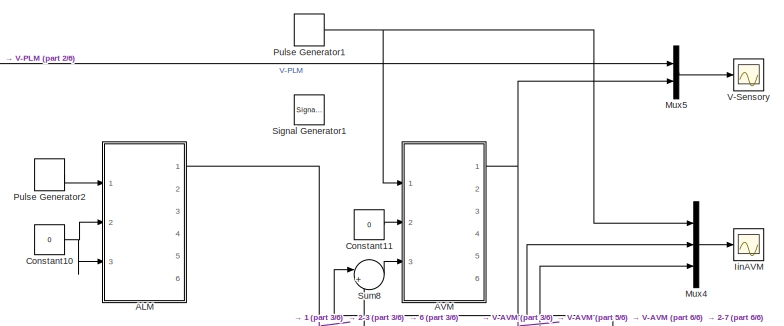
[diagram: root canvas - part 1/6, top center region]
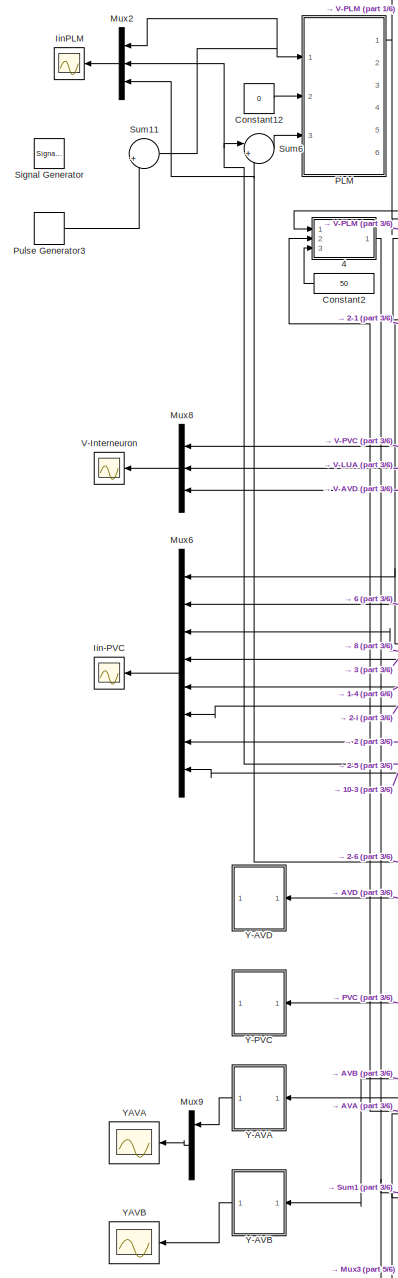
[diagram: root canvas - part 2/6, middle left region]
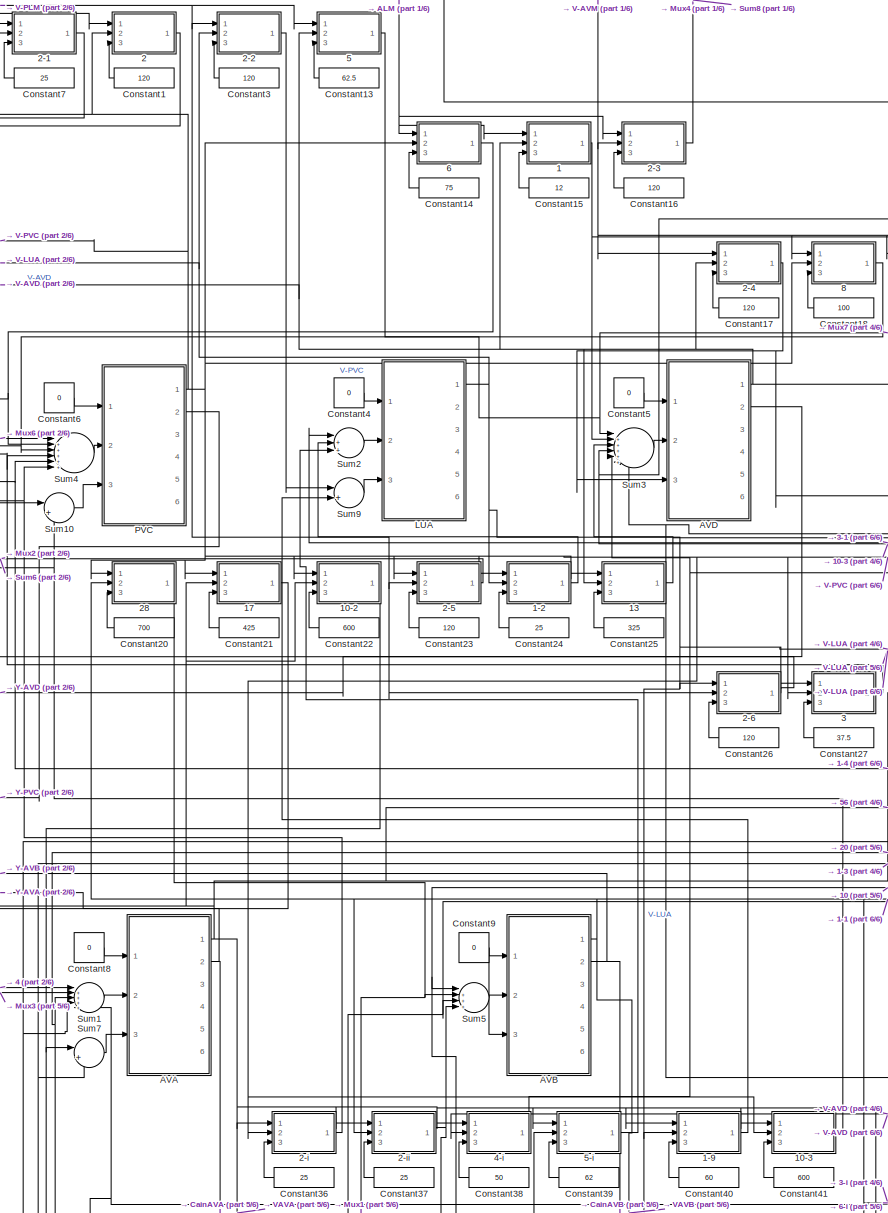
[diagram: root canvas - part 3/6, central region]
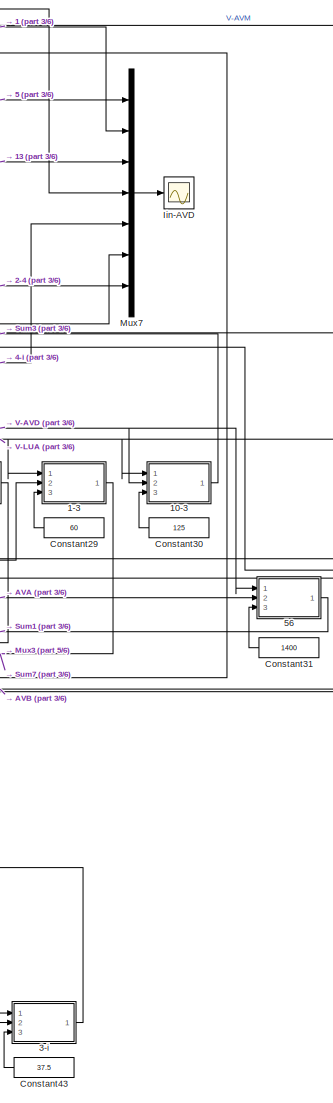
[diagram: root canvas - part 4/6, middle right region]
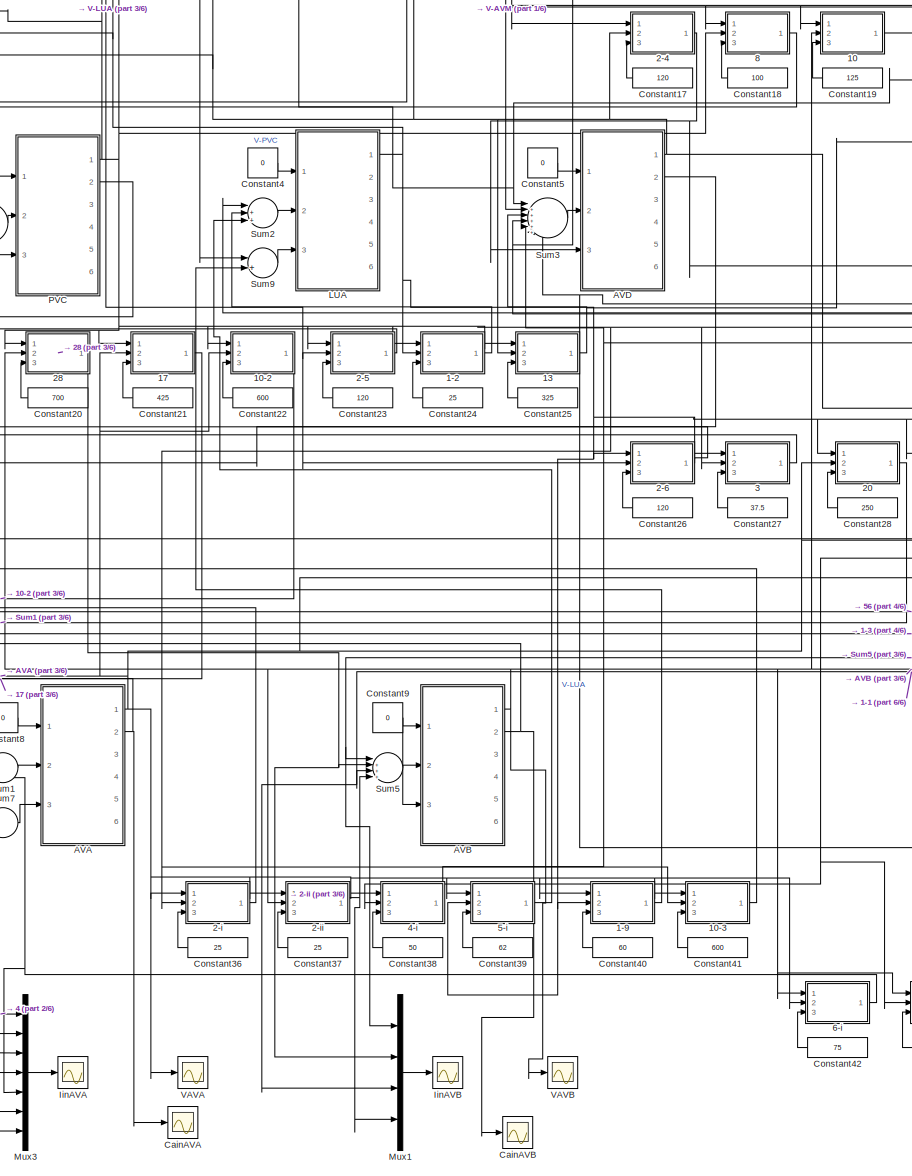
[diagram: root canvas - part 5/6, central region]
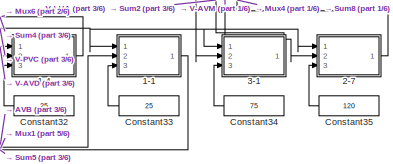
[diagram: root canvas - part 6/6, bottom right region]
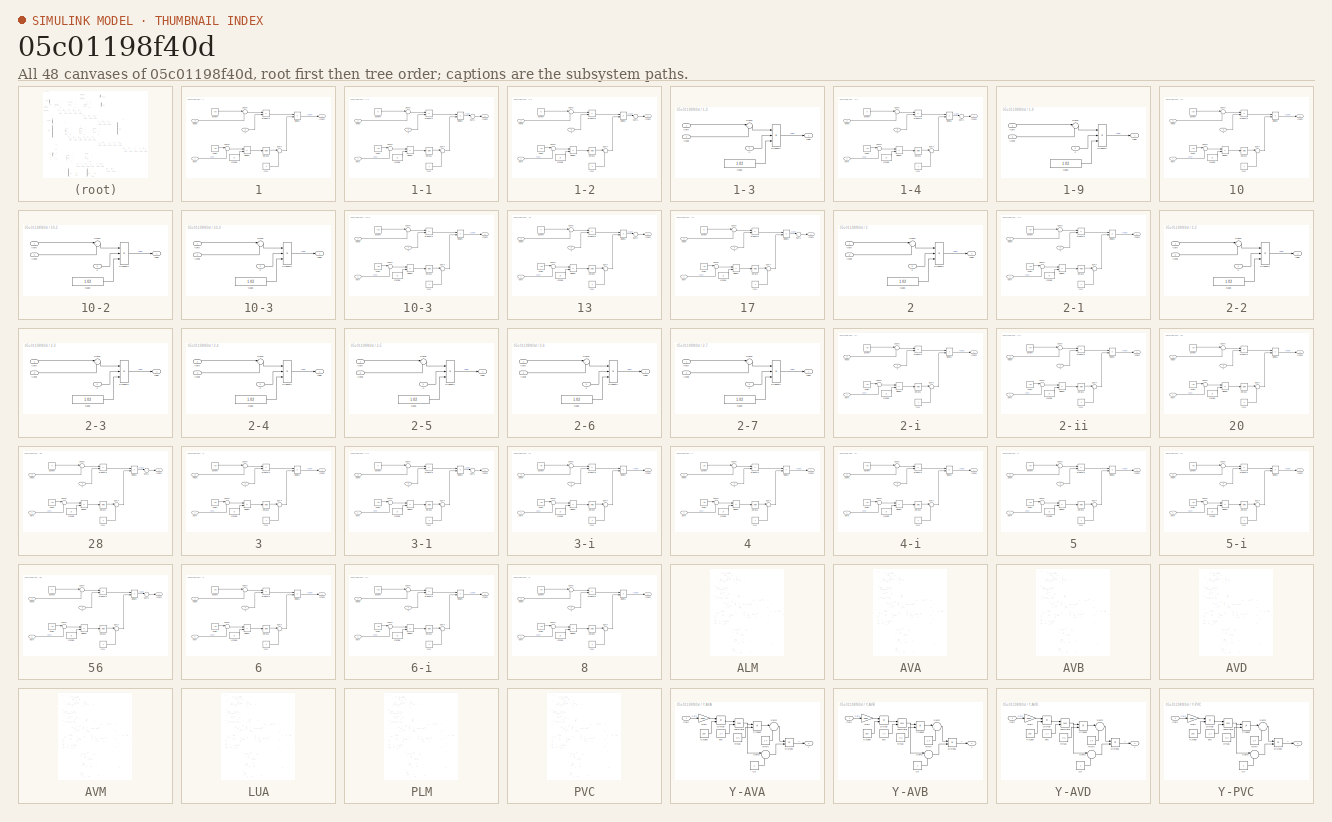
[diagram: thumbnail index - all 48 canvases of the model, root first then tree order]
MODEL slx_05c01198f40d
KIND model
CONFIG AbsTol = auto
CONFIG EnableMultiTasking = on
CONFIG FixedStep = auto
CONFIG MaxStep = auto
CONFIG MinStep = auto
CONFIG RelTol = 1e-3
CONFIG SampleTimeConstraint = Unconstrained
CONFIG Solver = VariableStepAuto
CONFIG SolverName = VariableStepAuto
CONFIG StartTime = 0.0
CONFIG StopTime = 30
BLOCK [SubSystem] 1
  Ports = [3, 1]
  RequestExecContextInheritance = off
  Variant = off
BLOCK [SubSystem] 1-1
  Ports = [3, 1]
  RequestExecContextInheritance = off
  Variant = off
BLOCK [Product] 1-1/Divide1
  InputSameDT = off
  Inputs = */
  OutDataTypeStr = Inherit: Inherit via internal rule
  Ports = [2, 1]
  RndMeth = Floor
  SaturateOnIntegerOverflow = off
BLOCK [Product] 1-1/Divide2
  InputSameDT = off
  Inputs = */
  OutDataTypeStr = Inherit: Inherit via internal rule
  Ports = [2, 1]
  RndMeth = Floor
  SaturateOnIntegerOverflow = off
BLOCK [Constant] 1-1/Echem
  Value = 0
BLOCK [Outport] 1-1/Ichem
  IconDisplay = Port number
BLOCK [Product] 1-1/Product2
  InputSameDT = off
  OutDataTypeStr = Inherit: Inherit via internal rule
  Ports = [2, 1]
  RndMeth = Floor
  SaturateOnIntegerOverflow = off
BLOCK [Sum] 1-1/Sum1
  IconShape = round
  InputSameDT = off
  Inputs = |++
  OutDataTypeStr = Inherit: Inherit via internal rule
  Ports = [2, 1]
  SaturateOnIntegerOverflow = off
BLOCK [Sum] 1-1/Sum6
  IconShape = round
  InputSameDT = off
  Inputs = |+-
  OutDataTypeStr = Inherit: Inherit via internal rule
  Ports = [2, 1]
  SaturateOnIntegerOverflow = off
BLOCK [Sum] 1-1/Sum7
  IconShape = round
  InputSameDT = off
  Inputs = |++
  OutDataTypeStr = Inherit: Inherit via internal rule
  Ports = [2, 1]
  SaturateOnIntegerOverflow = off
BLOCK [Sum] 1-1/Sum8
  IconShape = round
  InputSameDT = off
  Inputs = |+-
  OutDataTypeStr = Inherit: Inherit via internal rule
  Ports = [2, 1]
  SaturateOnIntegerOverflow = off
BLOCK [Inport] 1-1/Vpost
  IconDisplay = Port number
  Port = 2
BLOCK [Inport] 1-1/Vpre
  IconDisplay = Port number
BLOCK [Constant] 1-1/Vrange
  Value = 3
BLOCK [Constant] 1-1/Vshift
  Value = -30
BLOCK [Math] 1-1/betaK1
  Ports = [1, 1]
BLOCK [Constant] 1-1/c111
BLOCK [Inport] 1-1/n
  IconDisplay = Port number
  Port = 3
BLOCK [SubSystem] 1-2
  Ports = [3, 1]
  RequestExecContextInheritance = off
  Variant = off
BLOCK [Product] 1-2/Divide1
  InputSameDT = off
  Inputs = */
  OutDataTypeStr = Inherit: Inherit via internal rule
  Ports = [2, 1]
  RndMeth = Floor
  SaturateOnIntegerOverflow = off
BLOCK [Product] 1-2/Divide2
  InputSameDT = off
  Inputs = */
  OutDataTypeStr = Inherit: Inherit via internal rule
  Ports = [2, 1]
  RndMeth = Floor
  SaturateOnIntegerOverflow = off
BLOCK [Constant] 1-2/Echem
  Value = 0
BLOCK [Outport] 1-2/Ichem
  IconDisplay = Port number
BLOCK [Product] 1-2/Product2
  InputSameDT = off
  OutDataTypeStr = Inherit: Inherit via internal rule
  Ports = [2, 1]
  RndMeth = Floor
  SaturateOnIntegerOverflow = off
BLOCK [Sum] 1-2/Sum1
  IconShape = round
  InputSameDT = off
  Inputs = |++
  OutDataTypeStr = Inherit: Inherit via internal rule
  Ports = [2, 1]
  SaturateOnIntegerOverflow = off
BLOCK [Sum] 1-2/Sum6
  IconShape = round
  InputSameDT = off
  Inputs = |+-
  OutDataTypeStr = Inherit: Inherit via internal rule
  Ports = [2, 1]
  SaturateOnIntegerOverflow = off
BLOCK [Sum] 1-2/Sum7
  IconShape = round
  InputSameDT = off
  Inputs = |++
  OutDataTypeStr = Inherit: Inherit via internal rule
  Ports = [2, 1]
  SaturateOnIntegerOverflow = off
BLOCK [Sum] 1-2/Sum8
  IconShape = round
  InputSameDT = off
  Inputs = |+-
  OutDataTypeStr = Inherit: Inherit via internal rule
  Ports = [2, 1]
  SaturateOnIntegerOverflow = off
BLOCK [Inport] 1-2/Vpost
  IconDisplay = Port number
  Port = 2
BLOCK [Inport] 1-2/Vpre
  IconDisplay = Port number
BLOCK [Constant] 1-2/Vrange
  Value = 3
BLOCK [Constant] 1-2/Vshift
  Value = -30
BLOCK [Math] 1-2/betaK1
  Ports = [1, 1]
BLOCK [Constant] 1-2/c111
BLOCK [Inport] 1-2/n
  IconDisplay = Port number
  Port = 3
BLOCK [SubSystem] 1-3 
  Ports = [3, 1]
  RequestExecContextInheritance = off
  Variant = off
BLOCK [Constant] 1-3 /Ggap
  Value = 1.02
BLOCK [Outport] 1-3 /Igap
  IconDisplay = Port number
BLOCK [Product] 1-3 /Product2
  InputSameDT = off
  Inputs = 3
  OutDataTypeStr = Inherit: Inherit via internal rule
  Ports = [3, 1]
  RndMeth = Floor
  SaturateOnIntegerOverflow = off
BLOCK [Sum] 1-3 /Sum6
  IconShape = round
  InputSameDT = off
  Inputs = |+-
  OutDataTypeStr = Inherit: Inherit via internal rule
  Ports = [2, 1]
  SaturateOnIntegerOverflow = off
BLOCK [Inport] 1-3 /Vpost
  IconDisplay = Port number
  Port = 2
BLOCK [Inport] 1-3 /Vpre
  IconDisplay = Port number
BLOCK [Inport] 1-3 /n
  IconDisplay = Port number
  Port = 3
BLOCK [SubSystem] 1-4
  Ports = [3, 1]
  RequestExecContextInheritance = off
  Variant = off
BLOCK [Product] 1-4/Divide1
  InputSameDT = off
  Inputs = */
  OutDataTypeStr = Inherit: Inherit via internal rule
  Ports = [2, 1]
  RndMeth = Floor
  SaturateOnIntegerOverflow = off
BLOCK [Product] 1-4/Divide2
  InputSameDT = off
  Inputs = */
  OutDataTypeStr = Inherit: Inherit via internal rule
  Ports = [2, 1]
  RndMeth = Floor
  SaturateOnIntegerOverflow = off
BLOCK [Constant] 1-4/Echem
  Value = 0
BLOCK [Outport] 1-4/Ichem
  IconDisplay = Port number
BLOCK [Product] 1-4/Product2
  InputSameDT = off
  OutDataTypeStr = Inherit: Inherit via internal rule
  Ports = [2, 1]
  RndMeth = Floor
  SaturateOnIntegerOverflow = off
BLOCK [Sum] 1-4/Sum1
  IconShape = round
  InputSameDT = off
  Inputs = |++
  OutDataTypeStr = Inherit: Inherit via internal rule
  Ports = [2, 1]
  SaturateOnIntegerOverflow = off
BLOCK [Sum] 1-4/Sum6
  IconShape = round
  InputSameDT = off
  Inputs = |+-
  OutDataTypeStr = Inherit: Inherit via internal rule
  Ports = [2, 1]
  SaturateOnIntegerOverflow = off
BLOCK [Sum] 1-4/Sum7
  IconShape = round
  InputSameDT = off
  Inputs = |++
  OutDataTypeStr = Inherit: Inherit via internal rule
  Ports = [2, 1]
  SaturateOnIntegerOverflow = off
BLOCK [Sum] 1-4/Sum8
  IconShape = round
  InputSameDT = off
  Inputs = |+-
  OutDataTypeStr = Inherit: Inherit via internal rule
  Ports = [2, 1]
  SaturateOnIntegerOverflow = off
BLOCK [Inport] 1-4/Vpost
  IconDisplay = Port number
  Port = 2
BLOCK [Inport] 1-4/Vpre
  IconDisplay = Port number
BLOCK [Constant] 1-4/Vrange
  Value = 3
BLOCK [Constant] 1-4/Vshift
  Value = -30
BLOCK [Math] 1-4/betaK1
  Ports = [1, 1]
BLOCK [Constant] 1-4/c111
BLOCK [Inport] 1-4/n
  IconDisplay = Port number
  Port = 3
BLOCK [SubSystem] 1-9
  Ports = [3, 1]
  RequestExecContextInheritance = off
  Variant = off
BLOCK [Constant] 1-9/Ggap
  Value = 1.02
BLOCK [Outport] 1-9/Igap
  IconDisplay = Port number
BLOCK [Product] 1-9/Product2
  InputSameDT = off
  Inputs = 3
  OutDataTypeStr = Inherit: Inherit via internal rule
  Ports = [3, 1]
  RndMeth = Floor
  SaturateOnIntegerOverflow = off
BLOCK [Sum] 1-9/Sum6
  IconShape = round
  InputSameDT = off
  Inputs = |+-
  OutDataTypeStr = Inherit: Inherit via internal rule
  Ports = [2, 1]
  SaturateOnIntegerOverflow = off
BLOCK [Inport] 1-9/Vpost
  IconDisplay = Port number
  Port = 2
BLOCK [Inport] 1-9/Vpre
  IconDisplay = Port number
BLOCK [Inport] 1-9/n
  IconDisplay = Port number
  Port = 3
BLOCK [Product] 1/Divide1
  InputSameDT = off
  Inputs = */
  OutDataTypeStr = Inherit: Inherit via internal rule
  Ports = [2, 1]
  RndMeth = Floor
  SaturateOnIntegerOverflow = off
BLOCK [Product] 1/Divide2
  InputSameDT = off
  Inputs = */
  OutDataTypeStr = Inherit: Inherit via internal rule
  Ports = [2, 1]
  RndMeth = Floor
  SaturateOnIntegerOverflow = off
BLOCK [Constant] 1/Echem
  Value = -90
BLOCK [Outport] 1/Ichem
  IconDisplay = Port number
BLOCK [Product] 1/Product2
  InputSameDT = off
  OutDataTypeStr = Inherit: Inherit via internal rule
  Ports = [2, 1]
  RndMeth = Floor
  SaturateOnIntegerOverflow = off
BLOCK [Sum] 1/Sum6
  IconShape = round
  InputSameDT = off
  Inputs = |+-
  OutDataTypeStr = Inherit: Inherit via internal rule
  Ports = [2, 1]
  SaturateOnIntegerOverflow = off
BLOCK [Sum] 1/Sum7
  IconShape = round
  InputSameDT = off
  Inputs = |++
  OutDataTypeStr = Inherit: Inherit via internal rule
  Ports = [2, 1]
  SaturateOnIntegerOverflow = off
BLOCK [Sum] 1/Sum8
  IconShape = round
  InputSameDT = off
  Inputs = |+-
  OutDataTypeStr = Inherit: Inherit via internal rule
  Ports = [2, 1]
  SaturateOnIntegerOverflow = off
BLOCK [Inport] 1/Vpost
  IconDisplay = Port number
  Port = 2
BLOCK [Inport] 1/Vpre
  IconDisplay = Port number
BLOCK [Constant] 1/Vrange
  Value = 3
BLOCK [Constant] 1/Vshift
  Value = -30
BLOCK [Math] 1/betaK1
  Ports = [1, 1]
BLOCK [Constant] 1/c111
BLOCK [Inport] 1/n
  IconDisplay = Port number
  Port = 3
BLOCK [SubSystem] 10
  Ports = [3, 1]
  RequestExecContextInheritance = off
  Variant = off
BLOCK [SubSystem] 10-2
  Ports = [3, 1]
  RequestExecContextInheritance = off
  Variant = off
BLOCK [Constant] 10-2/Ggap
  Value = 1.02
BLOCK [Outport] 10-2/Igap
  IconDisplay = Port number
BLOCK [Product] 10-2/Product2
  InputSameDT = off
  Inputs = 3
  OutDataTypeStr = Inherit: Inherit via internal rule
  Ports = [3, 1]
  RndMeth = Floor
  SaturateOnIntegerOverflow = off
BLOCK [Sum] 10-2/Sum6
  IconShape = round
  InputSameDT = off
  Inputs = |+-
  OutDataTypeStr = Inherit: Inherit via internal rule
  Ports = [2, 1]
  SaturateOnIntegerOverflow = off
BLOCK [Inport] 10-2/Vpost
  IconDisplay = Port number
  Port = 2
BLOCK [Inport] 10-2/Vpre
  IconDisplay = Port number
BLOCK [Inport] 10-2/n
  IconDisplay = Port number
  Port = 3
BLOCK [SubSystem] 10-3
  Ports = [3, 1]
  RequestExecContextInheritance = off
  Variant = off
BLOCK [SubSystem] 10-3 
  Ports = [3, 1]
  RequestExecContextInheritance = off
  Variant = off
BLOCK [Product] 10-3 /Divide1
  InputSameDT = off
  Inputs = */
  OutDataTypeStr = Inherit: Inherit via internal rule
  Ports = [2, 1]
  RndMeth = Floor
  SaturateOnIntegerOverflow = off
BLOCK [Product] 10-3 /Divide2
  InputSameDT = off
  Inputs = */
  OutDataTypeStr = Inherit: Inherit via internal rule
  Ports = [2, 1]
  RndMeth = Floor
  SaturateOnIntegerOverflow = off
BLOCK [Constant] 10-3 /Echem
  Value = -90
BLOCK [Outport] 10-3 /Ichem
  IconDisplay = Port number
BLOCK [Product] 10-3 /Product2
  InputSameDT = off
  OutDataTypeStr = Inherit: Inherit via internal rule
  Ports = [2, 1]
  RndMeth = Floor
  SaturateOnIntegerOverflow = off
BLOCK [Sum] 10-3 /Sum6
  IconShape = round
  InputSameDT = off
  Inputs = |+-
  OutDataTypeStr = Inherit: Inherit via internal rule
  Ports = [2, 1]
  SaturateOnIntegerOverflow = off
BLOCK [Sum] 10-3 /Sum7
  IconShape = round
  InputSameDT = off
  Inputs = |++
  OutDataTypeStr = Inherit: Inherit via internal rule
  Ports = [2, 1]
  SaturateOnIntegerOverflow = off
BLOCK [Sum] 10-3 /Sum8
  IconShape = round
  InputSameDT = off
  Inputs = |+-
  OutDataTypeStr = Inherit: Inherit via internal rule
  Ports = [2, 1]
  SaturateOnIntegerOverflow = off
BLOCK [Inport] 10-3 /Vpost
  IconDisplay = Port number
  Port = 2
BLOCK [Inport] 10-3 /Vpre
  IconDisplay = Port number
BLOCK [Constant] 10-3 /Vrange
  Value = 3
BLOCK [Constant] 10-3 /Vshift
  Value = -30
BLOCK [Math] 10-3 /betaK1
  Ports = [1, 1]
BLOCK [Constant] 10-3 /c111
BLOCK [Inport] 10-3 /n
  IconDisplay = Port number
  Port = 3
BLOCK [Constant] 10-3/Ggap
  Value = 1.02
BLOCK [Outport] 10-3/Igap
  IconDisplay = Port number
BLOCK [Product] 10-3/Product2
  InputSameDT = off
  Inputs = 3
  OutDataTypeStr = Inherit: Inherit via internal rule
  Ports = [3, 1]
  RndMeth = Floor
  SaturateOnIntegerOverflow = off
BLOCK [Sum] 10-3/Sum6
  IconShape = round
  InputSameDT = off
  Inputs = |+-
  OutDataTypeStr = Inherit: Inherit via internal rule
  Ports = [2, 1]
  SaturateOnIntegerOverflow = off
BLOCK [Inport] 10-3/Vpost
  IconDisplay = Port number
  Port = 2
BLOCK [Inport] 10-3/Vpre
  IconDisplay = Port number
BLOCK [Inport] 10-3/n
  IconDisplay = Port number
  Port = 3
BLOCK [Product] 10/Divide1
  InputSameDT = off
  Inputs = */
  OutDataTypeStr = Inherit: Inherit via internal rule
  Ports = [2, 1]
  RndMeth = Floor
  SaturateOnIntegerOverflow = off
BLOCK [Product] 10/Divide2
  InputSameDT = off
  Inputs = */
  OutDataTypeStr = Inherit: Inherit via internal rule
  Ports = [2, 1]
  RndMeth = Floor
  SaturateOnIntegerOverflow = off
BLOCK [Constant] 10/Echem
  Value = -90
BLOCK [Outport] 10/Ichem
  IconDisplay = Port number
BLOCK [Product] 10/Product2
  InputSameDT = off
  OutDataTypeStr = Inherit: Inherit via internal rule
  Ports = [2, 1]
  RndMeth = Floor
  SaturateOnIntegerOverflow = off
BLOCK [Sum] 10/Sum6
  IconShape = round
  InputSameDT = off
  Inputs = |+-
  OutDataTypeStr = Inherit: Inherit via internal rule
  Ports = [2, 1]
  SaturateOnIntegerOverflow = off
BLOCK [Sum] 10/Sum7
  IconShape = round
  InputSameDT = off
  Inputs = |++
  OutDataTypeStr = Inherit: Inherit via internal rule
  Ports = [2, 1]
  SaturateOnIntegerOverflow = off
BLOCK [Sum] 10/Sum8
  IconShape = round
  InputSameDT = off
  Inputs = |+-
  OutDataTypeStr = Inherit: Inherit via internal rule
  Ports = [2, 1]
  SaturateOnIntegerOverflow = off
BLOCK [Inport] 10/Vpost
  IconDisplay = Port number
  Port = 2
BLOCK [Inport] 10/Vpre
  IconDisplay = Port number
BLOCK [Constant] 10/Vrange
  Value = 3
BLOCK [Constant] 10/Vshift
  Value = -30
BLOCK [Math] 10/betaK1
  Ports = [1, 1]
BLOCK [Constant] 10/c111
BLOCK [Inport] 10/n
  IconDisplay = Port number
  Port = 3
BLOCK [SubSystem] 13
  Ports = [3, 1]
  RequestExecContextInheritance = off
  Variant = off
BLOCK [Product] 13/Divide1
  InputSameDT = off
  Inputs = */
  OutDataTypeStr = Inherit: Inherit via internal rule
  Ports = [2, 1]
  RndMeth = Floor
  SaturateOnIntegerOverflow = off
BLOCK [Product] 13/Divide2
  InputSameDT = off
  Inputs = */
  OutDataTypeStr = Inherit: Inherit via internal rule
  Ports = [2, 1]
  RndMeth = Floor
  SaturateOnIntegerOverflow = off
BLOCK [Constant] 13/Echem
  Value = 0
BLOCK [Outport] 13/Ichem
  IconDisplay = Port number
BLOCK [Product] 13/Product2
  InputSameDT = off
  OutDataTypeStr = Inherit: Inherit via internal rule
  Ports = [2, 1]
  RndMeth = Floor
  SaturateOnIntegerOverflow = off
BLOCK [Sum] 13/Sum1
  IconShape = round
  InputSameDT = off
  Inputs = |++
  OutDataTypeStr = Inherit: Inherit via internal rule
  Ports = [2, 1]
  SaturateOnIntegerOverflow = off
BLOCK [Sum] 13/Sum6
  IconShape = round
  InputSameDT = off
  Inputs = |+-
  OutDataTypeStr = Inherit: Inherit via internal rule
  Ports = [2, 1]
  SaturateOnIntegerOverflow = off
BLOCK [Sum] 13/Sum7
  IconShape = round
  InputSameDT = off
  Inputs = |++
  OutDataTypeStr = Inherit: Inherit via internal rule
  Ports = [2, 1]
  SaturateOnIntegerOverflow = off
BLOCK [Sum] 13/Sum8
  IconShape = round
  InputSameDT = off
  Inputs = |+-
  OutDataTypeStr = Inherit: Inherit via internal rule
  Ports = [2, 1]
  SaturateOnIntegerOverflow = off
BLOCK [Inport] 13/Vpost
  IconDisplay = Port number
  Port = 2
BLOCK [Inport] 13/Vpre
  IconDisplay = Port number
BLOCK [Constant] 13/Vrange
  Value = 3
BLOCK [Constant] 13/Vshift
  Value = -30
BLOCK [Math] 13/betaK1
  Ports = [1, 1]
BLOCK [Constant] 13/c111
BLOCK [Inport] 13/n
  IconDisplay = Port number
  Port = 3
BLOCK [SubSystem] 17
  Ports = [3, 1]
  RequestExecContextInheritance = off
  Variant = off
BLOCK [Product] 17/Divide1
  InputSameDT = off
  Inputs = */
  OutDataTypeStr = Inherit: Inherit via internal rule
  Ports = [2, 1]
  RndMeth = Floor
  SaturateOnIntegerOverflow = off
BLOCK [Product] 17/Divide2
  InputSameDT = off
  Inputs = */
  OutDataTypeStr = Inherit: Inherit via internal rule
  Ports = [2, 1]
  RndMeth = Floor
  SaturateOnIntegerOverflow = off
BLOCK [Constant] 17/Echem
  Value = 0
BLOCK [Outport] 17/Ichem
  IconDisplay = Port number
BLOCK [Product] 17/Product2
  InputSameDT = off
  OutDataTypeStr = Inherit: Inherit via internal rule
  Ports = [2, 1]
  RndMeth = Floor
  SaturateOnIntegerOverflow = off
BLOCK [Sum] 17/Sum1
  IconShape = round
  InputSameDT = off
  Inputs = |++
  OutDataTypeStr = Inherit: Inherit via internal rule
  Ports = [2, 1]
  SaturateOnIntegerOverflow = off
BLOCK [Sum] 17/Sum6
  IconShape = round
  InputSameDT = off
  Inputs = |+-
  OutDataTypeStr = Inherit: Inherit via internal rule
  Ports = [2, 1]
  SaturateOnIntegerOverflow = off
BLOCK [Sum] 17/Sum7
  IconShape = round
  InputSameDT = off
  Inputs = |++
  OutDataTypeStr = Inherit: Inherit via internal rule
  Ports = [2, 1]
  SaturateOnIntegerOverflow = off
BLOCK [Sum] 17/Sum8
  IconShape = round
  InputSameDT = off
  Inputs = |+-
  OutDataTypeStr = Inherit: Inherit via internal rule
  Ports = [2, 1]
  SaturateOnIntegerOverflow = off
BLOCK [Inport] 17/Vpost
  IconDisplay = Port number
  Port = 2
BLOCK [Inport] 17/Vpre
  IconDisplay = Port number
BLOCK [Constant] 17/Vrange
  Value = 3
BLOCK [Constant] 17/Vshift
  Value = -30
BLOCK [Math] 17/betaK1
  Ports = [1, 1]
BLOCK [Constant] 17/c111
BLOCK [Inport] 17/n
  IconDisplay = Port number
  Port = 3
BLOCK [SubSystem] 2
  Ports = [3, 1]
  RequestExecContextInheritance = off
  Variant = off
BLOCK [SubSystem] 2-1
  Ports = [3, 1]
  RequestExecContextInheritance = off
  Variant = off
BLOCK [Product] 2-1/Divide1
  InputSameDT = off
  Inputs = */
  OutDataTypeStr = Inherit: Inherit via internal rule
  Ports = [2, 1]
  RndMeth = Floor
  SaturateOnIntegerOverflow = off
BLOCK [Product] 2-1/Divide2
  InputSameDT = off
  Inputs = */
  OutDataTypeStr = Inherit: Inherit via internal rule
  Ports = [2, 1]
  RndMeth = Floor
  SaturateOnIntegerOverflow = off
BLOCK [Constant] 2-1/Echem
  Value = -90
BLOCK [Outport] 2-1/Ichem
  IconDisplay = Port number
BLOCK [Product] 2-1/Product2
  InputSameDT = off
  OutDataTypeStr = Inherit: Inherit via internal rule
  Ports = [2, 1]
  RndMeth = Floor
  SaturateOnIntegerOverflow = off
BLOCK [Sum] 2-1/Sum6
  IconShape = round
  InputSameDT = off
  Inputs = |+-
  OutDataTypeStr = Inherit: Inherit via internal rule
  Ports = [2, 1]
  SaturateOnIntegerOverflow = off
BLOCK [Sum] 2-1/Sum7
  IconShape = round
  InputSameDT = off
  Inputs = |++
  OutDataTypeStr = Inherit: Inherit via internal rule
  Ports = [2, 1]
  SaturateOnIntegerOverflow = off
BLOCK [Sum] 2-1/Sum8
  IconShape = round
  InputSameDT = off
  Inputs = |+-
  OutDataTypeStr = Inherit: Inherit via internal rule
  Ports = [2, 1]
  SaturateOnIntegerOverflow = off
BLOCK [Inport] 2-1/Vpost
  IconDisplay = Port number
  Port = 2
BLOCK [Inport] 2-1/Vpre
  IconDisplay = Port number
BLOCK [Constant] 2-1/Vrange
  Value = 3
BLOCK [Constant] 2-1/Vshift
  Value = -30
BLOCK [Math] 2-1/betaK1
  Ports = [1, 1]
BLOCK [Constant] 2-1/c111
BLOCK [Inport] 2-1/n
  IconDisplay = Port number
  Port = 3
BLOCK [SubSystem] 2-2
  Ports = [3, 1]
  RequestExecContextInheritance = off
  Variant = off
BLOCK [Constant] 2-2/Ggap
  Value = 1.02
BLOCK [Outport] 2-2/Igap
  IconDisplay = Port number
BLOCK [Product] 2-2/Product2
  InputSameDT = off
  Inputs = 3
  OutDataTypeStr = Inherit: Inherit via internal rule
  Ports = [3, 1]
  RndMeth = Floor
  SaturateOnIntegerOverflow = off
BLOCK [Sum] 2-2/Sum6
  IconShape = round
  InputSameDT = off
  Inputs = |+-
  OutDataTypeStr = Inherit: Inherit via internal rule
  Ports = [2, 1]
  SaturateOnIntegerOverflow = off
BLOCK [Inport] 2-2/Vpost
  IconDisplay = Port number
  Port = 2
BLOCK [Inport] 2-2/Vpre
  IconDisplay = Port number
BLOCK [Inport] 2-2/n
  IconDisplay = Port number
  Port = 3
BLOCK [SubSystem] 2-3
  Ports = [3, 1]
  RequestExecContextInheritance = off
  Variant = off
BLOCK [Constant] 2-3/Ggap
  Value = 1.02
BLOCK [Outport] 2-3/Igap
  IconDisplay = Port number
BLOCK [Product] 2-3/Product2
  InputSameDT = off
  Inputs = 3
  OutDataTypeStr = Inherit: Inherit via internal rule
  Ports = [3, 1]
  RndMeth = Floor
  SaturateOnIntegerOverflow = off
BLOCK [Sum] 2-3/Sum6
  IconShape = round
  InputSameDT = off
  Inputs = |+-
  OutDataTypeStr = Inherit: Inherit via internal rule
  Ports = [2, 1]
  SaturateOnIntegerOverflow = off
BLOCK [Inport] 2-3/Vpost
  IconDisplay = Port number
  Port = 2
BLOCK [Inport] 2-3/Vpre
  IconDisplay = Port number
BLOCK [Inport] 2-3/n
  IconDisplay = Port number
  Port = 3
BLOCK [SubSystem] 2-4
  Ports = [3, 1]
  RequestExecContextInheritance = off
  Variant = off
BLOCK [Constant] 2-4/Ggap
  Value = 1.02
BLOCK [Outport] 2-4/Igap
  IconDisplay = Port number
BLOCK [Product] 2-4/Product2
  InputSameDT = off
  Inputs = 3
  OutDataTypeStr = Inherit: Inherit via internal rule
  Ports = [3, 1]
  RndMeth = Floor
  SaturateOnIntegerOverflow = off
BLOCK [Sum] 2-4/Sum6
  IconShape = round
  InputSameDT = off
  Inputs = |+-
  OutDataTypeStr = Inherit: Inherit via internal rule
  Ports = [2, 1]
  SaturateOnIntegerOverflow = off
BLOCK [Inport] 2-4/Vpost
  IconDisplay = Port number
  Port = 2
BLOCK [Inport] 2-4/Vpre
  IconDisplay = Port number
BLOCK [Inport] 2-4/n
  IconDisplay = Port number
  Port = 3
BLOCK [SubSystem] 2-5
  Ports = [3, 1]
  RequestExecContextInheritance = off
  Variant = off
BLOCK [Constant] 2-5/Ggap
  Value = 1.02
BLOCK [Outport] 2-5/Igap
  IconDisplay = Port number
BLOCK [Product] 2-5/Product2
  InputSameDT = off
  Inputs = 3
  OutDataTypeStr = Inherit: Inherit via internal rule
  Ports = [3, 1]
  RndMeth = Floor
  SaturateOnIntegerOverflow = off
BLOCK [Sum] 2-5/Sum6
  IconShape = round
  InputSameDT = off
  Inputs = |+-
  OutDataTypeStr = Inherit: Inherit via internal rule
  Ports = [2, 1]
  SaturateOnIntegerOverflow = off
BLOCK [Inport] 2-5/Vpost
  IconDisplay = Port number
  Port = 2
BLOCK [Inport] 2-5/Vpre
  IconDisplay = Port number
BLOCK [Inport] 2-5/n
  IconDisplay = Port number
  Port = 3
BLOCK [SubSystem] 2-6
  Ports = [3, 1]
  RequestExecContextInheritance = off
  Variant = off
BLOCK [Constant] 2-6/Ggap
  Value = 1.02
BLOCK [Outport] 2-6/Igap
  IconDisplay = Port number
BLOCK [Product] 2-6/Product2
  InputSameDT = off
  Inputs = 3
  OutDataTypeStr = Inherit: Inherit via internal rule
  Ports = [3, 1]
  RndMeth = Floor
  SaturateOnIntegerOverflow = off
BLOCK [Sum] 2-6/Sum6
  IconShape = round
  InputSameDT = off
  Inputs = |+-
  OutDataTypeStr = Inherit: Inherit via internal rule
  Ports = [2, 1]
  SaturateOnIntegerOverflow = off
BLOCK [Inport] 2-6/Vpost
  IconDisplay = Port number
  Port = 2
BLOCK [Inport] 2-6/Vpre
  IconDisplay = Port number
BLOCK [Inport] 2-6/n
  IconDisplay = Port number
  Port = 3
BLOCK [SubSystem] 2-7
  Ports = [3, 1]
  RequestExecContextInheritance = off
  Variant = off
BLOCK [Constant] 2-7/Ggap
  Value = 1.02
BLOCK [Outport] 2-7/Igap
  IconDisplay = Port number
BLOCK [Product] 2-7/Product2
  InputSameDT = off
  Inputs = 3
  OutDataTypeStr = Inherit: Inherit via internal rule
  Ports = [3, 1]
  RndMeth = Floor
  SaturateOnIntegerOverflow = off
BLOCK [Sum] 2-7/Sum6
  IconShape = round
  InputSameDT = off
  Inputs = |+-
  OutDataTypeStr = Inherit: Inherit via internal rule
  Ports = [2, 1]
  SaturateOnIntegerOverflow = off
BLOCK [Inport] 2-7/Vpost
  IconDisplay = Port number
  Port = 2
BLOCK [Inport] 2-7/Vpre
  IconDisplay = Port number
BLOCK [Inport] 2-7/n
  IconDisplay = Port number
  Port = 3
BLOCK [SubSystem] 2-i
  Ports = [3, 1]
  RequestExecContextInheritance = off
  Variant = off
BLOCK [Product] 2-i/Divide1
  InputSameDT = off
  Inputs = */
  OutDataTypeStr = Inherit: Inherit via internal rule
  Ports = [2, 1]
  RndMeth = Floor
  SaturateOnIntegerOverflow = off
BLOCK [Product] 2-i/Divide2
  InputSameDT = off
  Inputs = */
  OutDataTypeStr = Inherit: Inherit via internal rule
  Ports = [2, 1]
  RndMeth = Floor
  SaturateOnIntegerOverflow = off
BLOCK [Constant] 2-i/Echem
  Value = -90
BLOCK [Outport] 2-i/Ichem
  IconDisplay = Port number
BLOCK [Product] 2-i/Product2
  InputSameDT = off
  OutDataTypeStr = Inherit: Inherit via internal rule
  Ports = [2, 1]
  RndMeth = Floor
  SaturateOnIntegerOverflow = off
BLOCK [Sum] 2-i/Sum6
  IconShape = round
  InputSameDT = off
  Inputs = |+-
  OutDataTypeStr = Inherit: Inherit via internal rule
  Ports = [2, 1]
  SaturateOnIntegerOverflow = off
BLOCK [Sum] 2-i/Sum7
  IconShape = round
  InputSameDT = off
  Inputs = |++
  OutDataTypeStr = Inherit: Inherit via internal rule
  Ports = [2, 1]
  SaturateOnIntegerOverflow = off
BLOCK [Sum] 2-i/Sum8
  IconShape = round
  InputSameDT = off
  Inputs = |+-
  OutDataTypeStr = Inherit: Inherit via internal rule
  Ports = [2, 1]
  SaturateOnIntegerOverflow = off
BLOCK [Inport] 2-i/Vpost
  IconDisplay = Port number
  Port = 2
BLOCK [Inport] 2-i/Vpre
  IconDisplay = Port number
BLOCK [Constant] 2-i/Vrange
  Value = 3
BLOCK [Constant] 2-i/Vshift
  Value = -30
BLOCK [Math] 2-i/betaK1
  Ports = [1, 1]
BLOCK [Constant] 2-i/c111
BLOCK [Inport] 2-i/n
  IconDisplay = Port number
  Port = 3
BLOCK [SubSystem] 2-ii
  Ports = [3, 1]
  RequestExecContextInheritance = off
  Variant = off
BLOCK [Product] 2-ii/Divide1
  InputSameDT = off
  Inputs = */
  OutDataTypeStr = Inherit: Inherit via internal rule
  Ports = [2, 1]
  RndMeth = Floor
  SaturateOnIntegerOverflow = off
BLOCK [Product] 2-ii/Divide2
  InputSameDT = off
  Inputs = */
  OutDataTypeStr = Inherit: Inherit via internal rule
  Ports = [2, 1]
  RndMeth = Floor
  SaturateOnIntegerOverflow = off
BLOCK [Constant] 2-ii/Echem
  Value = -90
BLOCK [Outport] 2-ii/Ichem
  IconDisplay = Port number
BLOCK [Product] 2-ii/Product2
  InputSameDT = off
  OutDataTypeStr = Inherit: Inherit via internal rule
  Ports = [2, 1]
  RndMeth = Floor
  SaturateOnIntegerOverflow = off
BLOCK [Sum] 2-ii/Sum6
  IconShape = round
  InputSameDT = off
  Inputs = |+-
  OutDataTypeStr = Inherit: Inherit via internal rule
  Ports = [2, 1]
  SaturateOnIntegerOverflow = off
BLOCK [Sum] 2-ii/Sum7
  IconShape = round
  InputSameDT = off
  Inputs = |++
  OutDataTypeStr = Inherit: Inherit via internal rule
  Ports = [2, 1]
  SaturateOnIntegerOverflow = off
BLOCK [Sum] 2-ii/Sum8
  IconShape = round
  InputSameDT = off
  Inputs = |+-
  OutDataTypeStr = Inherit: Inherit via internal rule
  Ports = [2, 1]
  SaturateOnIntegerOverflow = off
BLOCK [Inport] 2-ii/Vpost
  IconDisplay = Port number
  Port = 2
BLOCK [Inport] 2-ii/Vpre
  IconDisplay = Port number
BLOCK [Constant] 2-ii/Vrange
  Value = 3
BLOCK [Constant] 2-ii/Vshift
  Value = -30
BLOCK [Math] 2-ii/betaK1
  Ports = [1, 1]
BLOCK [Constant] 2-ii/c111
BLOCK [Inport] 2-ii/n
  IconDisplay = Port number
  Port = 3
BLOCK [Constant] 2/Ggap
  Value = 1.02
BLOCK [Outport] 2/Igap
  IconDisplay = Port number
BLOCK [Product] 2/Product2
  InputSameDT = off
  Inputs = 3
  OutDataTypeStr = Inherit: Inherit via internal rule
  Ports = [3, 1]
  RndMeth = Floor
  SaturateOnIntegerOverflow = off
BLOCK [Sum] 2/Sum6
  IconShape = round
  InputSameDT = off
  Inputs = |+-
  OutDataTypeStr = Inherit: Inherit via internal rule
  Ports = [2, 1]
  SaturateOnIntegerOverflow = off
BLOCK [Inport] 2/Vpost
  IconDisplay = Port number
  Port = 2
BLOCK [Inport] 2/Vpre
  IconDisplay = Port number
BLOCK [Inport] 2/n
  IconDisplay = Port number
  Port = 3
BLOCK [SubSystem] 20
  Ports = [3, 1]
  RequestExecContextInheritance = off
  Variant = off
BLOCK [Product] 20/Divide1
  InputSameDT = off
  Inputs = */
  OutDataTypeStr = Inherit: Inherit via internal rule
  Ports = [2, 1]
  RndMeth = Floor
  SaturateOnIntegerOverflow = off
BLOCK [Product] 20/Divide2
  InputSameDT = off
  Inputs = */
  OutDataTypeStr = Inherit: Inherit via internal rule
  Ports = [2, 1]
  RndMeth = Floor
  SaturateOnIntegerOverflow = off
BLOCK [Constant] 20/Echem
  Value = -90
BLOCK [Outport] 20/Ichem
  IconDisplay = Port number
BLOCK [Product] 20/Product2
  InputSameDT = off
  OutDataTypeStr = Inherit: Inherit via internal rule
  Ports = [2, 1]
  RndMeth = Floor
  SaturateOnIntegerOverflow = off
BLOCK [Sum] 20/Sum6
  IconShape = round
  InputSameDT = off
  Inputs = |+-
  OutDataTypeStr = Inherit: Inherit via internal rule
  Ports = [2, 1]
  SaturateOnIntegerOverflow = off
BLOCK [Sum] 20/Sum7
  IconShape = round
  InputSameDT = off
  Inputs = |++
  OutDataTypeStr = Inherit: Inherit via internal rule
  Ports = [2, 1]
  SaturateOnIntegerOverflow = off
BLOCK [Sum] 20/Sum8
  IconShape = round
  InputSameDT = off
  Inputs = |+-
  OutDataTypeStr = Inherit: Inherit via internal rule
  Ports = [2, 1]
  SaturateOnIntegerOverflow = off
BLOCK [Inport] 20/Vpost
  IconDisplay = Port number
  Port = 2
BLOCK [Inport] 20/Vpre
  IconDisplay = Port number
BLOCK [Constant] 20/Vrange
  Value = 3
BLOCK [Constant] 20/Vshift
  Value = -30
BLOCK [Math] 20/betaK1
  Ports = [1, 1]
BLOCK [Constant] 20/c111
BLOCK [Inport] 20/n
  IconDisplay = Port number
  Port = 3
BLOCK [SubSystem] 28
  Ports = [3, 1]
  RequestExecContextInheritance = off
  Variant = off
BLOCK [Product] 28/Divide1
  InputSameDT = off
  Inputs = */
  OutDataTypeStr = Inherit: Inherit via internal rule
  Ports = [2, 1]
  RndMeth = Floor
  SaturateOnIntegerOverflow = off
BLOCK [Product] 28/Divide2
  InputSameDT = off
  Inputs = */
  OutDataTypeStr = Inherit: Inherit via internal rule
  Ports = [2, 1]
  RndMeth = Floor
  SaturateOnIntegerOverflow = off
BLOCK [Constant] 28/Echem
  Value = 0
BLOCK [Outport] 28/Ichem
  IconDisplay = Port number
BLOCK [Product] 28/Product2
  InputSameDT = off
  OutDataTypeStr = Inherit: Inherit via internal rule
  Ports = [2, 1]
  RndMeth = Floor
  SaturateOnIntegerOverflow = off
BLOCK [Sum] 28/Sum1
  IconShape = round
  InputSameDT = off
  Inputs = |++
  OutDataTypeStr = Inherit: Inherit via internal rule
  Ports = [2, 1]
  SaturateOnIntegerOverflow = off
BLOCK [Sum] 28/Sum6
  IconShape = round
  InputSameDT = off
  Inputs = |+-
  OutDataTypeStr = Inherit: Inherit via internal rule
  Ports = [2, 1]
  SaturateOnIntegerOverflow = off
BLOCK [Sum] 28/Sum7
  IconShape = round
  InputSameDT = off
  Inputs = |++
  OutDataTypeStr = Inherit: Inherit via internal rule
  Ports = [2, 1]
  SaturateOnIntegerOverflow = off
BLOCK [Sum] 28/Sum8
  IconShape = round
  InputSameDT = off
  Inputs = |+-
  OutDataTypeStr = Inherit: Inherit via internal rule
  Ports = [2, 1]
  SaturateOnIntegerOverflow = off
BLOCK [Inport] 28/Vpost
  IconDisplay = Port number
  Port = 2
BLOCK [Inport] 28/Vpre
  IconDisplay = Port number
BLOCK [Constant] 28/Vrange
  Value = 3
BLOCK [Constant] 28/Vshift
  Value = -30
BLOCK [Math] 28/betaK1
  Ports = [1, 1]
BLOCK [Constant] 28/c111
BLOCK [Inport] 28/n
  IconDisplay = Port number
  Port = 3
BLOCK [SubSystem] 3
  Ports = [3, 1]
  RequestExecContextInheritance = off
  Variant = off
BLOCK [SubSystem] 3-1
  Ports = [3, 1]
  RequestExecContextInheritance = off
  Variant = off
BLOCK [Product] 3-1/Divide1
  InputSameDT = off
  Inputs = */
  OutDataTypeStr = Inherit: Inherit via internal rule
  Ports = [2, 1]
  RndMeth = Floor
  SaturateOnIntegerOverflow = off
BLOCK [Product] 3-1/Divide2
  InputSameDT = off
  Inputs = */
  OutDataTypeStr = Inherit: Inherit via internal rule
  Ports = [2, 1]
  RndMeth = Floor
  SaturateOnIntegerOverflow = off
BLOCK [Constant] 3-1/Echem
  Value = 0
BLOCK [Outport] 3-1/Ichem
  IconDisplay = Port number
BLOCK [Product] 3-1/Product2
  InputSameDT = off
  OutDataTypeStr = Inherit: Inherit via internal rule
  Ports = [2, 1]
  RndMeth = Floor
  SaturateOnIntegerOverflow = off
BLOCK [Sum] 3-1/Sum1
  IconShape = round
  InputSameDT = off
  Inputs = |++
  OutDataTypeStr = Inherit: Inherit via internal rule
  Ports = [2, 1]
  SaturateOnIntegerOverflow = off
BLOCK [Sum] 3-1/Sum6
  IconShape = round
  InputSameDT = off
  Inputs = |+-
  OutDataTypeStr = Inherit: Inherit via internal rule
  Ports = [2, 1]
  SaturateOnIntegerOverflow = off
BLOCK [Sum] 3-1/Sum7
  IconShape = round
  InputSameDT = off
  Inputs = |++
  OutDataTypeStr = Inherit: Inherit via internal rule
  Ports = [2, 1]
  SaturateOnIntegerOverflow = off
BLOCK [Sum] 3-1/Sum8
  IconShape = round
  InputSameDT = off
  Inputs = |+-
  OutDataTypeStr = Inherit: Inherit via internal rule
  Ports = [2, 1]
  SaturateOnIntegerOverflow = off
BLOCK [Inport] 3-1/Vpost
  IconDisplay = Port number
  Port = 2
BLOCK [Inport] 3-1/Vpre
  IconDisplay = Port number
BLOCK [Constant] 3-1/Vrange
  Value = 3
BLOCK [Constant] 3-1/Vshift
  Value = -30
BLOCK [Math] 3-1/betaK1
  Ports = [1, 1]
BLOCK [Constant] 3-1/c111
BLOCK [Inport] 3-1/n
  IconDisplay = Port number
  Port = 3
BLOCK [SubSystem] 3-i
  Ports = [3, 1]
  RequestExecContextInheritance = off
  Variant = off
BLOCK [Product] 3-i/Divide1
  InputSameDT = off
  Inputs = */
  OutDataTypeStr = Inherit: Inherit via internal rule
  Ports = [2, 1]
  RndMeth = Floor
  SaturateOnIntegerOverflow = off
BLOCK [Product] 3-i/Divide2
  InputSameDT = off
  Inputs = */
  OutDataTypeStr = Inherit: Inherit via internal rule
  Ports = [2, 1]
  RndMeth = Floor
  SaturateOnIntegerOverflow = off
BLOCK [Constant] 3-i/Echem
  Value = -90
BLOCK [Outport] 3-i/Ichem
  IconDisplay = Port number
BLOCK [Product] 3-i/Product2
  InputSameDT = off
  OutDataTypeStr = Inherit: Inherit via internal rule
  Ports = [2, 1]
  RndMeth = Floor
  SaturateOnIntegerOverflow = off
BLOCK [Sum] 3-i/Sum6
  IconShape = round
  InputSameDT = off
  Inputs = |+-
  OutDataTypeStr = Inherit: Inherit via internal rule
  Ports = [2, 1]
  SaturateOnIntegerOverflow = off
BLOCK [Sum] 3-i/Sum7
  IconShape = round
  InputSameDT = off
  Inputs = |++
  OutDataTypeStr = Inherit: Inherit via internal rule
  Ports = [2, 1]
  SaturateOnIntegerOverflow = off
BLOCK [Sum] 3-i/Sum8
  IconShape = round
  InputSameDT = off
  Inputs = |+-
  OutDataTypeStr = Inherit: Inherit via internal rule
  Ports = [2, 1]
  SaturateOnIntegerOverflow = off
BLOCK [Inport] 3-i/Vpost
  IconDisplay = Port number
  Port = 2
BLOCK [Inport] 3-i/Vpre
  IconDisplay = Port number
BLOCK [Constant] 3-i/Vrange
  Value = 3
BLOCK [Constant] 3-i/Vshift
  Value = -30
BLOCK [Math] 3-i/betaK1
  Ports = [1, 1]
BLOCK [Constant] 3-i/c111
BLOCK [Inport] 3-i/n
  IconDisplay = Port number
  Port = 3
BLOCK [Product] 3/Divide1
  InputSameDT = off
  Inputs = */
  OutDataTypeStr = Inherit: Inherit via internal rule
  Ports = [2, 1]
  RndMeth = Floor
  SaturateOnIntegerOverflow = off
BLOCK [Product] 3/Divide2
  InputSameDT = off
  Inputs = */
  OutDataTypeStr = Inherit: Inherit via internal rule
  Ports = [2, 1]
  RndMeth = Floor
  SaturateOnIntegerOverflow = off
BLOCK [Constant] 3/Echem
  Value = -90
BLOCK [Outport] 3/Ichem
  IconDisplay = Port number
BLOCK [Product] 3/Product2
  InputSameDT = off
  OutDataTypeStr = Inherit: Inherit via internal rule
  Ports = [2, 1]
  RndMeth = Floor
  SaturateOnIntegerOverflow = off
BLOCK [Sum] 3/Sum6
  IconShape = round
  InputSameDT = off
  Inputs = |+-
  OutDataTypeStr = Inherit: Inherit via internal rule
  Ports = [2, 1]
  SaturateOnIntegerOverflow = off
BLOCK [Sum] 3/Sum7
  IconShape = round
  InputSameDT = off
  Inputs = |++
  OutDataTypeStr = Inherit: Inherit via internal rule
  Ports = [2, 1]
  SaturateOnIntegerOverflow = off
BLOCK [Sum] 3/Sum8
  IconShape = round
  InputSameDT = off
  Inputs = |+-
  OutDataTypeStr = Inherit: Inherit via internal rule
  Ports = [2, 1]
  SaturateOnIntegerOverflow = off
BLOCK [Inport] 3/Vpost
  IconDisplay = Port number
  Port = 2
BLOCK [Inport] 3/Vpre
  IconDisplay = Port number
BLOCK [Constant] 3/Vrange
  Value = 3
BLOCK [Constant] 3/Vshift
  Value = -30
BLOCK [Math] 3/betaK1
  Ports = [1, 1]
BLOCK [Constant] 3/c111
BLOCK [Inport] 3/n
  IconDisplay = Port number
  Port = 3
BLOCK [SubSystem] 4
  Ports = [3, 1]
  RequestExecContextInheritance = off
  Variant = off
BLOCK [SubSystem] 4-i
  Ports = [3, 1]
  RequestExecContextInheritance = off
  Variant = off
BLOCK [Product] 4-i/Divide1
  InputSameDT = off
  Inputs = */
  OutDataTypeStr = Inherit: Inherit via internal rule
  Ports = [2, 1]
  RndMeth = Floor
  SaturateOnIntegerOverflow = off
BLOCK [Product] 4-i/Divide2
  InputSameDT = off
  Inputs = */
  OutDataTypeStr = Inherit: Inherit via internal rule
  Ports = [2, 1]
  RndMeth = Floor
  SaturateOnIntegerOverflow = off
BLOCK [Constant] 4-i/Echem
  Value = -90
BLOCK [Outport] 4-i/Ichem
  IconDisplay = Port number
BLOCK [Product] 4-i/Product2
  InputSameDT = off
  OutDataTypeStr = Inherit: Inherit via internal rule
  Ports = [2, 1]
  RndMeth = Floor
  SaturateOnIntegerOverflow = off
BLOCK [Sum] 4-i/Sum6
  IconShape = round
  InputSameDT = off
  Inputs = |+-
  OutDataTypeStr = Inherit: Inherit via internal rule
  Ports = [2, 1]
  SaturateOnIntegerOverflow = off
BLOCK [Sum] 4-i/Sum7
  IconShape = round
  InputSameDT = off
  Inputs = |++
  OutDataTypeStr = Inherit: Inherit via internal rule
  Ports = [2, 1]
  SaturateOnIntegerOverflow = off
BLOCK [Sum] 4-i/Sum8
  IconShape = round
  InputSameDT = off
  Inputs = |+-
  OutDataTypeStr = Inherit: Inherit via internal rule
  Ports = [2, 1]
  SaturateOnIntegerOverflow = off
BLOCK [Inport] 4-i/Vpost
  IconDisplay = Port number
  Port = 2
BLOCK [Inport] 4-i/Vpre
  IconDisplay = Port number
BLOCK [Constant] 4-i/Vrange
  Value = 3
BLOCK [Constant] 4-i/Vshift
  Value = -30
BLOCK [Math] 4-i/betaK1
  Ports = [1, 1]
BLOCK [Constant] 4-i/c111
BLOCK [Inport] 4-i/n
  IconDisplay = Port number
  Port = 3
BLOCK [Product] 4/Divide1
  InputSameDT = off
  Inputs = */
  OutDataTypeStr = Inherit: Inherit via internal rule
  Ports = [2, 1]
  RndMeth = Floor
  SaturateOnIntegerOverflow = off
BLOCK [Product] 4/Divide2
  InputSameDT = off
  Inputs = */
  OutDataTypeStr = Inherit: Inherit via internal rule
  Ports = [2, 1]
  RndMeth = Floor
  SaturateOnIntegerOverflow = off
BLOCK [Constant] 4/Echem
  Value = -90
BLOCK [Outport] 4/Ichem
  IconDisplay = Port number
BLOCK [Product] 4/Product2
  InputSameDT = off
  OutDataTypeStr = Inherit: Inherit via internal rule
  Ports = [2, 1]
  RndMeth = Floor
  SaturateOnIntegerOverflow = off
BLOCK [Sum] 4/Sum6
  IconShape = round
  InputSameDT = off
  Inputs = |+-
  OutDataTypeStr = Inherit: Inherit via internal rule
  Ports = [2, 1]
  SaturateOnIntegerOverflow = off
BLOCK [Sum] 4/Sum7
  IconShape = round
  InputSameDT = off
  Inputs = |++
  OutDataTypeStr = Inherit: Inherit via internal rule
  Ports = [2, 1]
  SaturateOnIntegerOverflow = off
BLOCK [Sum] 4/Sum8
  IconShape = round
  InputSameDT = off
  Inputs = |+-
  OutDataTypeStr = Inherit: Inherit via internal rule
  Ports = [2, 1]
  SaturateOnIntegerOverflow = off
BLOCK [Inport] 4/Vpost
  IconDisplay = Port number
  Port = 2
BLOCK [Inport] 4/Vpre
  IconDisplay = Port number
BLOCK [Constant] 4/Vrange
  Value = 3
BLOCK [Constant] 4/Vshift
  Value = -30
BLOCK [Math] 4/betaK1
  Ports = [1, 1]
BLOCK [Constant] 4/c111
BLOCK [Inport] 4/n
  IconDisplay = Port number
  Port = 3
BLOCK [SubSystem] 5
  Ports = [3, 1]
  RequestExecContextInheritance = off
  Variant = off
BLOCK [SubSystem] 5-i
  Ports = [3, 1]
  RequestExecContextInheritance = off
  Variant = off
BLOCK [Product] 5-i/Divide1
  InputSameDT = off
  Inputs = */
  OutDataTypeStr = Inherit: Inherit via internal rule
  Ports = [2, 1]
  RndMeth = Floor
  SaturateOnIntegerOverflow = off
BLOCK [Product] 5-i/Divide2
  InputSameDT = off
  Inputs = */
  OutDataTypeStr = Inherit: Inherit via internal rule
  Ports = [2, 1]
  RndMeth = Floor
  SaturateOnIntegerOverflow = off
BLOCK [Constant] 5-i/Echem
  Value = -90
BLOCK [Outport] 5-i/Ichem
  IconDisplay = Port number
BLOCK [Product] 5-i/Product2
  InputSameDT = off
  OutDataTypeStr = Inherit: Inherit via internal rule
  Ports = [2, 1]
  RndMeth = Floor
  SaturateOnIntegerOverflow = off
BLOCK [Sum] 5-i/Sum6
  IconShape = round
  InputSameDT = off
  Inputs = |+-
  OutDataTypeStr = Inherit: Inherit via internal rule
  Ports = [2, 1]
  SaturateOnIntegerOverflow = off
BLOCK [Sum] 5-i/Sum7
  IconShape = round
  InputSameDT = off
  Inputs = |++
  OutDataTypeStr = Inherit: Inherit via internal rule
  Ports = [2, 1]
  SaturateOnIntegerOverflow = off
BLOCK [Sum] 5-i/Sum8
  IconShape = round
  InputSameDT = off
  Inputs = |+-
  OutDataTypeStr = Inherit: Inherit via internal rule
  Ports = [2, 1]
  SaturateOnIntegerOverflow = off
BLOCK [Inport] 5-i/Vpost
  IconDisplay = Port number
  Port = 2
BLOCK [Inport] 5-i/Vpre
  IconDisplay = Port number
BLOCK [Constant] 5-i/Vrange
  Value = 3
BLOCK [Constant] 5-i/Vshift
  Value = -30
BLOCK [Math] 5-i/betaK1
  Ports = [1, 1]
BLOCK [Constant] 5-i/c111
BLOCK [Inport] 5-i/n
  IconDisplay = Port number
  Port = 3
BLOCK [Product] 5/Divide1
  InputSameDT = off
  Inputs = */
  OutDataTypeStr = Inherit: Inherit via internal rule
  Ports = [2, 1]
  RndMeth = Floor
  SaturateOnIntegerOverflow = off
BLOCK [Product] 5/Divide2
  InputSameDT = off
  Inputs = */
  OutDataTypeStr = Inherit: Inherit via internal rule
  Ports = [2, 1]
  RndMeth = Floor
  SaturateOnIntegerOverflow = off
BLOCK [Constant] 5/Echem
  Value = -90
BLOCK [Outport] 5/Ichem
  IconDisplay = Port number
BLOCK [Product] 5/Product2
  InputSameDT = off
  OutDataTypeStr = Inherit: Inherit via internal rule
  Ports = [2, 1]
  RndMeth = Floor
  SaturateOnIntegerOverflow = off
BLOCK [Sum] 5/Sum6
  IconShape = round
  InputSameDT = off
  Inputs = |+-
  OutDataTypeStr = Inherit: Inherit via internal rule
  Ports = [2, 1]
  SaturateOnIntegerOverflow = off
BLOCK [Sum] 5/Sum7
  IconShape = round
  InputSameDT = off
  Inputs = |++
  OutDataTypeStr = Inherit: Inherit via internal rule
  Ports = [2, 1]
  SaturateOnIntegerOverflow = off
BLOCK [Sum] 5/Sum8
  IconShape = round
  InputSameDT = off
  Inputs = |+-
  OutDataTypeStr = Inherit: Inherit via internal rule
  Ports = [2, 1]
  SaturateOnIntegerOverflow = off
BLOCK [Inport] 5/Vpost
  IconDisplay = Port number
  Port = 2
BLOCK [Inport] 5/Vpre
  IconDisplay = Port number
BLOCK [Constant] 5/Vrange
  Value = 3
BLOCK [Constant] 5/Vshift
  Value = -30
BLOCK [Math] 5/betaK1
  Ports = [1, 1]
BLOCK [Constant] 5/c111
BLOCK [Inport] 5/n
  IconDisplay = Port number
  Port = 3
BLOCK [SubSystem] 56
  Ports = [3, 1]
  RequestExecContextInheritance = off
  Variant = off
BLOCK [Product] 56/Divide1
  InputSameDT = off
  Inputs = */
  OutDataTypeStr = Inherit: Inherit via internal rule
  Ports = [2, 1]
  RndMeth = Floor
  SaturateOnIntegerOverflow = off
BLOCK [Product] 56/Divide2
  InputSameDT = off
  Inputs = */
  OutDataTypeStr = Inherit: Inherit via internal rule
  Ports = [2, 1]
  RndMeth = Floor
  SaturateOnIntegerOverflow = off
BLOCK [Constant] 56/Echem
  Value = 0
BLOCK [Outport] 56/Ichem
  IconDisplay = Port number
BLOCK [Product] 56/Product2
  InputSameDT = off
  OutDataTypeStr = Inherit: Inherit via internal rule
  Ports = [2, 1]
  RndMeth = Floor
  SaturateOnIntegerOverflow = off
BLOCK [Sum] 56/Sum1
  IconShape = round
  InputSameDT = off
  Inputs = |++
  OutDataTypeStr = Inherit: Inherit via internal rule
  Ports = [2, 1]
  SaturateOnIntegerOverflow = off
BLOCK [Sum] 56/Sum6
  IconShape = round
  InputSameDT = off
  Inputs = |+-
  OutDataTypeStr = Inherit: Inherit via internal rule
  Ports = [2, 1]
  SaturateOnIntegerOverflow = off
BLOCK [Sum] 56/Sum7
  IconShape = round
  InputSameDT = off
  Inputs = |++
  OutDataTypeStr = Inherit: Inherit via internal rule
  Ports = [2, 1]
  SaturateOnIntegerOverflow = off
BLOCK [Sum] 56/Sum8
  IconShape = round
  InputSameDT = off
  Inputs = |+-
  OutDataTypeStr = Inherit: Inherit via internal rule
  Ports = [2, 1]
  SaturateOnIntegerOverflow = off
BLOCK [Inport] 56/Vpost
  IconDisplay = Port number
  Port = 2
BLOCK [Inport] 56/Vpre
  IconDisplay = Port number
BLOCK [Constant] 56/Vrange
  Value = 3
BLOCK [Constant] 56/Vshift
  Value = -30
BLOCK [Math] 56/betaK1
  Ports = [1, 1]
BLOCK [Constant] 56/c111
BLOCK [Inport] 56/n
  IconDisplay = Port number
  Port = 3
BLOCK [SubSystem] 6
  Ports = [3, 1]
  RequestExecContextInheritance = off
  Variant = off
BLOCK [SubSystem] 6-i
  Ports = [3, 1]
  RequestExecContextInheritance = off
  Variant = off
BLOCK [Product] 6-i/Divide1
  InputSameDT = off
  Inputs = */
  OutDataTypeStr = Inherit: Inherit via internal rule
  Ports = [2, 1]
  RndMeth = Floor
  SaturateOnIntegerOverflow = off
BLOCK [Product] 6-i/Divide2
  InputSameDT = off
  Inputs = */
  OutDataTypeStr = Inherit: Inherit via internal rule
  Ports = [2, 1]
  RndMeth = Floor
  SaturateOnIntegerOverflow = off
BLOCK [Constant] 6-i/Echem
  Value = -90
BLOCK [Outport] 6-i/Ichem
  IconDisplay = Port number
BLOCK [Product] 6-i/Product2
  InputSameDT = off
  OutDataTypeStr = Inherit: Inherit via internal rule
  Ports = [2, 1]
  RndMeth = Floor
  SaturateOnIntegerOverflow = off
BLOCK [Sum] 6-i/Sum6
  IconShape = round
  InputSameDT = off
  Inputs = |+-
  OutDataTypeStr = Inherit: Inherit via internal rule
  Ports = [2, 1]
  SaturateOnIntegerOverflow = off
BLOCK [Sum] 6-i/Sum7
  IconShape = round
  InputSameDT = off
  Inputs = |++
  OutDataTypeStr = Inherit: Inherit via internal rule
  Ports = [2, 1]
  SaturateOnIntegerOverflow = off
BLOCK [Sum] 6-i/Sum8
  IconShape = round
  InputSameDT = off
  Inputs = |+-
  OutDataTypeStr = Inherit: Inherit via internal rule
  Ports = [2, 1]
  SaturateOnIntegerOverflow = off
BLOCK [Inport] 6-i/Vpost
  IconDisplay = Port number
  Port = 2
BLOCK [Inport] 6-i/Vpre
  IconDisplay = Port number
BLOCK [Constant] 6-i/Vrange
  Value = 3
BLOCK [Constant] 6-i/Vshift
  Value = -30
BLOCK [Math] 6-i/betaK1
  Ports = [1, 1]
BLOCK [Constant] 6-i/c111
BLOCK [Inport] 6-i/n
  IconDisplay = Port number
  Port = 3
BLOCK [Product] 6/Divide1
  InputSameDT = off
  Inputs = */
  OutDataTypeStr = Inherit: Inherit via internal rule
  Ports = [2, 1]
  RndMeth = Floor
  SaturateOnIntegerOverflow = off
BLOCK [Product] 6/Divide2
  InputSameDT = off
  Inputs = */
  OutDataTypeStr = Inherit: Inherit via internal rule
  Ports = [2, 1]
  RndMeth = Floor
  SaturateOnIntegerOverflow = off
BLOCK [Constant] 6/Echem
  Value = -90
BLOCK [Outport] 6/Ichem
  IconDisplay = Port number
BLOCK [Product] 6/Product2
  InputSameDT = off
  OutDataTypeStr = Inherit: Inherit via internal rule
  Ports = [2, 1]
  RndMeth = Floor
  SaturateOnIntegerOverflow = off
BLOCK [Sum] 6/Sum6
  IconShape = round
  InputSameDT = off
  Inputs = |+-
  OutDataTypeStr = Inherit: Inherit via internal rule
  Ports = [2, 1]
  SaturateOnIntegerOverflow = off
BLOCK [Sum] 6/Sum7
  IconShape = round
  InputSameDT = off
  Inputs = |++
  OutDataTypeStr = Inherit: Inherit via internal rule
  Ports = [2, 1]
  SaturateOnIntegerOverflow = off
BLOCK [Sum] 6/Sum8
  IconShape = round
  InputSameDT = off
  Inputs = |+-
  OutDataTypeStr = Inherit: Inherit via internal rule
  Ports = [2, 1]
  SaturateOnIntegerOverflow = off
BLOCK [Inport] 6/Vpost
  IconDisplay = Port number
  Port = 2
BLOCK [Inport] 6/Vpre
  IconDisplay = Port number
BLOCK [Constant] 6/Vrange
  Value = 3
BLOCK [Constant] 6/Vshift
  Value = -30
BLOCK [Math] 6/betaK1
  Ports = [1, 1]
BLOCK [Constant] 6/c111
BLOCK [Inport] 6/n
  IconDisplay = Port number
  Port = 3
BLOCK [SubSystem] 8
  Ports = [3, 1]
  RequestExecContextInheritance = off
  Variant = off
BLOCK [Product] 8/Divide1
  InputSameDT = off
  Inputs = */
  OutDataTypeStr = Inherit: Inherit via internal rule
  Ports = [2, 1]
  RndMeth = Floor
  SaturateOnIntegerOverflow = off
BLOCK [Product] 8/Divide2
  InputSameDT = off
  Inputs = */
  OutDataTypeStr = Inherit: Inherit via internal rule
  Ports = [2, 1]
  RndMeth = Floor
  SaturateOnIntegerOverflow = off
BLOCK [Constant] 8/Echem
  Value = -90
BLOCK [Outport] 8/Ichem
  IconDisplay = Port number
BLOCK [Product] 8/Product2
  InputSameDT = off
  OutDataTypeStr = Inherit: Inherit via internal rule
  Ports = [2, 1]
  RndMeth = Floor
  SaturateOnIntegerOverflow = off
BLOCK [Sum] 8/Sum6
  IconShape = round
  InputSameDT = off
  Inputs = |+-
  OutDataTypeStr = Inherit: Inherit via internal rule
  Ports = [2, 1]
  SaturateOnIntegerOverflow = off
BLOCK [Sum] 8/Sum7
  IconShape = round
  InputSameDT = off
  Inputs = |++
  OutDataTypeStr = Inherit: Inherit via internal rule
  Ports = [2, 1]
  SaturateOnIntegerOverflow = off
BLOCK [Sum] 8/Sum8
  IconShape = round
  InputSameDT = off
  Inputs = |+-
  OutDataTypeStr = Inherit: Inherit via internal rule
  Ports = [2, 1]
  SaturateOnIntegerOverflow = off
BLOCK [Inport] 8/Vpost
  IconDisplay = Port number
  Port = 2
BLOCK [Inport] 8/Vpre
  IconDisplay = Port number
BLOCK [Constant] 8/Vrange
  Value = 3
BLOCK [Constant] 8/Vshift
  Value = -30
BLOCK [Math] 8/betaK1
  Ports = [1, 1]
BLOCK [Constant] 8/c111
BLOCK [Inport] 8/n
  IconDisplay = Port number
  Port = 3
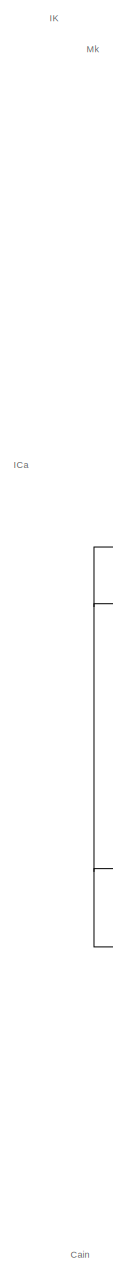
[diagram: ALM - part 1/8, top left region]
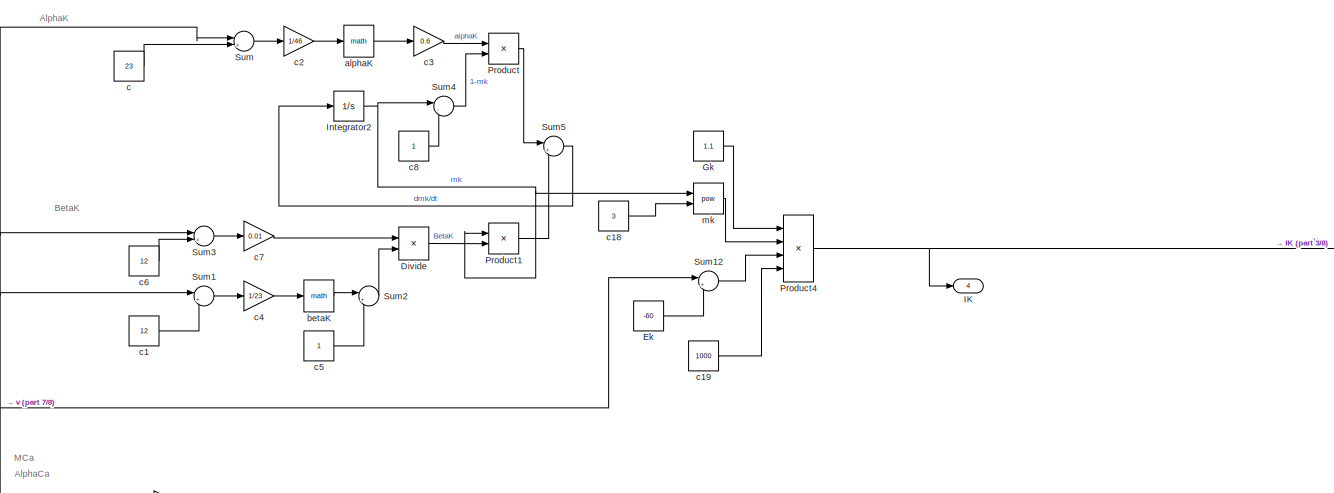
[diagram: ALM - part 2/8, top center region]
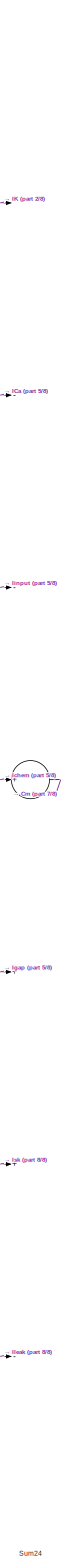
[diagram: ALM - part 3/8, right side, full height]
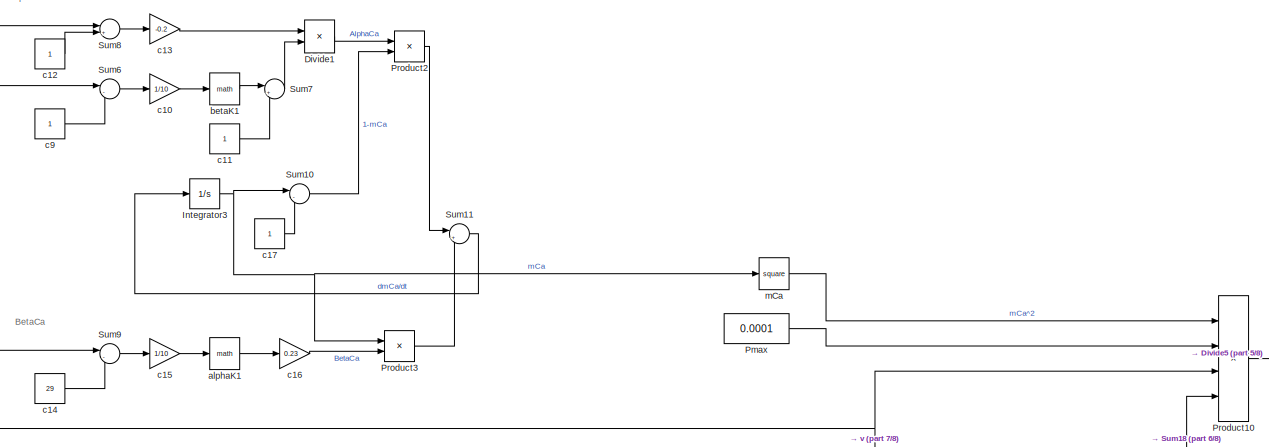
[diagram: ALM - part 4/8, top left region]
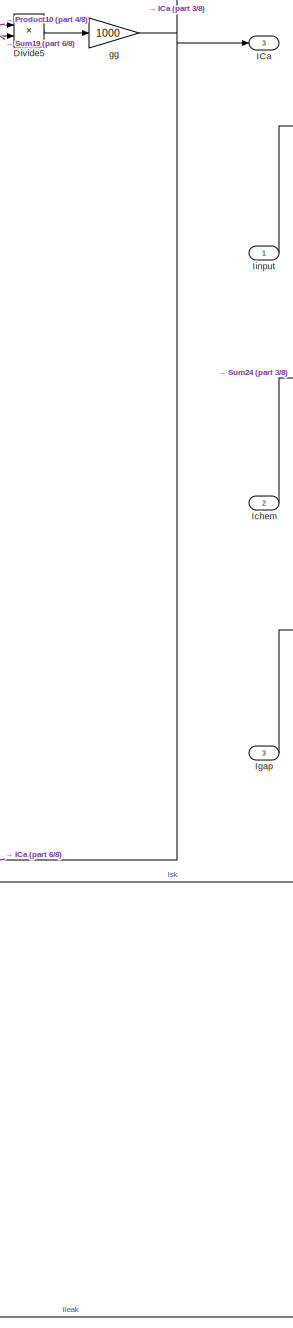
[diagram: ALM - part 5/8, middle right region]
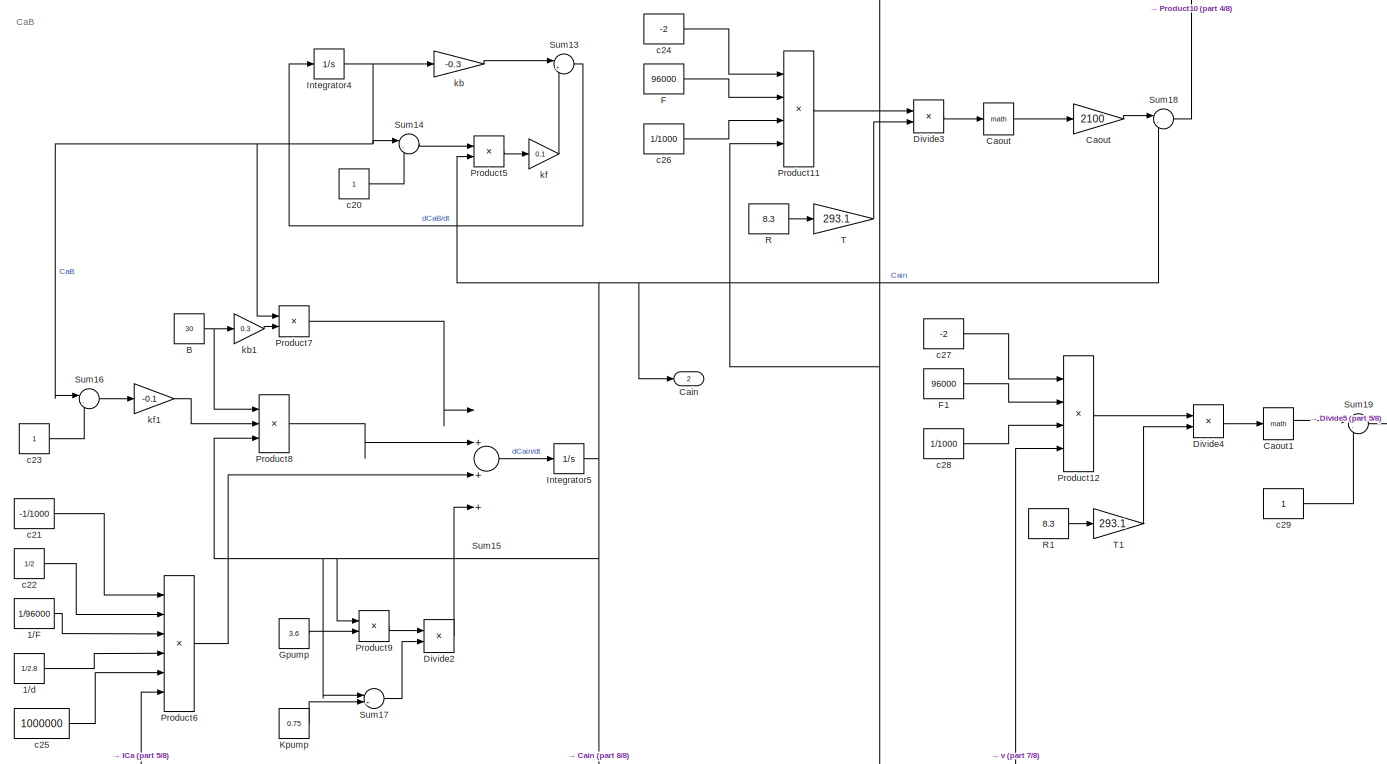
[diagram: ALM - part 6/8, central region]
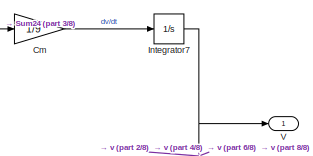
[diagram: ALM - part 7/8, middle right region]
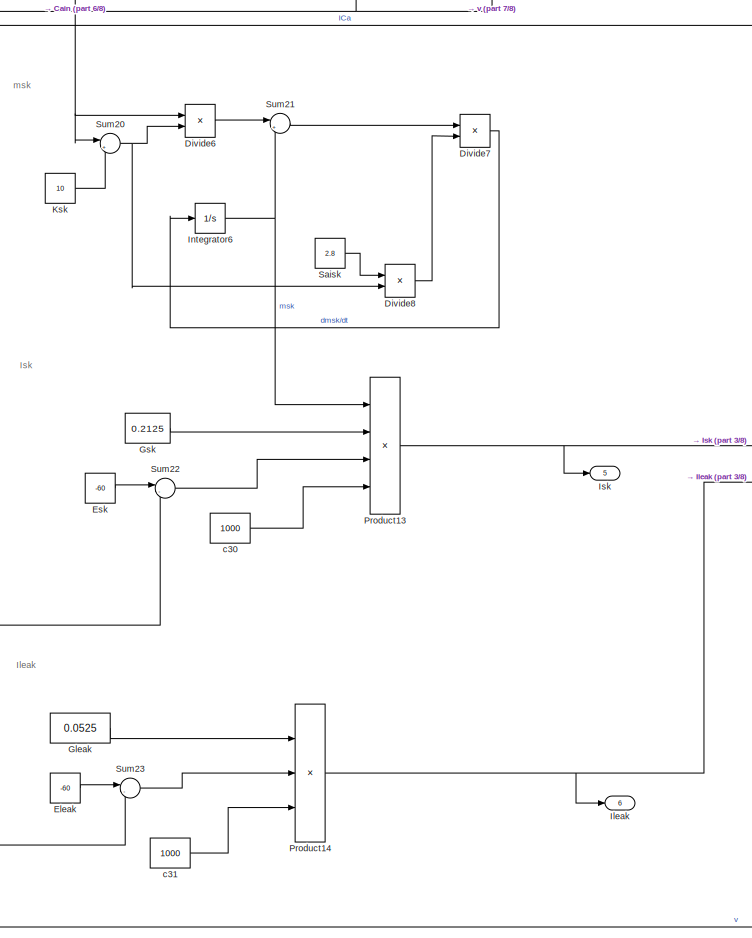
[diagram: ALM - part 8/8, bottom center region]
BLOCK [SubSystem] ALM
  Ports = [3, 6]
  RequestExecContextInheritance = off
  Variant = off
BLOCK [Constant] ALM/1//F
  Value = 1/96000
BLOCK [Constant] ALM/1//d
  Value = 1/2.8
BLOCK [Constant] ALM/B
  Value = 30
BLOCK [Outport] ALM/Cain 
  IconDisplay = Port number
  Port = 2
BLOCK [Math] ALM/Caout
  Ports = [1, 1]
BLOCK [Gain] ALM/Caout 
  Gain = 2100
  OutDataTypeStr = Inherit: Inherit via internal rule
  ParamDataTypeStr = Inherit: Inherit via internal rule
  SaturateOnIntegerOverflow = off
BLOCK [Math] ALM/Caout1
  Ports = [1, 1]
BLOCK [Gain] ALM/Cm 
  Gain = 1/9
  OutDataTypeStr = Inherit: Inherit via internal rule
  ParamDataTypeStr = Inherit: Inherit via internal rule
  SaturateOnIntegerOverflow = off
BLOCK [Product] ALM/Divide
  InputSameDT = off
  Inputs = */
  OutDataTypeStr = Inherit: Inherit via internal rule
  Ports = [2, 1]
  RndMeth = Floor
  SaturateOnIntegerOverflow = off
BLOCK [Product] ALM/Divide1
  InputSameDT = off
  Inputs = */
  OutDataTypeStr = Inherit: Inherit via internal rule
  Ports = [2, 1]
  RndMeth = Floor
  SaturateOnIntegerOverflow = off
BLOCK [Product] ALM/Divide2
  InputSameDT = off
  Inputs = */
  OutDataTypeStr = Inherit: Inherit via internal rule
  Ports = [2, 1]
  RndMeth = Floor
  SaturateOnIntegerOverflow = off
BLOCK [Product] ALM/Divide3
  InputSameDT = off
  Inputs = */
  OutDataTypeStr = Inherit: Inherit via internal rule
  Ports = [2, 1]
  RndMeth = Floor
  SaturateOnIntegerOverflow = off
BLOCK [Product] ALM/Divide4
  InputSameDT = off
  Inputs = */
  OutDataTypeStr = Inherit: Inherit via internal rule
  Ports = [2, 1]
  RndMeth = Floor
  SaturateOnIntegerOverflow = off
BLOCK [Product] ALM/Divide5
  InputSameDT = off
  Inputs = */
  OutDataTypeStr = Inherit: Inherit via internal rule
  Ports = [2, 1]
  RndMeth = Floor
  SaturateOnIntegerOverflow = off
BLOCK [Product] ALM/Divide6
  InputSameDT = off
  Inputs = */
  OutDataTypeStr = Inherit: Inherit via internal rule
  Ports = [2, 1]
  RndMeth = Floor
  SaturateOnIntegerOverflow = off
BLOCK [Product] ALM/Divide7
  InputSameDT = off
  Inputs = */
  OutDataTypeStr = Inherit: Inherit via internal rule
  Ports = [2, 1]
  RndMeth = Floor
  SaturateOnIntegerOverflow = off
BLOCK [Product] ALM/Divide8
  InputSameDT = off
  Inputs = */
  OutDataTypeStr = Inherit: Inherit via internal rule
  Ports = [2, 1]
  RndMeth = Floor
  SaturateOnIntegerOverflow = off
BLOCK [Constant] ALM/Ek 
  Value = -60
BLOCK [Constant] ALM/Eleak
  Value = -60
BLOCK [Constant] ALM/Esk
  Value = -60
BLOCK [Constant] ALM/F
  Value = 96000
BLOCK [Constant] ALM/F1
  Value = 96000
BLOCK [Constant] ALM/Gk 
  Value = 1.1
BLOCK [Constant] ALM/Gleak
  Value = 0.0525
BLOCK [Constant] ALM/Gpump
  Value = 3.6
BLOCK [Constant] ALM/Gsk
  Value = 0.2125
BLOCK [Outport] ALM/ICa
  IconDisplay = Port number
  Port = 3
BLOCK [Outport] ALM/IK
  IconDisplay = Port number
  Port = 4
BLOCK [Inport] ALM/Ichem
  IconDisplay = Port number
  Port = 2
BLOCK [Inport] ALM/Igap
  IconDisplay = Port number
  Port = 3
BLOCK [Inport] ALM/Iinput
  IconDisplay = Port number
BLOCK [Outport] ALM/Ileak
  IconDisplay = Port number
  Port = 6
BLOCK [Integrator] ALM/Integrator2
  Ports = [1, 1]
BLOCK [Integrator] ALM/Integrator3
  InitialCondition = 0.001
  Ports = [1, 1]
BLOCK [Integrator] ALM/Integrator4
  Ports = [1, 1]
BLOCK [Integrator] ALM/Integrator5
  Ports = [1, 1]
BLOCK [Integrator] ALM/Integrator6
  InitialCondition = 1
  Ports = [1, 1]
BLOCK [Integrator] ALM/Integrator7
  InitialCondition = -60
  Ports = [1, 1]
BLOCK [Outport] ALM/Isk
  IconDisplay = Port number
  Port = 5
BLOCK [Constant] ALM/Kpump
  Value = 0.75
BLOCK [Constant] ALM/Ksk
  Value = 10
BLOCK [Constant] ALM/Pmax
  Value = 0.0001
BLOCK [Product] ALM/Product
  InputSameDT = off
  OutDataTypeStr = Inherit: Inherit via internal rule
  Ports = [2, 1]
  RndMeth = Floor
  SaturateOnIntegerOverflow = off
BLOCK [Product] ALM/Product1
  InputSameDT = off
  OutDataTypeStr = Inherit: Inherit via internal rule
  Ports = [2, 1]
  RndMeth = Floor
  SaturateOnIntegerOverflow = off
BLOCK [Product] ALM/Product10
  InputSameDT = off
  Inputs = 4
  OutDataTypeStr = Inherit: Inherit via internal rule
  Ports = [4, 1]
  RndMeth = Floor
  SaturateOnIntegerOverflow = off
BLOCK [Product] ALM/Product11
  InputSameDT = off
  Inputs = 4
  OutDataTypeStr = Inherit: Inherit via internal rule
  Ports = [4, 1]
  RndMeth = Floor
  SaturateOnIntegerOverflow = off
BLOCK [Product] ALM/Product12
  InputSameDT = off
  Inputs = 4
  OutDataTypeStr = Inherit: Inherit via internal rule
  Ports = [4, 1]
  RndMeth = Floor
  SaturateOnIntegerOverflow = off
BLOCK [Product] ALM/Product13
  InputSameDT = off
  Inputs = 4
  OutDataTypeStr = Inherit: Inherit via internal rule
  Ports = [4, 1]
  RndMeth = Floor
  SaturateOnIntegerOverflow = off
BLOCK [Product] ALM/Product14
  InputSameDT = off
  Inputs = 3
  OutDataTypeStr = Inherit: Inherit via internal rule
  Ports = [3, 1]
  RndMeth = Floor
  SaturateOnIntegerOverflow = off
BLOCK [Product] ALM/Product2
  InputSameDT = off
  OutDataTypeStr = Inherit: Inherit via internal rule
  Ports = [2, 1]
  RndMeth = Floor
  SaturateOnIntegerOverflow = off
BLOCK [Product] ALM/Product3
  InputSameDT = off
  OutDataTypeStr = Inherit: Inherit via internal rule
  Ports = [2, 1]
  RndMeth = Floor
  SaturateOnIntegerOverflow = off
BLOCK [Product] ALM/Product4
  InputSameDT = off
  Inputs = 4
  OutDataTypeStr = Inherit: Inherit via internal rule
  Ports = [4, 1]
  RndMeth = Floor
  SaturateOnIntegerOverflow = off
BLOCK [Product] ALM/Product5
  InputSameDT = off
  OutDataTypeStr = Inherit: Inherit via internal rule
  Ports = [2, 1]
  RndMeth = Floor
  SaturateOnIntegerOverflow = off
BLOCK [Product] ALM/Product6
  InputSameDT = off
  Inputs = 6
  OutDataTypeStr = Inherit: Inherit via internal rule
  Ports = [6, 1]
  RndMeth = Floor
  SaturateOnIntegerOverflow = off
BLOCK [Product] ALM/Product7
  InputSameDT = off
  OutDataTypeStr = Inherit: Inherit via internal rule
  Ports = [2, 1]
  RndMeth = Floor
  SaturateOnIntegerOverflow = off
BLOCK [Product] ALM/Product8
  InputSameDT = off
  Inputs = 3
  OutDataTypeStr = Inherit: Inherit via internal rule
  Ports = [3, 1]
  RndMeth = Floor
  SaturateOnIntegerOverflow = off
BLOCK [Product] ALM/Product9
  InputSameDT = off
  OutDataTypeStr = Inherit: Inherit via internal rule
  Ports = [2, 1]
  RndMeth = Floor
  SaturateOnIntegerOverflow = off
BLOCK [Constant] ALM/R
  Value = 8.3
BLOCK [Constant] ALM/R1
  Value = 8.3
BLOCK [Constant] ALM/Saisk
  Value = 2.8
BLOCK [Sum] ALM/Sum
  IconShape = round
  InputSameDT = off
  Inputs = |+-
  OutDataTypeStr = Inherit: Inherit via internal rule
  Ports = [2, 1]
  SaturateOnIntegerOverflow = off
BLOCK [Sum] ALM/Sum1
  IconShape = round
  InputSameDT = off
  Inputs = |++
  OutDataTypeStr = Inherit: Inherit via internal rule
  Ports = [2, 1]
  SaturateOnIntegerOverflow = off
BLOCK [Sum] ALM/Sum10
  IconShape = round
  InputSameDT = off
  Inputs = |-+
  OutDataTypeStr = Inherit: Inherit via internal rule
  Ports = [2, 1]
  SaturateOnIntegerOverflow = off
BLOCK [Sum] ALM/Sum11
  IconShape = round
  InputSameDT = off
  Inputs = |+-
  OutDataTypeStr = Inherit: Inherit via internal rule
  Ports = [2, 1]
  SaturateOnIntegerOverflow = off
BLOCK [Sum] ALM/Sum12
  IconShape = round
  InputSameDT = off
  Inputs = |+-
  OutDataTypeStr = Inherit: Inherit via internal rule
  Ports = [2, 1]
  SaturateOnIntegerOverflow = off
BLOCK [Sum] ALM/Sum13
  IconShape = round
  InputSameDT = off
  Inputs = |++
  OutDataTypeStr = Inherit: Inherit via internal rule
  Ports = [2, 1]
  SaturateOnIntegerOverflow = off
BLOCK [Sum] ALM/Sum14
  IconShape = round
  InputSameDT = off
  Inputs = |-+
  OutDataTypeStr = Inherit: Inherit via internal rule
  Ports = [2, 1]
  SaturateOnIntegerOverflow = off
BLOCK [Sum] ALM/Sum15
  InputSameDT = off
  Inputs = |+++-
  OutDataTypeStr = Inherit: Inherit via internal rule
  Ports = [4, 1]
  SaturateOnIntegerOverflow = off
BLOCK [Sum] ALM/Sum16
  IconShape = round
  InputSameDT = off
  Inputs = |-+
  OutDataTypeStr = Inherit: Inherit via internal rule
  Ports = [2, 1]
  SaturateOnIntegerOverflow = off
BLOCK [Sum] ALM/Sum17
  IconShape = round
  InputSameDT = off
  Inputs = |++
  OutDataTypeStr = Inherit: Inherit via internal rule
  Ports = [2, 1]
  SaturateOnIntegerOverflow = off
BLOCK [Sum] ALM/Sum18
  IconShape = round
  InputSameDT = off
  Inputs = |-+
  OutDataTypeStr = Inherit: Inherit via internal rule
  Ports = [2, 1]
  SaturateOnIntegerOverflow = off
BLOCK [Sum] ALM/Sum19
  IconShape = round
  InputSameDT = off
  Inputs = |-+
  OutDataTypeStr = Inherit: Inherit via internal rule
  Ports = [2, 1]
  SaturateOnIntegerOverflow = off
BLOCK [Sum] ALM/Sum2
  IconShape = round
  InputSameDT = off
  Inputs = |+-
  OutDataTypeStr = Inherit: Inherit via internal rule
  Ports = [2, 1]
  SaturateOnIntegerOverflow = off
BLOCK [Sum] ALM/Sum20
  IconShape = round
  InputSameDT = off
  Inputs = |++
  OutDataTypeStr = Inherit: Inherit via internal rule
  Ports = [2, 1]
  SaturateOnIntegerOverflow = off
BLOCK [Sum] ALM/Sum21
  IconShape = round
  InputSameDT = off
  Inputs = |+-
  OutDataTypeStr = Inherit: Inherit via internal rule
  Ports = [2, 1]
  SaturateOnIntegerOverflow = off
BLOCK [Sum] ALM/Sum22
  IconShape = round
  InputSameDT = off
  Inputs = |-+
  OutDataTypeStr = Inherit: Inherit via internal rule
  Ports = [2, 1]
  SaturateOnIntegerOverflow = off
BLOCK [Sum] ALM/Sum23
  IconShape = round
  InputSameDT = off
  Inputs = |-+
  OutDataTypeStr = Inherit: Inherit via internal rule
  Ports = [2, 1]
  SaturateOnIntegerOverflow = off
BLOCK [Sum] ALM/Sum24
  InputSameDT = off
  Inputs = |--+++--
  OutDataTypeStr = Inherit: Inherit via internal rule
  Ports = [7, 1]
  SaturateOnIntegerOverflow = off
BLOCK [Sum] ALM/Sum3
  IconShape = round
  InputSameDT = off
  Inputs = |++
  OutDataTypeStr = Inherit: Inherit via internal rule
  Ports = [2, 1]
  SaturateOnIntegerOverflow = off
BLOCK [Sum] ALM/Sum4
  IconShape = round
  InputSameDT = off
  Inputs = |-+
  OutDataTypeStr = Inherit: Inherit via internal rule
  Ports = [2, 1]
  SaturateOnIntegerOverflow = off
BLOCK [Sum] ALM/Sum5
  IconShape = round
  InputSameDT = off
  Inputs = |+-
  OutDataTypeStr = Inherit: Inherit via internal rule
  Ports = [2, 1]
  SaturateOnIntegerOverflow = off
BLOCK [Sum] ALM/Sum6
  IconShape = round
  InputSameDT = off
  Inputs = |--
  OutDataTypeStr = Inherit: Inherit via internal rule
  Ports = [2, 1]
  SaturateOnIntegerOverflow = off
BLOCK [Sum] ALM/Sum7
  IconShape = round
  InputSameDT = off
  Inputs = |+-
  OutDataTypeStr = Inherit: Inherit via internal rule
  Ports = [2, 1]
  SaturateOnIntegerOverflow = off
BLOCK [Sum] ALM/Sum8
  IconShape = round
  InputSameDT = off
  Inputs = |++
  OutDataTypeStr = Inherit: Inherit via internal rule
  Ports = [2, 1]
  SaturateOnIntegerOverflow = off
BLOCK [Sum] ALM/Sum9
  IconShape = round
  InputSameDT = off
  Inputs = |--
  OutDataTypeStr = Inherit: Inherit via internal rule
  Ports = [2, 1]
  SaturateOnIntegerOverflow = off
BLOCK [Gain] ALM/T
  Gain = 293.1
  OutDataTypeStr = Inherit: Inherit via internal rule
  ParamDataTypeStr = Inherit: Inherit via internal rule
  SaturateOnIntegerOverflow = off
BLOCK [Gain] ALM/T1
  Gain = 293.1
  OutDataTypeStr = Inherit: Inherit via internal rule
  ParamDataTypeStr = Inherit: Inherit via internal rule
  SaturateOnIntegerOverflow = off
BLOCK [Outport] ALM/V
  IconDisplay = Port number
BLOCK [Math] ALM/alphaK
  Ports = [1, 1]
BLOCK [Math] ALM/alphaK1
  Ports = [1, 1]
BLOCK [Math] ALM/betaK
  Ports = [1, 1]
BLOCK [Math] ALM/betaK1
  Ports = [1, 1]
BLOCK [Constant] ALM/c
  Value = 23
BLOCK [Constant] ALM/c1
  Value = 12
BLOCK [Gain] ALM/c10
  Gain = 1/10
  OutDataTypeStr = Inherit: Inherit via internal rule
  ParamDataTypeStr = Inherit: Inherit via internal rule
  SaturateOnIntegerOverflow = off
BLOCK [Constant] ALM/c11
BLOCK [Constant] ALM/c12
BLOCK [Gain] ALM/c13
  Gain = -0.2
  OutDataTypeStr = Inherit: Inherit via internal rule
  ParamDataTypeStr = Inherit: Inherit via internal rule
  SaturateOnIntegerOverflow = off
BLOCK [Constant] ALM/c14
  Value = 29
BLOCK [Gain] ALM/c15
  Gain = 1/10
  OutDataTypeStr = Inherit: Inherit via internal rule
  ParamDataTypeStr = Inherit: Inherit via internal rule
  SaturateOnIntegerOverflow = off
BLOCK [Gain] ALM/c16
  Gain = 0.23
  OutDataTypeStr = Inherit: Inherit via internal rule
  ParamDataTypeStr = Inherit: Inherit via internal rule
  SaturateOnIntegerOverflow = off
BLOCK [Constant] ALM/c17
BLOCK [Constant] ALM/c18
  Value = 3
BLOCK [Constant] ALM/c19
  Value = 1000
BLOCK [Gain] ALM/c2
  Gain = 1/46
  OutDataTypeStr = Inherit: Inherit via internal rule
  ParamDataTypeStr = Inherit: Inherit via internal rule
  SaturateOnIntegerOverflow = off
BLOCK [Constant] ALM/c20
BLOCK [Constant] ALM/c21
  Value = -1/1000
BLOCK [Constant] ALM/c22
  Value = 1/2
BLOCK [Constant] ALM/c23
BLOCK [Constant] ALM/c24
  Value = -2
BLOCK [Constant] ALM/c25
  Value = 1000000
BLOCK [Constant] ALM/c26
  Value = 1/1000
BLOCK [Constant] ALM/c27
  Value = -2
BLOCK [Constant] ALM/c28
  Value = 1/1000
BLOCK [Constant] ALM/c29
BLOCK [Gain] ALM/c3
  Gain = 0.6
  OutDataTypeStr = Inherit: Inherit via internal rule
  ParamDataTypeStr = Inherit: Inherit via internal rule
  SaturateOnIntegerOverflow = off
BLOCK [Constant] ALM/c30
  Value = 1000
BLOCK [Constant] ALM/c31
  Value = 1000
BLOCK [Gain] ALM/c4
  Gain = 1/23
  OutDataTypeStr = Inherit: Inherit via internal rule
  ParamDataTypeStr = Inherit: Inherit via internal rule
  SaturateOnIntegerOverflow = off
BLOCK [Constant] ALM/c5
BLOCK [Constant] ALM/c6
  Value = 12
BLOCK [Gain] ALM/c7
  Gain = 0.01
  OutDataTypeStr = Inherit: Inherit via internal rule
  ParamDataTypeStr = Inherit: Inherit via internal rule
  SaturateOnIntegerOverflow = off
BLOCK [Constant] ALM/c8
BLOCK [Constant] ALM/c9
BLOCK [Gain] ALM/gg 
  Gain = 1000
  OutDataTypeStr = Inherit: Inherit via internal rule
  ParamDataTypeStr = Inherit: Inherit via internal rule
  SaturateOnIntegerOverflow = off
BLOCK [Gain] ALM/kb
  Gain = -0.3
  OutDataTypeStr = Inherit: Inherit via internal rule
  ParamDataTypeStr = Inherit: Inherit via internal rule
  SaturateOnIntegerOverflow = off
BLOCK [Gain] ALM/kb1
  Gain = 0.3
  OutDataTypeStr = Inherit: Inherit via internal rule
  ParamDataTypeStr = Inherit: Inherit via internal rule
  SaturateOnIntegerOverflow = off
BLOCK [Gain] ALM/kf
  Gain = 0.1
  OutDataTypeStr = Inherit: Inherit via internal rule
  ParamDataTypeStr = Inherit: Inherit via internal rule
  SaturateOnIntegerOverflow = off
BLOCK [Gain] ALM/kf1
  Gain = -0.1
  OutDataTypeStr = Inherit: Inherit via internal rule
  ParamDataTypeStr = Inherit: Inherit via internal rule
  SaturateOnIntegerOverflow = off
BLOCK [Math] ALM/mCa
  Operator = square
  Ports = [1, 1]
BLOCK [Math] ALM/mk
  Operator = pow
  Ports = [2, 1]
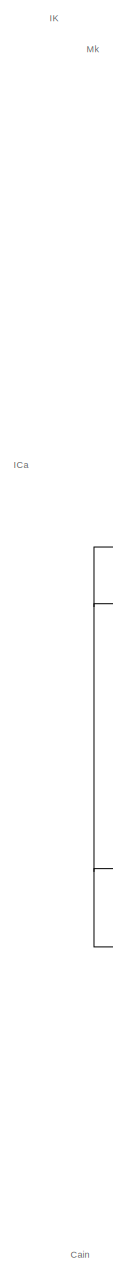
[diagram: AVA - part 1/8, top left region]
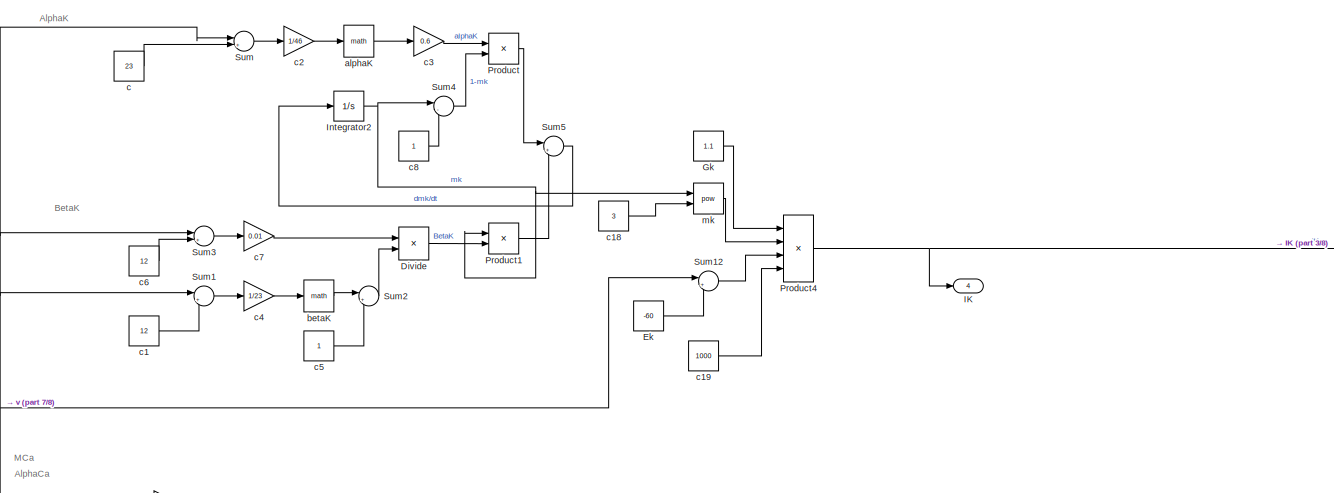
[diagram: AVA - part 2/8, top center region]
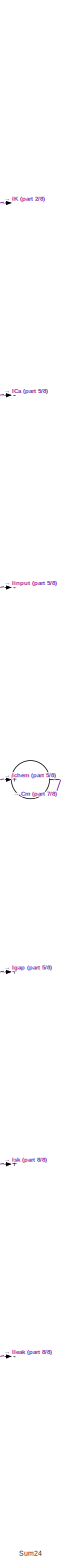
[diagram: AVA - part 3/8, right side, full height]
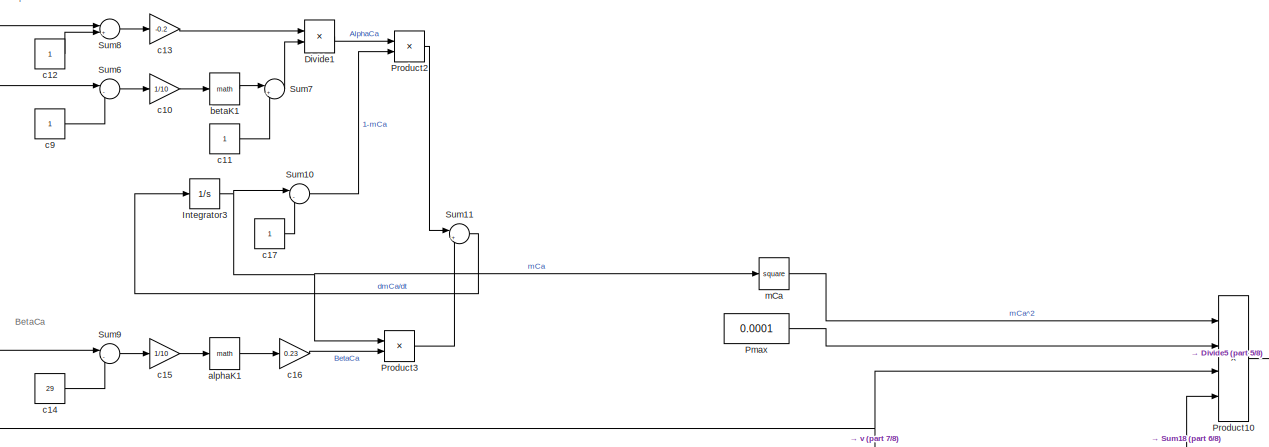
[diagram: AVA - part 4/8, top left region]
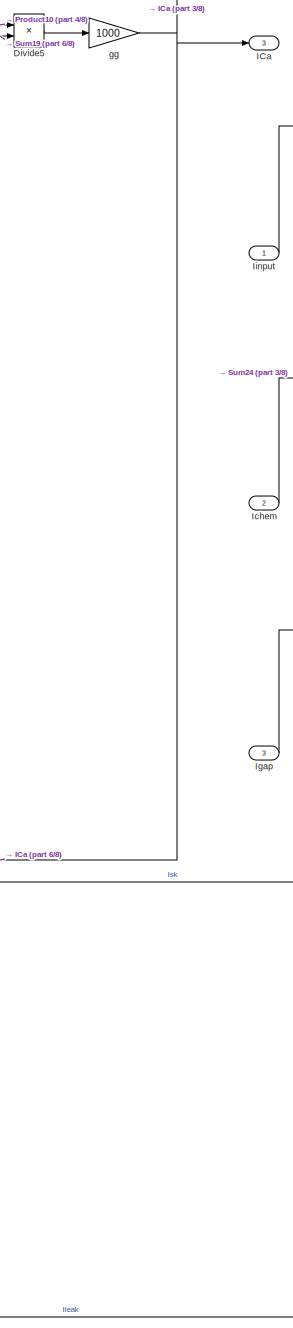
[diagram: AVA - part 5/8, middle right region]
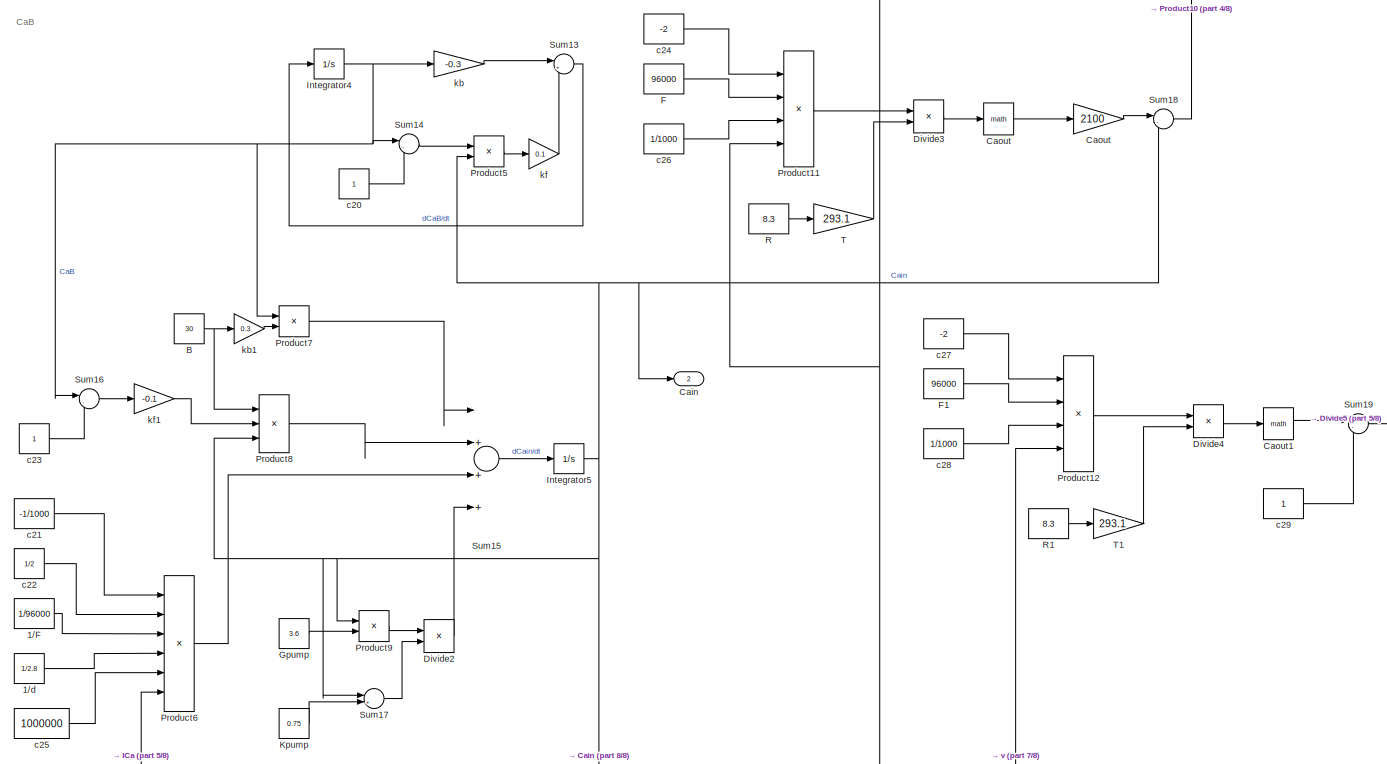
[diagram: AVA - part 6/8, central region]
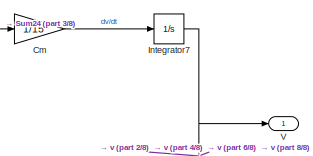
[diagram: AVA - part 7/8, middle right region]
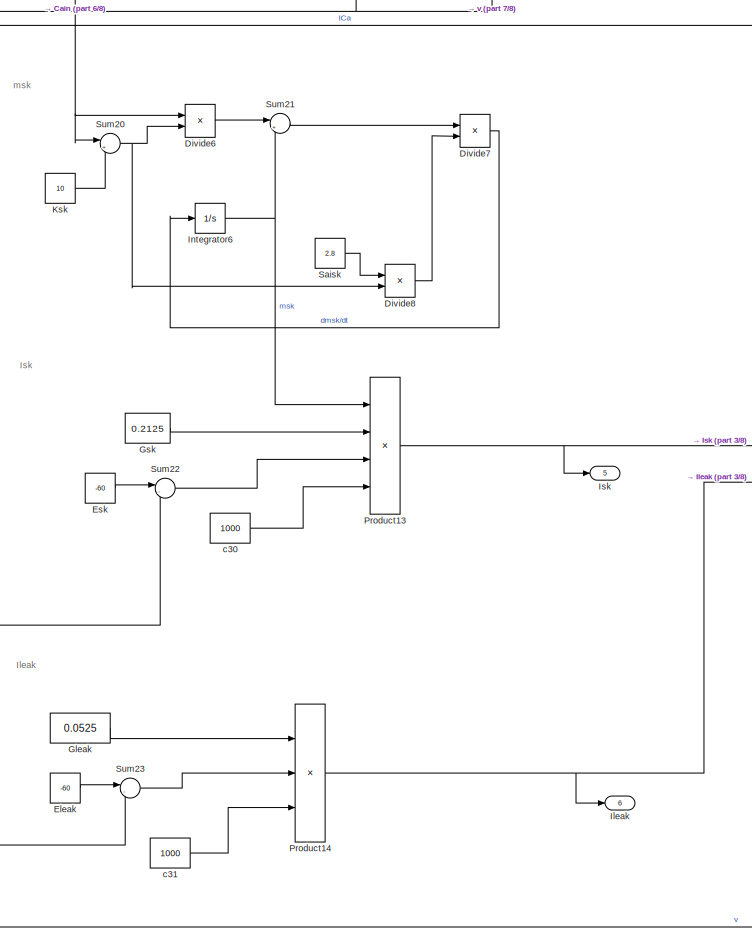
[diagram: AVA - part 8/8, bottom center region]
BLOCK [SubSystem] AVA
  Ports = [3, 6]
  RequestExecContextInheritance = off
  Variant = off
BLOCK [Constant] AVA/1//F
  Value = 1/96000
BLOCK [Constant] AVA/1//d
  Value = 1/2.8
BLOCK [Constant] AVA/B
  Value = 30
BLOCK [Outport] AVA/Cain 
  IconDisplay = Port number
  Port = 2
BLOCK [Math] AVA/Caout
  Ports = [1, 1]
BLOCK [Gain] AVA/Caout 
  Gain = 2100
  OutDataTypeStr = Inherit: Inherit via internal rule
  ParamDataTypeStr = Inherit: Inherit via internal rule
  SaturateOnIntegerOverflow = off
BLOCK [Math] AVA/Caout1
  Ports = [1, 1]
BLOCK [Gain] AVA/Cm 
  Gain = 1/15
  OutDataTypeStr = Inherit: Inherit via internal rule
  ParamDataTypeStr = Inherit: Inherit via internal rule
  SaturateOnIntegerOverflow = off
BLOCK [Product] AVA/Divide
  InputSameDT = off
  Inputs = */
  OutDataTypeStr = Inherit: Inherit via internal rule
  Ports = [2, 1]
  RndMeth = Floor
  SaturateOnIntegerOverflow = off
BLOCK [Product] AVA/Divide1
  InputSameDT = off
  Inputs = */
  OutDataTypeStr = Inherit: Inherit via internal rule
  Ports = [2, 1]
  RndMeth = Floor
  SaturateOnIntegerOverflow = off
BLOCK [Product] AVA/Divide2
  InputSameDT = off
  Inputs = */
  OutDataTypeStr = Inherit: Inherit via internal rule
  Ports = [2, 1]
  RndMeth = Floor
  SaturateOnIntegerOverflow = off
BLOCK [Product] AVA/Divide3
  InputSameDT = off
  Inputs = */
  OutDataTypeStr = Inherit: Inherit via internal rule
  Ports = [2, 1]
  RndMeth = Floor
  SaturateOnIntegerOverflow = off
BLOCK [Product] AVA/Divide4
  InputSameDT = off
  Inputs = */
  OutDataTypeStr = Inherit: Inherit via internal rule
  Ports = [2, 1]
  RndMeth = Floor
  SaturateOnIntegerOverflow = off
BLOCK [Product] AVA/Divide5
  InputSameDT = off
  Inputs = */
  OutDataTypeStr = Inherit: Inherit via internal rule
  Ports = [2, 1]
  RndMeth = Floor
  SaturateOnIntegerOverflow = off
BLOCK [Product] AVA/Divide6
  InputSameDT = off
  Inputs = */
  OutDataTypeStr = Inherit: Inherit via internal rule
  Ports = [2, 1]
  RndMeth = Floor
  SaturateOnIntegerOverflow = off
BLOCK [Product] AVA/Divide7
  InputSameDT = off
  Inputs = */
  OutDataTypeStr = Inherit: Inherit via internal rule
  Ports = [2, 1]
  RndMeth = Floor
  SaturateOnIntegerOverflow = off
BLOCK [Product] AVA/Divide8
  InputSameDT = off
  Inputs = */
  OutDataTypeStr = Inherit: Inherit via internal rule
  Ports = [2, 1]
  RndMeth = Floor
  SaturateOnIntegerOverflow = off
BLOCK [Constant] AVA/Ek 
  Value = -60
BLOCK [Constant] AVA/Eleak
  Value = -60
BLOCK [Constant] AVA/Esk
  Value = -60
BLOCK [Constant] AVA/F
  Value = 96000
BLOCK [Constant] AVA/F1
  Value = 96000
BLOCK [Constant] AVA/Gk 
  Value = 1.1
BLOCK [Constant] AVA/Gleak
  Value = 0.0525
BLOCK [Constant] AVA/Gpump
  Value = 3.6
BLOCK [Constant] AVA/Gsk
  Value = 0.2125
BLOCK [Outport] AVA/ICa
  IconDisplay = Port number
  Port = 3
BLOCK [Outport] AVA/IK
  IconDisplay = Port number
  Port = 4
BLOCK [Inport] AVA/Ichem
  IconDisplay = Port number
  Port = 2
BLOCK [Inport] AVA/Igap
  IconDisplay = Port number
  Port = 3
BLOCK [Inport] AVA/Iinput
  IconDisplay = Port number
BLOCK [Outport] AVA/Ileak
  IconDisplay = Port number
  Port = 6
BLOCK [Integrator] AVA/Integrator2
  Ports = [1, 1]
BLOCK [Integrator] AVA/Integrator3
  InitialCondition = 0.001
  Ports = [1, 1]
BLOCK [Integrator] AVA/Integrator4
  Ports = [1, 1]
BLOCK [Integrator] AVA/Integrator5
  Ports = [1, 1]
BLOCK [Integrator] AVA/Integrator6
  InitialCondition = 1
  Ports = [1, 1]
BLOCK [Integrator] AVA/Integrator7
  InitialCondition = -60
  Ports = [1, 1]
BLOCK [Outport] AVA/Isk
  IconDisplay = Port number
  Port = 5
BLOCK [Constant] AVA/Kpump
  Value = 0.75
BLOCK [Constant] AVA/Ksk
  Value = 10
BLOCK [Constant] AVA/Pmax
  Value = 0.0001
BLOCK [Product] AVA/Product
  InputSameDT = off
  OutDataTypeStr = Inherit: Inherit via internal rule
  Ports = [2, 1]
  RndMeth = Floor
  SaturateOnIntegerOverflow = off
BLOCK [Product] AVA/Product1
  InputSameDT = off
  OutDataTypeStr = Inherit: Inherit via internal rule
  Ports = [2, 1]
  RndMeth = Floor
  SaturateOnIntegerOverflow = off
BLOCK [Product] AVA/Product10
  InputSameDT = off
  Inputs = 4
  OutDataTypeStr = Inherit: Inherit via internal rule
  Ports = [4, 1]
  RndMeth = Floor
  SaturateOnIntegerOverflow = off
BLOCK [Product] AVA/Product11
  InputSameDT = off
  Inputs = 4
  OutDataTypeStr = Inherit: Inherit via internal rule
  Ports = [4, 1]
  RndMeth = Floor
  SaturateOnIntegerOverflow = off
BLOCK [Product] AVA/Product12
  InputSameDT = off
  Inputs = 4
  OutDataTypeStr = Inherit: Inherit via internal rule
  Ports = [4, 1]
  RndMeth = Floor
  SaturateOnIntegerOverflow = off
BLOCK [Product] AVA/Product13
  InputSameDT = off
  Inputs = 4
  OutDataTypeStr = Inherit: Inherit via internal rule
  Ports = [4, 1]
  RndMeth = Floor
  SaturateOnIntegerOverflow = off
BLOCK [Product] AVA/Product14
  InputSameDT = off
  Inputs = 3
  OutDataTypeStr = Inherit: Inherit via internal rule
  Ports = [3, 1]
  RndMeth = Floor
  SaturateOnIntegerOverflow = off
BLOCK [Product] AVA/Product2
  InputSameDT = off
  OutDataTypeStr = Inherit: Inherit via internal rule
  Ports = [2, 1]
  RndMeth = Floor
  SaturateOnIntegerOverflow = off
BLOCK [Product] AVA/Product3
  InputSameDT = off
  OutDataTypeStr = Inherit: Inherit via internal rule
  Ports = [2, 1]
  RndMeth = Floor
  SaturateOnIntegerOverflow = off
BLOCK [Product] AVA/Product4
  InputSameDT = off
  Inputs = 4
  OutDataTypeStr = Inherit: Inherit via internal rule
  Ports = [4, 1]
  RndMeth = Floor
  SaturateOnIntegerOverflow = off
BLOCK [Product] AVA/Product5
  InputSameDT = off
  OutDataTypeStr = Inherit: Inherit via internal rule
  Ports = [2, 1]
  RndMeth = Floor
  SaturateOnIntegerOverflow = off
BLOCK [Product] AVA/Product6
  InputSameDT = off
  Inputs = 6
  OutDataTypeStr = Inherit: Inherit via internal rule
  Ports = [6, 1]
  RndMeth = Floor
  SaturateOnIntegerOverflow = off
BLOCK [Product] AVA/Product7
  InputSameDT = off
  OutDataTypeStr = Inherit: Inherit via internal rule
  Ports = [2, 1]
  RndMeth = Floor
  SaturateOnIntegerOverflow = off
BLOCK [Product] AVA/Product8
  InputSameDT = off
  Inputs = 3
  OutDataTypeStr = Inherit: Inherit via internal rule
  Ports = [3, 1]
  RndMeth = Floor
  SaturateOnIntegerOverflow = off
BLOCK [Product] AVA/Product9
  InputSameDT = off
  OutDataTypeStr = Inherit: Inherit via internal rule
  Ports = [2, 1]
  RndMeth = Floor
  SaturateOnIntegerOverflow = off
BLOCK [Constant] AVA/R
  Value = 8.3
BLOCK [Constant] AVA/R1
  Value = 8.3
BLOCK [Constant] AVA/Saisk
  Value = 2.8
BLOCK [Sum] AVA/Sum
  IconShape = round
  InputSameDT = off
  Inputs = |+-
  OutDataTypeStr = Inherit: Inherit via internal rule
  Ports = [2, 1]
  SaturateOnIntegerOverflow = off
BLOCK [Sum] AVA/Sum1
  IconShape = round
  InputSameDT = off
  Inputs = |++
  OutDataTypeStr = Inherit: Inherit via internal rule
  Ports = [2, 1]
  SaturateOnIntegerOverflow = off
BLOCK [Sum] AVA/Sum10
  IconShape = round
  InputSameDT = off
  Inputs = |-+
  OutDataTypeStr = Inherit: Inherit via internal rule
  Ports = [2, 1]
  SaturateOnIntegerOverflow = off
BLOCK [Sum] AVA/Sum11
  IconShape = round
  InputSameDT = off
  Inputs = |+-
  OutDataTypeStr = Inherit: Inherit via internal rule
  Ports = [2, 1]
  SaturateOnIntegerOverflow = off
BLOCK [Sum] AVA/Sum12
  IconShape = round
  InputSameDT = off
  Inputs = |+-
  OutDataTypeStr = Inherit: Inherit via internal rule
  Ports = [2, 1]
  SaturateOnIntegerOverflow = off
BLOCK [Sum] AVA/Sum13
  IconShape = round
  InputSameDT = off
  Inputs = |++
  OutDataTypeStr = Inherit: Inherit via internal rule
  Ports = [2, 1]
  SaturateOnIntegerOverflow = off
BLOCK [Sum] AVA/Sum14
  IconShape = round
  InputSameDT = off
  Inputs = |-+
  OutDataTypeStr = Inherit: Inherit via internal rule
  Ports = [2, 1]
  SaturateOnIntegerOverflow = off
BLOCK [Sum] AVA/Sum15
  InputSameDT = off
  Inputs = |+++-
  OutDataTypeStr = Inherit: Inherit via internal rule
  Ports = [4, 1]
  SaturateOnIntegerOverflow = off
BLOCK [Sum] AVA/Sum16
  IconShape = round
  InputSameDT = off
  Inputs = |-+
  OutDataTypeStr = Inherit: Inherit via internal rule
  Ports = [2, 1]
  SaturateOnIntegerOverflow = off
BLOCK [Sum] AVA/Sum17
  IconShape = round
  InputSameDT = off
  Inputs = |++
  OutDataTypeStr = Inherit: Inherit via internal rule
  Ports = [2, 1]
  SaturateOnIntegerOverflow = off
BLOCK [Sum] AVA/Sum18
  IconShape = round
  InputSameDT = off
  Inputs = |-+
  OutDataTypeStr = Inherit: Inherit via internal rule
  Ports = [2, 1]
  SaturateOnIntegerOverflow = off
BLOCK [Sum] AVA/Sum19
  IconShape = round
  InputSameDT = off
  Inputs = |-+
  OutDataTypeStr = Inherit: Inherit via internal rule
  Ports = [2, 1]
  SaturateOnIntegerOverflow = off
BLOCK [Sum] AVA/Sum2
  IconShape = round
  InputSameDT = off
  Inputs = |+-
  OutDataTypeStr = Inherit: Inherit via internal rule
  Ports = [2, 1]
  SaturateOnIntegerOverflow = off
BLOCK [Sum] AVA/Sum20
  IconShape = round
  InputSameDT = off
  Inputs = |++
  OutDataTypeStr = Inherit: Inherit via internal rule
  Ports = [2, 1]
  SaturateOnIntegerOverflow = off
BLOCK [Sum] AVA/Sum21
  IconShape = round
  InputSameDT = off
  Inputs = |+-
  OutDataTypeStr = Inherit: Inherit via internal rule
  Ports = [2, 1]
  SaturateOnIntegerOverflow = off
BLOCK [Sum] AVA/Sum22
  IconShape = round
  InputSameDT = off
  Inputs = |-+
  OutDataTypeStr = Inherit: Inherit via internal rule
  Ports = [2, 1]
  SaturateOnIntegerOverflow = off
BLOCK [Sum] AVA/Sum23
  IconShape = round
  InputSameDT = off
  Inputs = |-+
  OutDataTypeStr = Inherit: Inherit via internal rule
  Ports = [2, 1]
  SaturateOnIntegerOverflow = off
BLOCK [Sum] AVA/Sum24
  InputSameDT = off
  Inputs = |--+++--
  OutDataTypeStr = Inherit: Inherit via internal rule
  Ports = [7, 1]
  SaturateOnIntegerOverflow = off
BLOCK [Sum] AVA/Sum3
  IconShape = round
  InputSameDT = off
  Inputs = |++
  OutDataTypeStr = Inherit: Inherit via internal rule
  Ports = [2, 1]
  SaturateOnIntegerOverflow = off
BLOCK [Sum] AVA/Sum4
  IconShape = round
  InputSameDT = off
  Inputs = |-+
  OutDataTypeStr = Inherit: Inherit via internal rule
  Ports = [2, 1]
  SaturateOnIntegerOverflow = off
BLOCK [Sum] AVA/Sum5
  IconShape = round
  InputSameDT = off
  Inputs = |+-
  OutDataTypeStr = Inherit: Inherit via internal rule
  Ports = [2, 1]
  SaturateOnIntegerOverflow = off
BLOCK [Sum] AVA/Sum6
  IconShape = round
  InputSameDT = off
  Inputs = |--
  OutDataTypeStr = Inherit: Inherit via internal rule
  Ports = [2, 1]
  SaturateOnIntegerOverflow = off
BLOCK [Sum] AVA/Sum7
  IconShape = round
  InputSameDT = off
  Inputs = |+-
  OutDataTypeStr = Inherit: Inherit via internal rule
  Ports = [2, 1]
  SaturateOnIntegerOverflow = off
BLOCK [Sum] AVA/Sum8
  IconShape = round
  InputSameDT = off
  Inputs = |++
  OutDataTypeStr = Inherit: Inherit via internal rule
  Ports = [2, 1]
  SaturateOnIntegerOverflow = off
BLOCK [Sum] AVA/Sum9
  IconShape = round
  InputSameDT = off
  Inputs = |--
  OutDataTypeStr = Inherit: Inherit via internal rule
  Ports = [2, 1]
  SaturateOnIntegerOverflow = off
BLOCK [Gain] AVA/T
  Gain = 293.1
  OutDataTypeStr = Inherit: Inherit via internal rule
  ParamDataTypeStr = Inherit: Inherit via internal rule
  SaturateOnIntegerOverflow = off
BLOCK [Gain] AVA/T1
  Gain = 293.1
  OutDataTypeStr = Inherit: Inherit via internal rule
  ParamDataTypeStr = Inherit: Inherit via internal rule
  SaturateOnIntegerOverflow = off
BLOCK [Outport] AVA/V
  IconDisplay = Port number
BLOCK [Math] AVA/alphaK
  Ports = [1, 1]
BLOCK [Math] AVA/alphaK1
  Ports = [1, 1]
BLOCK [Math] AVA/betaK
  Ports = [1, 1]
BLOCK [Math] AVA/betaK1
  Ports = [1, 1]
BLOCK [Constant] AVA/c
  Value = 23
BLOCK [Constant] AVA/c1
  Value = 12
BLOCK [Gain] AVA/c10
  Gain = 1/10
  OutDataTypeStr = Inherit: Inherit via internal rule
  ParamDataTypeStr = Inherit: Inherit via internal rule
  SaturateOnIntegerOverflow = off
BLOCK [Constant] AVA/c11
BLOCK [Constant] AVA/c12
BLOCK [Gain] AVA/c13
  Gain = -0.2
  OutDataTypeStr = Inherit: Inherit via internal rule
  ParamDataTypeStr = Inherit: Inherit via internal rule
  SaturateOnIntegerOverflow = off
BLOCK [Constant] AVA/c14
  Value = 29
BLOCK [Gain] AVA/c15
  Gain = 1/10
  OutDataTypeStr = Inherit: Inherit via internal rule
  ParamDataTypeStr = Inherit: Inherit via internal rule
  SaturateOnIntegerOverflow = off
BLOCK [Gain] AVA/c16
  Gain = 0.23
  OutDataTypeStr = Inherit: Inherit via internal rule
  ParamDataTypeStr = Inherit: Inherit via internal rule
  SaturateOnIntegerOverflow = off
BLOCK [Constant] AVA/c17
BLOCK [Constant] AVA/c18
  Value = 3
BLOCK [Constant] AVA/c19
  Value = 1000
BLOCK [Gain] AVA/c2
  Gain = 1/46
  OutDataTypeStr = Inherit: Inherit via internal rule
  ParamDataTypeStr = Inherit: Inherit via internal rule
  SaturateOnIntegerOverflow = off
BLOCK [Constant] AVA/c20
BLOCK [Constant] AVA/c21
  Value = -1/1000
BLOCK [Constant] AVA/c22
  Value = 1/2
BLOCK [Constant] AVA/c23
BLOCK [Constant] AVA/c24
  Value = -2
BLOCK [Constant] AVA/c25
  Value = 1000000
BLOCK [Constant] AVA/c26
  Value = 1/1000
BLOCK [Constant] AVA/c27
  Value = -2
BLOCK [Constant] AVA/c28
  Value = 1/1000
BLOCK [Constant] AVA/c29
BLOCK [Gain] AVA/c3
  Gain = 0.6
  OutDataTypeStr = Inherit: Inherit via internal rule
  ParamDataTypeStr = Inherit: Inherit via internal rule
  SaturateOnIntegerOverflow = off
BLOCK [Constant] AVA/c30
  Value = 1000
BLOCK [Constant] AVA/c31
  Value = 1000
BLOCK [Gain] AVA/c4
  Gain = 1/23
  OutDataTypeStr = Inherit: Inherit via internal rule
  ParamDataTypeStr = Inherit: Inherit via internal rule
  SaturateOnIntegerOverflow = off
BLOCK [Constant] AVA/c5
BLOCK [Constant] AVA/c6
  Value = 12
BLOCK [Gain] AVA/c7
  Gain = 0.01
  OutDataTypeStr = Inherit: Inherit via internal rule
  ParamDataTypeStr = Inherit: Inherit via internal rule
  SaturateOnIntegerOverflow = off
BLOCK [Constant] AVA/c8
BLOCK [Constant] AVA/c9
BLOCK [Gain] AVA/gg 
  Gain = 1000
  OutDataTypeStr = Inherit: Inherit via internal rule
  ParamDataTypeStr = Inherit: Inherit via internal rule
  SaturateOnIntegerOverflow = off
BLOCK [Gain] AVA/kb
  Gain = -0.3
  OutDataTypeStr = Inherit: Inherit via internal rule
  ParamDataTypeStr = Inherit: Inherit via internal rule
  SaturateOnIntegerOverflow = off
BLOCK [Gain] AVA/kb1
  Gain = 0.3
  OutDataTypeStr = Inherit: Inherit via internal rule
  ParamDataTypeStr = Inherit: Inherit via internal rule
  SaturateOnIntegerOverflow = off
BLOCK [Gain] AVA/kf
  Gain = 0.1
  OutDataTypeStr = Inherit: Inherit via internal rule
  ParamDataTypeStr = Inherit: Inherit via internal rule
  SaturateOnIntegerOverflow = off
BLOCK [Gain] AVA/kf1
  Gain = -0.1
  OutDataTypeStr = Inherit: Inherit via internal rule
  ParamDataTypeStr = Inherit: Inherit via internal rule
  SaturateOnIntegerOverflow = off
BLOCK [Math] AVA/mCa
  Operator = square
  Ports = [1, 1]
BLOCK [Math] AVA/mk
  Operator = pow
  Ports = [2, 1]
BLOCK [SubSystem] AVB
  Ports = [3, 6]
  RequestExecContextInheritance = off
  Variant = off
BLOCK [Constant] AVB/1//F
  Value = 1/96000
BLOCK [Constant] AVB/1//d
  Value = 1/2.8
BLOCK [Constant] AVB/B
  Value = 30
BLOCK [Outport] AVB/Cain 
  IconDisplay = Port number
  Port = 2
BLOCK [Math] AVB/Caout
  Ports = [1, 1]
BLOCK [Gain] AVB/Caout 
  Gain = 2100
  OutDataTypeStr = Inherit: Inherit via internal rule
  ParamDataTypeStr = Inherit: Inherit via internal rule
  SaturateOnIntegerOverflow = off
BLOCK [Math] AVB/Caout1
  Ports = [1, 1]
BLOCK [Gain] AVB/Cm 
  Gain = 1/14
  OutDataTypeStr = Inherit: Inherit via internal rule
  ParamDataTypeStr = Inherit: Inherit via internal rule
  SaturateOnIntegerOverflow = off
BLOCK [Product] AVB/Divide
  InputSameDT = off
  Inputs = */
  OutDataTypeStr = Inherit: Inherit via internal rule
  Ports = [2, 1]
  RndMeth = Floor
  SaturateOnIntegerOverflow = off
BLOCK [Product] AVB/Divide1
  InputSameDT = off
  Inputs = */
  OutDataTypeStr = Inherit: Inherit via internal rule
  Ports = [2, 1]
  RndMeth = Floor
  SaturateOnIntegerOverflow = off
BLOCK [Product] AVB/Divide2
  InputSameDT = off
  Inputs = */
  OutDataTypeStr = Inherit: Inherit via internal rule
  Ports = [2, 1]
  RndMeth = Floor
  SaturateOnIntegerOverflow = off
BLOCK [Product] AVB/Divide3
  InputSameDT = off
  Inputs = */
  OutDataTypeStr = Inherit: Inherit via internal rule
  Ports = [2, 1]
  RndMeth = Floor
  SaturateOnIntegerOverflow = off
BLOCK [Product] AVB/Divide4
  InputSameDT = off
  Inputs = */
  OutDataTypeStr = Inherit: Inherit via internal rule
  Ports = [2, 1]
  RndMeth = Floor
  SaturateOnIntegerOverflow = off
BLOCK [Product] AVB/Divide5
  InputSameDT = off
  Inputs = */
  OutDataTypeStr = Inherit: Inherit via internal rule
  Ports = [2, 1]
  RndMeth = Floor
  SaturateOnIntegerOverflow = off
BLOCK [Product] AVB/Divide6
  InputSameDT = off
  Inputs = */
  OutDataTypeStr = Inherit: Inherit via internal rule
  Ports = [2, 1]
  RndMeth = Floor
  SaturateOnIntegerOverflow = off
BLOCK [Product] AVB/Divide7
  InputSameDT = off
  Inputs = */
  OutDataTypeStr = Inherit: Inherit via internal rule
  Ports = [2, 1]
  RndMeth = Floor
  SaturateOnIntegerOverflow = off
BLOCK [Product] AVB/Divide8
  InputSameDT = off
  Inputs = */
  OutDataTypeStr = Inherit: Inherit via internal rule
  Ports = [2, 1]
  RndMeth = Floor
  SaturateOnIntegerOverflow = off
BLOCK [Constant] AVB/Ek 
  Value = -60
BLOCK [Constant] AVB/Eleak
  Value = -60
BLOCK [Constant] AVB/Esk
  Value = -60
BLOCK [Constant] AVB/F
  Value = 96000
BLOCK [Constant] AVB/F1
  Value = 96000
BLOCK [Constant] AVB/Gk 
  Value = 1.1
BLOCK [Constant] AVB/Gleak
  Value = 0.0525
BLOCK [Constant] AVB/Gpump
  Value = 3.6
BLOCK [Constant] AVB/Gsk
  Value = 0.2125
BLOCK [Outport] AVB/ICa
  IconDisplay = Port number
  Port = 3
BLOCK [Outport] AVB/IK
  IconDisplay = Port number
  Port = 4
BLOCK [Inport] AVB/Ichem
  IconDisplay = Port number
  Port = 2
BLOCK [Inport] AVB/Igap
  IconDisplay = Port number
  Port = 3
BLOCK [Inport] AVB/Iinput
  IconDisplay = Port number
BLOCK [Outport] AVB/Ileak
  IconDisplay = Port number
  Port = 6
BLOCK [Integrator] AVB/Integrator2
  Ports = [1, 1]
BLOCK [Integrator] AVB/Integrator3
  InitialCondition = 0.001
  Ports = [1, 1]
BLOCK [Integrator] AVB/Integrator4
  Ports = [1, 1]
BLOCK [Integrator] AVB/Integrator5
  Ports = [1, 1]
BLOCK [Integrator] AVB/Integrator6
  InitialCondition = 1
  Ports = [1, 1]
BLOCK [Integrator] AVB/Integrator7
  InitialCondition = -60
  Ports = [1, 1]
BLOCK [Outport] AVB/Isk
  IconDisplay = Port number
  Port = 5
BLOCK [Constant] AVB/Kpump
  Value = 0.75
BLOCK [Constant] AVB/Ksk
  Value = 10
BLOCK [Constant] AVB/Pmax
  Value = 0.0001
BLOCK [Product] AVB/Product
  InputSameDT = off
  OutDataTypeStr = Inherit: Inherit via internal rule
  Ports = [2, 1]
  RndMeth = Floor
  SaturateOnIntegerOverflow = off
BLOCK [Product] AVB/Product1
  InputSameDT = off
  OutDataTypeStr = Inherit: Inherit via internal rule
  Ports = [2, 1]
  RndMeth = Floor
  SaturateOnIntegerOverflow = off
BLOCK [Product] AVB/Product10
  InputSameDT = off
  Inputs = 4
  OutDataTypeStr = Inherit: Inherit via internal rule
  Ports = [4, 1]
  RndMeth = Floor
  SaturateOnIntegerOverflow = off
BLOCK [Product] AVB/Product11
  InputSameDT = off
  Inputs = 4
  OutDataTypeStr = Inherit: Inherit via internal rule
  Ports = [4, 1]
  RndMeth = Floor
  SaturateOnIntegerOverflow = off
BLOCK [Product] AVB/Product12
  InputSameDT = off
  Inputs = 4
  OutDataTypeStr = Inherit: Inherit via internal rule
  Ports = [4, 1]
  RndMeth = Floor
  SaturateOnIntegerOverflow = off
BLOCK [Product] AVB/Product13
  InputSameDT = off
  Inputs = 4
  OutDataTypeStr = Inherit: Inherit via internal rule
  Ports = [4, 1]
  RndMeth = Floor
  SaturateOnIntegerOverflow = off
BLOCK [Product] AVB/Product14
  InputSameDT = off
  Inputs = 3
  OutDataTypeStr = Inherit: Inherit via internal rule
  Ports = [3, 1]
  RndMeth = Floor
  SaturateOnIntegerOverflow = off
BLOCK [Product] AVB/Product2
  InputSameDT = off
  OutDataTypeStr = Inherit: Inherit via internal rule
  Ports = [2, 1]
  RndMeth = Floor
  SaturateOnIntegerOverflow = off
BLOCK [Product] AVB/Product3
  InputSameDT = off
  OutDataTypeStr = Inherit: Inherit via internal rule
  Ports = [2, 1]
  RndMeth = Floor
  SaturateOnIntegerOverflow = off
BLOCK [Product] AVB/Product4
  InputSameDT = off
  Inputs = 4
  OutDataTypeStr = Inherit: Inherit via internal rule
  Ports = [4, 1]
  RndMeth = Floor
  SaturateOnIntegerOverflow = off
BLOCK [Product] AVB/Product5
  InputSameDT = off
  OutDataTypeStr = Inherit: Inherit via internal rule
  Ports = [2, 1]
  RndMeth = Floor
  SaturateOnIntegerOverflow = off
BLOCK [Product] AVB/Product6
  InputSameDT = off
  Inputs = 6
  OutDataTypeStr = Inherit: Inherit via internal rule
  Ports = [6, 1]
  RndMeth = Floor
  SaturateOnIntegerOverflow = off
BLOCK [Product] AVB/Product7
  InputSameDT = off
  OutDataTypeStr = Inherit: Inherit via internal rule
  Ports = [2, 1]
  RndMeth = Floor
  SaturateOnIntegerOverflow = off
BLOCK [Product] AVB/Product8
  InputSameDT = off
  Inputs = 3
  OutDataTypeStr = Inherit: Inherit via internal rule
  Ports = [3, 1]
  RndMeth = Floor
  SaturateOnIntegerOverflow = off
BLOCK [Product] AVB/Product9
  InputSameDT = off
  OutDataTypeStr = Inherit: Inherit via internal rule
  Ports = [2, 1]
  RndMeth = Floor
  SaturateOnIntegerOverflow = off
BLOCK [Constant] AVB/R
  Value = 8.3
BLOCK [Constant] AVB/R1
  Value = 8.3
BLOCK [Constant] AVB/Saisk
  Value = 2.8
BLOCK [Sum] AVB/Sum
  IconShape = round
  InputSameDT = off
  Inputs = |+-
  OutDataTypeStr = Inherit: Inherit via internal rule
  Ports = [2, 1]
  SaturateOnIntegerOverflow = off
BLOCK [Sum] AVB/Sum1
  IconShape = round
  InputSameDT = off
  Inputs = |++
  OutDataTypeStr = Inherit: Inherit via internal rule
  Ports = [2, 1]
  SaturateOnIntegerOverflow = off
BLOCK [Sum] AVB/Sum10
  IconShape = round
  InputSameDT = off
  Inputs = |-+
  OutDataTypeStr = Inherit: Inherit via internal rule
  Ports = [2, 1]
  SaturateOnIntegerOverflow = off
BLOCK [Sum] AVB/Sum11
  IconShape = round
  InputSameDT = off
  Inputs = |+-
  OutDataTypeStr = Inherit: Inherit via internal rule
  Ports = [2, 1]
  SaturateOnIntegerOverflow = off
BLOCK [Sum] AVB/Sum12
  IconShape = round
  InputSameDT = off
  Inputs = |+-
  OutDataTypeStr = Inherit: Inherit via internal rule
  Ports = [2, 1]
  SaturateOnIntegerOverflow = off
BLOCK [Sum] AVB/Sum13
  IconShape = round
  InputSameDT = off
  Inputs = |++
  OutDataTypeStr = Inherit: Inherit via internal rule
  Ports = [2, 1]
  SaturateOnIntegerOverflow = off
BLOCK [Sum] AVB/Sum14
  IconShape = round
  InputSameDT = off
  Inputs = |-+
  OutDataTypeStr = Inherit: Inherit via internal rule
  Ports = [2, 1]
  SaturateOnIntegerOverflow = off
BLOCK [Sum] AVB/Sum15
  InputSameDT = off
  Inputs = |+++-
  OutDataTypeStr = Inherit: Inherit via internal rule
  Ports = [4, 1]
  SaturateOnIntegerOverflow = off
BLOCK [Sum] AVB/Sum16
  IconShape = round
  InputSameDT = off
  Inputs = |-+
  OutDataTypeStr = Inherit: Inherit via internal rule
  Ports = [2, 1]
  SaturateOnIntegerOverflow = off
BLOCK [Sum] AVB/Sum17
  IconShape = round
  InputSameDT = off
  Inputs = |++
  OutDataTypeStr = Inherit: Inherit via internal rule
  Ports = [2, 1]
  SaturateOnIntegerOverflow = off
BLOCK [Sum] AVB/Sum18
  IconShape = round
  InputSameDT = off
  Inputs = |-+
  OutDataTypeStr = Inherit: Inherit via internal rule
  Ports = [2, 1]
  SaturateOnIntegerOverflow = off
BLOCK [Sum] AVB/Sum19
  IconShape = round
  InputSameDT = off
  Inputs = |-+
  OutDataTypeStr = Inherit: Inherit via internal rule
  Ports = [2, 1]
  SaturateOnIntegerOverflow = off
BLOCK [Sum] AVB/Sum2
  IconShape = round
  InputSameDT = off
  Inputs = |+-
  OutDataTypeStr = Inherit: Inherit via internal rule
  Ports = [2, 1]
  SaturateOnIntegerOverflow = off
BLOCK [Sum] AVB/Sum20
  IconShape = round
  InputSameDT = off
  Inputs = |++
  OutDataTypeStr = Inherit: Inherit via internal rule
  Ports = [2, 1]
  SaturateOnIntegerOverflow = off
BLOCK [Sum] AVB/Sum21
  IconShape = round
  InputSameDT = off
  Inputs = |+-
  OutDataTypeStr = Inherit: Inherit via internal rule
  Ports = [2, 1]
  SaturateOnIntegerOverflow = off
BLOCK [Sum] AVB/Sum22
  IconShape = round
  InputSameDT = off
  Inputs = |-+
  OutDataTypeStr = Inherit: Inherit via internal rule
  Ports = [2, 1]
  SaturateOnIntegerOverflow = off
BLOCK [Sum] AVB/Sum23
  IconShape = round
  InputSameDT = off
  Inputs = |-+
  OutDataTypeStr = Inherit: Inherit via internal rule
  Ports = [2, 1]
  SaturateOnIntegerOverflow = off
BLOCK [Sum] AVB/Sum24
  InputSameDT = off
  Inputs = |--+++--
  OutDataTypeStr = Inherit: Inherit via internal rule
  Ports = [7, 1]
  SaturateOnIntegerOverflow = off
BLOCK [Sum] AVB/Sum3
  IconShape = round
  InputSameDT = off
  Inputs = |++
  OutDataTypeStr = Inherit: Inherit via internal rule
  Ports = [2, 1]
  SaturateOnIntegerOverflow = off
BLOCK [Sum] AVB/Sum4
  IconShape = round
  InputSameDT = off
  Inputs = |-+
  OutDataTypeStr = Inherit: Inherit via internal rule
  Ports = [2, 1]
  SaturateOnIntegerOverflow = off
BLOCK [Sum] AVB/Sum5
  IconShape = round
  InputSameDT = off
  Inputs = |+-
  OutDataTypeStr = Inherit: Inherit via internal rule
  Ports = [2, 1]
  SaturateOnIntegerOverflow = off
BLOCK [Sum] AVB/Sum6
  IconShape = round
  InputSameDT = off
  Inputs = |--
  OutDataTypeStr = Inherit: Inherit via internal rule
  Ports = [2, 1]
  SaturateOnIntegerOverflow = off
BLOCK [Sum] AVB/Sum7
  IconShape = round
  InputSameDT = off
  Inputs = |+-
  OutDataTypeStr = Inherit: Inherit via internal rule
  Ports = [2, 1]
  SaturateOnIntegerOverflow = off
BLOCK [Sum] AVB/Sum8
  IconShape = round
  InputSameDT = off
  Inputs = |++
  OutDataTypeStr = Inherit: Inherit via internal rule
  Ports = [2, 1]
  SaturateOnIntegerOverflow = off
BLOCK [Sum] AVB/Sum9
  IconShape = round
  InputSameDT = off
  Inputs = |--
  OutDataTypeStr = Inherit: Inherit via internal rule
  Ports = [2, 1]
  SaturateOnIntegerOverflow = off
BLOCK [Gain] AVB/T
  Gain = 293.1
  OutDataTypeStr = Inherit: Inherit via internal rule
  ParamDataTypeStr = Inherit: Inherit via internal rule
  SaturateOnIntegerOverflow = off
BLOCK [Gain] AVB/T1
  Gain = 293.1
  OutDataTypeStr = Inherit: Inherit via internal rule
  ParamDataTypeStr = Inherit: Inherit via internal rule
  SaturateOnIntegerOverflow = off
BLOCK [Outport] AVB/V
  IconDisplay = Port number
BLOCK [Math] AVB/alphaK
  Ports = [1, 1]
BLOCK [Math] AVB/alphaK1
  Ports = [1, 1]
BLOCK [Math] AVB/betaK
  Ports = [1, 1]
BLOCK [Math] AVB/betaK1
  Ports = [1, 1]
BLOCK [Constant] AVB/c
  Value = 23
BLOCK [Constant] AVB/c1
  Value = 12
BLOCK [Gain] AVB/c10
  Gain = 1/10
  OutDataTypeStr = Inherit: Inherit via internal rule
  ParamDataTypeStr = Inherit: Inherit via internal rule
  SaturateOnIntegerOverflow = off
BLOCK [Constant] AVB/c11
BLOCK [Constant] AVB/c12
BLOCK [Gain] AVB/c13
  Gain = -0.2
  OutDataTypeStr = Inherit: Inherit via internal rule
  ParamDataTypeStr = Inherit: Inherit via internal rule
  SaturateOnIntegerOverflow = off
BLOCK [Constant] AVB/c14
  Value = 29
BLOCK [Gain] AVB/c15
  Gain = 1/10
  OutDataTypeStr = Inherit: Inherit via internal rule
  ParamDataTypeStr = Inherit: Inherit via internal rule
  SaturateOnIntegerOverflow = off
BLOCK [Gain] AVB/c16
  Gain = 0.23
  OutDataTypeStr = Inherit: Inherit via internal rule
  ParamDataTypeStr = Inherit: Inherit via internal rule
  SaturateOnIntegerOverflow = off
BLOCK [Constant] AVB/c17
BLOCK [Constant] AVB/c18
  Value = 3
BLOCK [Constant] AVB/c19
  Value = 1000
BLOCK [Gain] AVB/c2
  Gain = 1/46
  OutDataTypeStr = Inherit: Inherit via internal rule
  ParamDataTypeStr = Inherit: Inherit via internal rule
  SaturateOnIntegerOverflow = off
BLOCK [Constant] AVB/c20
BLOCK [Constant] AVB/c21
  Value = -1/1000
BLOCK [Constant] AVB/c22
  Value = 1/2
BLOCK [Constant] AVB/c23
BLOCK [Constant] AVB/c24
  Value = -2
BLOCK [Constant] AVB/c25
  Value = 1000000
BLOCK [Constant] AVB/c26
  Value = 1/1000
BLOCK [Constant] AVB/c27
  Value = -2
BLOCK [Constant] AVB/c28
  Value = 1/1000
BLOCK [Constant] AVB/c29
BLOCK [Gain] AVB/c3
  Gain = 0.6
  OutDataTypeStr = Inherit: Inherit via internal rule
  ParamDataTypeStr = Inherit: Inherit via internal rule
  SaturateOnIntegerOverflow = off
BLOCK [Constant] AVB/c30
  Value = 1000
BLOCK [Constant] AVB/c31
  Value = 1000
BLOCK [Gain] AVB/c4
  Gain = 1/23
  OutDataTypeStr = Inherit: Inherit via internal rule
  ParamDataTypeStr = Inherit: Inherit via internal rule
  SaturateOnIntegerOverflow = off
BLOCK [Constant] AVB/c5
BLOCK [Constant] AVB/c6
  Value = 12
BLOCK [Gain] AVB/c7
  Gain = 0.01
  OutDataTypeStr = Inherit: Inherit via internal rule
  ParamDataTypeStr = Inherit: Inherit via internal rule
  SaturateOnIntegerOverflow = off
BLOCK [Constant] AVB/c8
BLOCK [Constant] AVB/c9
BLOCK [Gain] AVB/gg 
  Gain = 1000
  OutDataTypeStr = Inherit: Inherit via internal rule
  ParamDataTypeStr = Inherit: Inherit via internal rule
  SaturateOnIntegerOverflow = off
BLOCK [Gain] AVB/kb
  Gain = -0.3
  OutDataTypeStr = Inherit: Inherit via internal rule
  ParamDataTypeStr = Inherit: Inherit via internal rule
  SaturateOnIntegerOverflow = off
BLOCK [Gain] AVB/kb1
  Gain = 0.3
  OutDataTypeStr = Inherit: Inherit via internal rule
  ParamDataTypeStr = Inherit: Inherit via internal rule
  SaturateOnIntegerOverflow = off
BLOCK [Gain] AVB/kf
  Gain = 0.1
  OutDataTypeStr = Inherit: Inherit via internal rule
  ParamDataTypeStr = Inherit: Inherit via internal rule
  SaturateOnIntegerOverflow = off
BLOCK [Gain] AVB/kf1
  Gain = -0.1
  OutDataTypeStr = Inherit: Inherit via internal rule
  ParamDataTypeStr = Inherit: Inherit via internal rule
  SaturateOnIntegerOverflow = off
BLOCK [Math] AVB/mCa
  Operator = square
  Ports = [1, 1]
BLOCK [Math] AVB/mk
  Operator = pow
  Ports = [2, 1]
BLOCK [SubSystem] AVD
  Ports = [3, 6]
  RequestExecContextInheritance = off
  Variant = off
BLOCK [Constant] AVD/1//F
  Value = 1/96000
BLOCK [Constant] AVD/1//d
  Value = 1/2.8
BLOCK [Constant] AVD/B
  Value = 30
BLOCK [Outport] AVD/Cain 
  IconDisplay = Port number
  Port = 2
BLOCK [Math] AVD/Caout
  Ports = [1, 1]
BLOCK [Gain] AVD/Caout 
  Gain = 2100
  OutDataTypeStr = Inherit: Inherit via internal rule
  ParamDataTypeStr = Inherit: Inherit via internal rule
  SaturateOnIntegerOverflow = off
BLOCK [Math] AVD/Caout1
  Ports = [1, 1]
BLOCK [Gain] AVD/Cm 
  Gain = 1/14
  OutDataTypeStr = Inherit: Inherit via internal rule
  ParamDataTypeStr = Inherit: Inherit via internal rule
  SaturateOnIntegerOverflow = off
BLOCK [Product] AVD/Divide
  InputSameDT = off
  Inputs = */
  OutDataTypeStr = Inherit: Inherit via internal rule
  Ports = [2, 1]
  RndMeth = Floor
  SaturateOnIntegerOverflow = off
BLOCK [Product] AVD/Divide1
  InputSameDT = off
  Inputs = */
  OutDataTypeStr = Inherit: Inherit via internal rule
  Ports = [2, 1]
  RndMeth = Floor
  SaturateOnIntegerOverflow = off
BLOCK [Product] AVD/Divide2
  InputSameDT = off
  Inputs = */
  OutDataTypeStr = Inherit: Inherit via internal rule
  Ports = [2, 1]
  RndMeth = Floor
  SaturateOnIntegerOverflow = off
BLOCK [Product] AVD/Divide3
  InputSameDT = off
  Inputs = */
  OutDataTypeStr = Inherit: Inherit via internal rule
  Ports = [2, 1]
  RndMeth = Floor
  SaturateOnIntegerOverflow = off
BLOCK [Product] AVD/Divide4
  InputSameDT = off
  Inputs = */
  OutDataTypeStr = Inherit: Inherit via internal rule
  Ports = [2, 1]
  RndMeth = Floor
  SaturateOnIntegerOverflow = off
BLOCK [Product] AVD/Divide5
  InputSameDT = off
  Inputs = */
  OutDataTypeStr = Inherit: Inherit via internal rule
  Ports = [2, 1]
  RndMeth = Floor
  SaturateOnIntegerOverflow = off
BLOCK [Product] AVD/Divide6
  InputSameDT = off
  Inputs = */
  OutDataTypeStr = Inherit: Inherit via internal rule
  Ports = [2, 1]
  RndMeth = Floor
  SaturateOnIntegerOverflow = off
BLOCK [Product] AVD/Divide7
  InputSameDT = off
  Inputs = */
  OutDataTypeStr = Inherit: Inherit via internal rule
  Ports = [2, 1]
  RndMeth = Floor
  SaturateOnIntegerOverflow = off
BLOCK [Product] AVD/Divide8
  InputSameDT = off
  Inputs = */
  OutDataTypeStr = Inherit: Inherit via internal rule
  Ports = [2, 1]
  RndMeth = Floor
  SaturateOnIntegerOverflow = off
BLOCK [Constant] AVD/Ek 
  Value = -60
BLOCK [Constant] AVD/Eleak
  Value = -60
BLOCK [Constant] AVD/Esk
  Value = -60
BLOCK [Constant] AVD/F
  Value = 96000
BLOCK [Constant] AVD/F1
  Value = 96000
BLOCK [Constant] AVD/Gk 
  Value = 1.1
BLOCK [Constant] AVD/Gleak
  Value = 0.0525
BLOCK [Constant] AVD/Gpump
  Value = 3.6
BLOCK [Constant] AVD/Gsk
  Value = 0.2125
BLOCK [Outport] AVD/ICa
  IconDisplay = Port number
  Port = 3
BLOCK [Outport] AVD/IK
  IconDisplay = Port number
  Port = 4
BLOCK [Inport] AVD/Ichem
  IconDisplay = Port number
  Port = 2
BLOCK [Inport] AVD/Igap
  IconDisplay = Port number
  Port = 3
BLOCK [Inport] AVD/Iinput
  IconDisplay = Port number
BLOCK [Outport] AVD/Ileak
  IconDisplay = Port number
  Port = 6
BLOCK [Integrator] AVD/Integrator2
  Ports = [1, 1]
BLOCK [Integrator] AVD/Integrator3
  InitialCondition = 0.001
  Ports = [1, 1]
BLOCK [Integrator] AVD/Integrator4
  Ports = [1, 1]
BLOCK [Integrator] AVD/Integrator5
  Ports = [1, 1]
BLOCK [Integrator] AVD/Integrator6
  InitialCondition = 1
  Ports = [1, 1]
BLOCK [Integrator] AVD/Integrator7
  InitialCondition = -60
  Ports = [1, 1]
BLOCK [Outport] AVD/Isk
  IconDisplay = Port number
  Port = 5
BLOCK [Constant] AVD/Kpump
  Value = 0.75
BLOCK [Constant] AVD/Ksk
  Value = 10
BLOCK [Constant] AVD/Pmax
  Value = 0.0001
BLOCK [Product] AVD/Product
  InputSameDT = off
  OutDataTypeStr = Inherit: Inherit via internal rule
  Ports = [2, 1]
  RndMeth = Floor
  SaturateOnIntegerOverflow = off
BLOCK [Product] AVD/Product1
  InputSameDT = off
  OutDataTypeStr = Inherit: Inherit via internal rule
  Ports = [2, 1]
  RndMeth = Floor
  SaturateOnIntegerOverflow = off
BLOCK [Product] AVD/Product10
  InputSameDT = off
  Inputs = 4
  OutDataTypeStr = Inherit: Inherit via internal rule
  Ports = [4, 1]
  RndMeth = Floor
  SaturateOnIntegerOverflow = off
BLOCK [Product] AVD/Product11
  InputSameDT = off
  Inputs = 4
  OutDataTypeStr = Inherit: Inherit via internal rule
  Ports = [4, 1]
  RndMeth = Floor
  SaturateOnIntegerOverflow = off
BLOCK [Product] AVD/Product12
  InputSameDT = off
  Inputs = 4
  OutDataTypeStr = Inherit: Inherit via internal rule
  Ports = [4, 1]
  RndMeth = Floor
  SaturateOnIntegerOverflow = off
BLOCK [Product] AVD/Product13
  InputSameDT = off
  Inputs = 4
  OutDataTypeStr = Inherit: Inherit via internal rule
  Ports = [4, 1]
  RndMeth = Floor
  SaturateOnIntegerOverflow = off
BLOCK [Product] AVD/Product14
  InputSameDT = off
  Inputs = 3
  OutDataTypeStr = Inherit: Inherit via internal rule
  Ports = [3, 1]
  RndMeth = Floor
  SaturateOnIntegerOverflow = off
BLOCK [Product] AVD/Product2
  InputSameDT = off
  OutDataTypeStr = Inherit: Inherit via internal rule
  Ports = [2, 1]
  RndMeth = Floor
  SaturateOnIntegerOverflow = off
BLOCK [Product] AVD/Product3
  InputSameDT = off
  OutDataTypeStr = Inherit: Inherit via internal rule
  Ports = [2, 1]
  RndMeth = Floor
  SaturateOnIntegerOverflow = off
BLOCK [Product] AVD/Product4
  InputSameDT = off
  Inputs = 4
  OutDataTypeStr = Inherit: Inherit via internal rule
  Ports = [4, 1]
  RndMeth = Floor
  SaturateOnIntegerOverflow = off
BLOCK [Product] AVD/Product5
  InputSameDT = off
  OutDataTypeStr = Inherit: Inherit via internal rule
  Ports = [2, 1]
  RndMeth = Floor
  SaturateOnIntegerOverflow = off
BLOCK [Product] AVD/Product6
  InputSameDT = off
  Inputs = 6
  OutDataTypeStr = Inherit: Inherit via internal rule
  Ports = [6, 1]
  RndMeth = Floor
  SaturateOnIntegerOverflow = off
BLOCK [Product] AVD/Product7
  InputSameDT = off
  OutDataTypeStr = Inherit: Inherit via internal rule
  Ports = [2, 1]
  RndMeth = Floor
  SaturateOnIntegerOverflow = off
BLOCK [Product] AVD/Product8
  InputSameDT = off
  Inputs = 3
  OutDataTypeStr = Inherit: Inherit via internal rule
  Ports = [3, 1]
  RndMeth = Floor
  SaturateOnIntegerOverflow = off
BLOCK [Product] AVD/Product9
  InputSameDT = off
  OutDataTypeStr = Inherit: Inherit via internal rule
  Ports = [2, 1]
  RndMeth = Floor
  SaturateOnIntegerOverflow = off
BLOCK [Constant] AVD/R
  Value = 8.3
BLOCK [Constant] AVD/R1
  Value = 8.3
BLOCK [Constant] AVD/Saisk
  Value = 2.8
BLOCK [Sum] AVD/Sum
  IconShape = round
  InputSameDT = off
  Inputs = |+-
  OutDataTypeStr = Inherit: Inherit via internal rule
  Ports = [2, 1]
  SaturateOnIntegerOverflow = off
BLOCK [Sum] AVD/Sum1
  IconShape = round
  InputSameDT = off
  Inputs = |++
  OutDataTypeStr = Inherit: Inherit via internal rule
  Ports = [2, 1]
  SaturateOnIntegerOverflow = off
BLOCK [Sum] AVD/Sum10
  IconShape = round
  InputSameDT = off
  Inputs = |-+
  OutDataTypeStr = Inherit: Inherit via internal rule
  Ports = [2, 1]
  SaturateOnIntegerOverflow = off
BLOCK [Sum] AVD/Sum11
  IconShape = round
  InputSameDT = off
  Inputs = |+-
  OutDataTypeStr = Inherit: Inherit via internal rule
  Ports = [2, 1]
  SaturateOnIntegerOverflow = off
BLOCK [Sum] AVD/Sum12
  IconShape = round
  InputSameDT = off
  Inputs = |+-
  OutDataTypeStr = Inherit: Inherit via internal rule
  Ports = [2, 1]
  SaturateOnIntegerOverflow = off
BLOCK [Sum] AVD/Sum13
  IconShape = round
  InputSameDT = off
  Inputs = |++
  OutDataTypeStr = Inherit: Inherit via internal rule
  Ports = [2, 1]
  SaturateOnIntegerOverflow = off
BLOCK [Sum] AVD/Sum14
  IconShape = round
  InputSameDT = off
  Inputs = |-+
  OutDataTypeStr = Inherit: Inherit via internal rule
  Ports = [2, 1]
  SaturateOnIntegerOverflow = off
BLOCK [Sum] AVD/Sum15
  InputSameDT = off
  Inputs = |+++-
  OutDataTypeStr = Inherit: Inherit via internal rule
  Ports = [4, 1]
  SaturateOnIntegerOverflow = off
BLOCK [Sum] AVD/Sum16
  IconShape = round
  InputSameDT = off
  Inputs = |-+
  OutDataTypeStr = Inherit: Inherit via internal rule
  Ports = [2, 1]
  SaturateOnIntegerOverflow = off
BLOCK [Sum] AVD/Sum17
  IconShape = round
  InputSameDT = off
  Inputs = |++
  OutDataTypeStr = Inherit: Inherit via internal rule
  Ports = [2, 1]
  SaturateOnIntegerOverflow = off
BLOCK [Sum] AVD/Sum18
  IconShape = round
  InputSameDT = off
  Inputs = |-+
  OutDataTypeStr = Inherit: Inherit via internal rule
  Ports = [2, 1]
  SaturateOnIntegerOverflow = off
BLOCK [Sum] AVD/Sum19
  IconShape = round
  InputSameDT = off
  Inputs = |-+
  OutDataTypeStr = Inherit: Inherit via internal rule
  Ports = [2, 1]
  SaturateOnIntegerOverflow = off
BLOCK [Sum] AVD/Sum2
  IconShape = round
  InputSameDT = off
  Inputs = |+-
  OutDataTypeStr = Inherit: Inherit via internal rule
  Ports = [2, 1]
  SaturateOnIntegerOverflow = off
BLOCK [Sum] AVD/Sum20
  IconShape = round
  InputSameDT = off
  Inputs = |++
  OutDataTypeStr = Inherit: Inherit via internal rule
  Ports = [2, 1]
  SaturateOnIntegerOverflow = off
BLOCK [Sum] AVD/Sum21
  IconShape = round
  InputSameDT = off
  Inputs = |+-
  OutDataTypeStr = Inherit: Inherit via internal rule
  Ports = [2, 1]
  SaturateOnIntegerOverflow = off
BLOCK [Sum] AVD/Sum22
  IconShape = round
  InputSameDT = off
  Inputs = |-+
  OutDataTypeStr = Inherit: Inherit via internal rule
  Ports = [2, 1]
  SaturateOnIntegerOverflow = off
BLOCK [Sum] AVD/Sum23
  IconShape = round
  InputSameDT = off
  Inputs = |-+
  OutDataTypeStr = Inherit: Inherit via internal rule
  Ports = [2, 1]
  SaturateOnIntegerOverflow = off
BLOCK [Sum] AVD/Sum24
  InputSameDT = off
  Inputs = |--+++--
  OutDataTypeStr = Inherit: Inherit via internal rule
  Ports = [7, 1]
  SaturateOnIntegerOverflow = off
BLOCK [Sum] AVD/Sum3
  IconShape = round
  InputSameDT = off
  Inputs = |++
  OutDataTypeStr = Inherit: Inherit via internal rule
  Ports = [2, 1]
  SaturateOnIntegerOverflow = off
BLOCK [Sum] AVD/Sum4
  IconShape = round
  InputSameDT = off
  Inputs = |-+
  OutDataTypeStr = Inherit: Inherit via internal rule
  Ports = [2, 1]
  SaturateOnIntegerOverflow = off
BLOCK [Sum] AVD/Sum5
  IconShape = round
  InputSameDT = off
  Inputs = |+-
  OutDataTypeStr = Inherit: Inherit via internal rule
  Ports = [2, 1]
  SaturateOnIntegerOverflow = off
BLOCK [Sum] AVD/Sum6
  IconShape = round
  InputSameDT = off
  Inputs = |--
  OutDataTypeStr = Inherit: Inherit via internal rule
  Ports = [2, 1]
  SaturateOnIntegerOverflow = off
BLOCK [Sum] AVD/Sum7
  IconShape = round
  InputSameDT = off
  Inputs = |+-
  OutDataTypeStr = Inherit: Inherit via internal rule
  Ports = [2, 1]
  SaturateOnIntegerOverflow = off
BLOCK [Sum] AVD/Sum8
  IconShape = round
  InputSameDT = off
  Inputs = |++
  OutDataTypeStr = Inherit: Inherit via internal rule
  Ports = [2, 1]
  SaturateOnIntegerOverflow = off
BLOCK [Sum] AVD/Sum9
  IconShape = round
  InputSameDT = off
  Inputs = |--
  OutDataTypeStr = Inherit: Inherit via internal rule
  Ports = [2, 1]
  SaturateOnIntegerOverflow = off
BLOCK [Gain] AVD/T
  Gain = 293.1
  OutDataTypeStr = Inherit: Inherit via internal rule
  ParamDataTypeStr = Inherit: Inherit via internal rule
  SaturateOnIntegerOverflow = off
BLOCK [Gain] AVD/T1
  Gain = 293.1
  OutDataTypeStr = Inherit: Inherit via internal rule
  ParamDataTypeStr = Inherit: Inherit via internal rule
  SaturateOnIntegerOverflow = off
BLOCK [Outport] AVD/V
  IconDisplay = Port number
BLOCK [Math] AVD/alphaK
  Ports = [1, 1]
BLOCK [Math] AVD/alphaK1
  Ports = [1, 1]
BLOCK [Math] AVD/betaK
  Ports = [1, 1]
BLOCK [Math] AVD/betaK1
  Ports = [1, 1]
BLOCK [Constant] AVD/c
  Value = 23
BLOCK [Constant] AVD/c1
  Value = 12
BLOCK [Gain] AVD/c10
  Gain = 1/10
  OutDataTypeStr = Inherit: Inherit via internal rule
  ParamDataTypeStr = Inherit: Inherit via internal rule
  SaturateOnIntegerOverflow = off
BLOCK [Constant] AVD/c11
BLOCK [Constant] AVD/c12
BLOCK [Gain] AVD/c13
  Gain = -0.2
  OutDataTypeStr = Inherit: Inherit via internal rule
  ParamDataTypeStr = Inherit: Inherit via internal rule
  SaturateOnIntegerOverflow = off
BLOCK [Constant] AVD/c14
  Value = 29
BLOCK [Gain] AVD/c15
  Gain = 1/10
  OutDataTypeStr = Inherit: Inherit via internal rule
  ParamDataTypeStr = Inherit: Inherit via internal rule
  SaturateOnIntegerOverflow = off
BLOCK [Gain] AVD/c16
  Gain = 0.23
  OutDataTypeStr = Inherit: Inherit via internal rule
  ParamDataTypeStr = Inherit: Inherit via internal rule
  SaturateOnIntegerOverflow = off
BLOCK [Constant] AVD/c17
BLOCK [Constant] AVD/c18
  Value = 3
BLOCK [Constant] AVD/c19
  Value = 1000
BLOCK [Gain] AVD/c2
  Gain = 1/46
  OutDataTypeStr = Inherit: Inherit via internal rule
  ParamDataTypeStr = Inherit: Inherit via internal rule
  SaturateOnIntegerOverflow = off
BLOCK [Constant] AVD/c20
BLOCK [Constant] AVD/c21
  Value = -1/1000
BLOCK [Constant] AVD/c22
  Value = 1/2
BLOCK [Constant] AVD/c23
BLOCK [Constant] AVD/c24
  Value = -2
BLOCK [Constant] AVD/c25
  Value = 1000000
BLOCK [Constant] AVD/c26
  Value = 1/1000
BLOCK [Constant] AVD/c27
  Value = -2
BLOCK [Constant] AVD/c28
  Value = 1/1000
BLOCK [Constant] AVD/c29
BLOCK [Gain] AVD/c3
  Gain = 0.6
  OutDataTypeStr = Inherit: Inherit via internal rule
  ParamDataTypeStr = Inherit: Inherit via internal rule
  SaturateOnIntegerOverflow = off
BLOCK [Constant] AVD/c30
  Value = 1000
BLOCK [Constant] AVD/c31
  Value = 1000
BLOCK [Gain] AVD/c4
  Gain = 1/23
  OutDataTypeStr = Inherit: Inherit via internal rule
  ParamDataTypeStr = Inherit: Inherit via internal rule
  SaturateOnIntegerOverflow = off
BLOCK [Constant] AVD/c5
BLOCK [Constant] AVD/c6
  Value = 12
BLOCK [Gain] AVD/c7
  Gain = 0.01
  OutDataTypeStr = Inherit: Inherit via internal rule
  ParamDataTypeStr = Inherit: Inherit via internal rule
  SaturateOnIntegerOverflow = off
BLOCK [Constant] AVD/c8
BLOCK [Constant] AVD/c9
BLOCK [Gain] AVD/gg 
  Gain = 1000
  OutDataTypeStr = Inherit: Inherit via internal rule
  ParamDataTypeStr = Inherit: Inherit via internal rule
  SaturateOnIntegerOverflow = off
BLOCK [Gain] AVD/kb
  Gain = -0.3
  OutDataTypeStr = Inherit: Inherit via internal rule
  ParamDataTypeStr = Inherit: Inherit via internal rule
  SaturateOnIntegerOverflow = off
BLOCK [Gain] AVD/kb1
  Gain = 0.3
  OutDataTypeStr = Inherit: Inherit via internal rule
  ParamDataTypeStr = Inherit: Inherit via internal rule
  SaturateOnIntegerOverflow = off
BLOCK [Gain] AVD/kf
  Gain = 0.1
  OutDataTypeStr = Inherit: Inherit via internal rule
  ParamDataTypeStr = Inherit: Inherit via internal rule
  SaturateOnIntegerOverflow = off
BLOCK [Gain] AVD/kf1
  Gain = -0.1
  OutDataTypeStr = Inherit: Inherit via internal rule
  ParamDataTypeStr = Inherit: Inherit via internal rule
  SaturateOnIntegerOverflow = off
BLOCK [Math] AVD/mCa
  Operator = square
  Ports = [1, 1]
BLOCK [Math] AVD/mk
  Operator = pow
  Ports = [2, 1]
BLOCK [SubSystem] AVM
  Ports = [3, 6]
  RequestExecContextInheritance = off
  Variant = off
BLOCK [Constant] AVM/1//F
  Value = 1/96000
BLOCK [Constant] AVM/1//d
  Value = 1/2.8
BLOCK [Constant] AVM/B
  Value = 30
BLOCK [Outport] AVM/Cain 
  IconDisplay = Port number
  Port = 2
BLOCK [Math] AVM/Caout
  Ports = [1, 1]
BLOCK [Gain] AVM/Caout 
  Gain = 2100
  OutDataTypeStr = Inherit: Inherit via internal rule
  ParamDataTypeStr = Inherit: Inherit via internal rule
  SaturateOnIntegerOverflow = off
BLOCK [Math] AVM/Caout1
  Ports = [1, 1]
BLOCK [Gain] AVM/Cm 
  Gain = 1/5
  OutDataTypeStr = Inherit: Inherit via internal rule
  ParamDataTypeStr = Inherit: Inherit via internal rule
  SaturateOnIntegerOverflow = off
BLOCK [Product] AVM/Divide
  InputSameDT = off
  Inputs = */
  OutDataTypeStr = Inherit: Inherit via internal rule
  Ports = [2, 1]
  RndMeth = Floor
  SaturateOnIntegerOverflow = off
BLOCK [Product] AVM/Divide1
  InputSameDT = off
  Inputs = */
  OutDataTypeStr = Inherit: Inherit via internal rule
  Ports = [2, 1]
  RndMeth = Floor
  SaturateOnIntegerOverflow = off
BLOCK [Product] AVM/Divide2
  InputSameDT = off
  Inputs = */
  OutDataTypeStr = Inherit: Inherit via internal rule
  Ports = [2, 1]
  RndMeth = Floor
  SaturateOnIntegerOverflow = off
BLOCK [Product] AVM/Divide3
  InputSameDT = off
  Inputs = */
  OutDataTypeStr = Inherit: Inherit via internal rule
  Ports = [2, 1]
  RndMeth = Floor
  SaturateOnIntegerOverflow = off
BLOCK [Product] AVM/Divide4
  InputSameDT = off
  Inputs = */
  OutDataTypeStr = Inherit: Inherit via internal rule
  Ports = [2, 1]
  RndMeth = Floor
  SaturateOnIntegerOverflow = off
BLOCK [Product] AVM/Divide5
  InputSameDT = off
  Inputs = */
  OutDataTypeStr = Inherit: Inherit via internal rule
  Ports = [2, 1]
  RndMeth = Floor
  SaturateOnIntegerOverflow = off
BLOCK [Product] AVM/Divide6
  InputSameDT = off
  Inputs = */
  OutDataTypeStr = Inherit: Inherit via internal rule
  Ports = [2, 1]
  RndMeth = Floor
  SaturateOnIntegerOverflow = off
BLOCK [Product] AVM/Divide7
  InputSameDT = off
  Inputs = */
  OutDataTypeStr = Inherit: Inherit via internal rule
  Ports = [2, 1]
  RndMeth = Floor
  SaturateOnIntegerOverflow = off
BLOCK [Product] AVM/Divide8
  InputSameDT = off
  Inputs = */
  OutDataTypeStr = Inherit: Inherit via internal rule
  Ports = [2, 1]
  RndMeth = Floor
  SaturateOnIntegerOverflow = off
BLOCK [Constant] AVM/Ek 
  Value = -60
BLOCK [Constant] AVM/Eleak
  Value = -60
BLOCK [Constant] AVM/Esk
  Value = -60
BLOCK [Constant] AVM/F
  Value = 96000
BLOCK [Constant] AVM/F1
  Value = 96000
BLOCK [Constant] AVM/Gk 
  Value = 1.1
BLOCK [Constant] AVM/Gleak
  Value = 0.0525
BLOCK [Constant] AVM/Gpump
  Value = 3.6
BLOCK [Constant] AVM/Gsk
  Value = 0.2125
BLOCK [Outport] AVM/ICa
  IconDisplay = Port number
  Port = 3
BLOCK [Outport] AVM/IK
  IconDisplay = Port number
  Port = 4
BLOCK [Inport] AVM/Ichem
  IconDisplay = Port number
  Port = 2
BLOCK [Inport] AVM/Igap
  IconDisplay = Port number
  Port = 3
BLOCK [Inport] AVM/Iinput
  IconDisplay = Port number
BLOCK [Outport] AVM/Ileak
  IconDisplay = Port number
  Port = 6
BLOCK [Integrator] AVM/Integrator2
  Ports = [1, 1]
BLOCK [Integrator] AVM/Integrator3
  InitialCondition = 0.001
  Ports = [1, 1]
BLOCK [Integrator] AVM/Integrator4
  Ports = [1, 1]
BLOCK [Integrator] AVM/Integrator5
  Ports = [1, 1]
BLOCK [Integrator] AVM/Integrator6
  InitialCondition = 1
  Ports = [1, 1]
BLOCK [Integrator] AVM/Integrator7
  InitialCondition = -60
  Ports = [1, 1]
BLOCK [Outport] AVM/Isk
  IconDisplay = Port number
  Port = 5
BLOCK [Constant] AVM/Kpump
  Value = 0.75
BLOCK [Constant] AVM/Ksk
  Value = 10
BLOCK [Constant] AVM/Pmax
  Value = 0.0001
BLOCK [Product] AVM/Product
  InputSameDT = off
  OutDataTypeStr = Inherit: Inherit via internal rule
  Ports = [2, 1]
  RndMeth = Floor
  SaturateOnIntegerOverflow = off
BLOCK [Product] AVM/Product1
  InputSameDT = off
  OutDataTypeStr = Inherit: Inherit via internal rule
  Ports = [2, 1]
  RndMeth = Floor
  SaturateOnIntegerOverflow = off
BLOCK [Product] AVM/Product10
  InputSameDT = off
  Inputs = 4
  OutDataTypeStr = Inherit: Inherit via internal rule
  Ports = [4, 1]
  RndMeth = Floor
  SaturateOnIntegerOverflow = off
BLOCK [Product] AVM/Product11
  InputSameDT = off
  Inputs = 4
  OutDataTypeStr = Inherit: Inherit via internal rule
  Ports = [4, 1]
  RndMeth = Floor
  SaturateOnIntegerOverflow = off
BLOCK [Product] AVM/Product12
  InputSameDT = off
  Inputs = 4
  OutDataTypeStr = Inherit: Inherit via internal rule
  Ports = [4, 1]
  RndMeth = Floor
  SaturateOnIntegerOverflow = off
BLOCK [Product] AVM/Product13
  InputSameDT = off
  Inputs = 4
  OutDataTypeStr = Inherit: Inherit via internal rule
  Ports = [4, 1]
  RndMeth = Floor
  SaturateOnIntegerOverflow = off
BLOCK [Product] AVM/Product14
  InputSameDT = off
  Inputs = 3
  OutDataTypeStr = Inherit: Inherit via internal rule
  Ports = [3, 1]
  RndMeth = Floor
  SaturateOnIntegerOverflow = off
BLOCK [Product] AVM/Product2
  InputSameDT = off
  OutDataTypeStr = Inherit: Inherit via internal rule
  Ports = [2, 1]
  RndMeth = Floor
  SaturateOnIntegerOverflow = off
BLOCK [Product] AVM/Product3
  InputSameDT = off
  OutDataTypeStr = Inherit: Inherit via internal rule
  Ports = [2, 1]
  RndMeth = Floor
  SaturateOnIntegerOverflow = off
BLOCK [Product] AVM/Product4
  InputSameDT = off
  Inputs = 4
  OutDataTypeStr = Inherit: Inherit via internal rule
  Ports = [4, 1]
  RndMeth = Floor
  SaturateOnIntegerOverflow = off
BLOCK [Product] AVM/Product5
  InputSameDT = off
  OutDataTypeStr = Inherit: Inherit via internal rule
  Ports = [2, 1]
  RndMeth = Floor
  SaturateOnIntegerOverflow = off
BLOCK [Product] AVM/Product6
  InputSameDT = off
  Inputs = 6
  OutDataTypeStr = Inherit: Inherit via internal rule
  Ports = [6, 1]
  RndMeth = Floor
  SaturateOnIntegerOverflow = off
BLOCK [Product] AVM/Product7
  InputSameDT = off
  OutDataTypeStr = Inherit: Inherit via internal rule
  Ports = [2, 1]
  RndMeth = Floor
  SaturateOnIntegerOverflow = off
BLOCK [Product] AVM/Product8
  InputSameDT = off
  Inputs = 3
  OutDataTypeStr = Inherit: Inherit via internal rule
  Ports = [3, 1]
  RndMeth = Floor
  SaturateOnIntegerOverflow = off
BLOCK [Product] AVM/Product9
  InputSameDT = off
  OutDataTypeStr = Inherit: Inherit via internal rule
  Ports = [2, 1]
  RndMeth = Floor
  SaturateOnIntegerOverflow = off
BLOCK [Constant] AVM/R
  Value = 8.3
BLOCK [Constant] AVM/R1
  Value = 8.3
BLOCK [Constant] AVM/Saisk
  Value = 2.8
BLOCK [Sum] AVM/Sum
  IconShape = round
  InputSameDT = off
  Inputs = |+-
  OutDataTypeStr = Inherit: Inherit via internal rule
  Ports = [2, 1]
  SaturateOnIntegerOverflow = off
BLOCK [Sum] AVM/Sum1
  IconShape = round
  InputSameDT = off
  Inputs = |++
  OutDataTypeStr = Inherit: Inherit via internal rule
  Ports = [2, 1]
  SaturateOnIntegerOverflow = off
BLOCK [Sum] AVM/Sum10
  IconShape = round
  InputSameDT = off
  Inputs = |-+
  OutDataTypeStr = Inherit: Inherit via internal rule
  Ports = [2, 1]
  SaturateOnIntegerOverflow = off
BLOCK [Sum] AVM/Sum11
  IconShape = round
  InputSameDT = off
  Inputs = |+-
  OutDataTypeStr = Inherit: Inherit via internal rule
  Ports = [2, 1]
  SaturateOnIntegerOverflow = off
BLOCK [Sum] AVM/Sum12
  IconShape = round
  InputSameDT = off
  Inputs = |+-
  OutDataTypeStr = Inherit: Inherit via internal rule
  Ports = [2, 1]
  SaturateOnIntegerOverflow = off
BLOCK [Sum] AVM/Sum13
  IconShape = round
  InputSameDT = off
  Inputs = |++
  OutDataTypeStr = Inherit: Inherit via internal rule
  Ports = [2, 1]
  SaturateOnIntegerOverflow = off
BLOCK [Sum] AVM/Sum14
  IconShape = round
  InputSameDT = off
  Inputs = |-+
  OutDataTypeStr = Inherit: Inherit via internal rule
  Ports = [2, 1]
  SaturateOnIntegerOverflow = off
BLOCK [Sum] AVM/Sum15
  InputSameDT = off
  Inputs = |+++-
  OutDataTypeStr = Inherit: Inherit via internal rule
  Ports = [4, 1]
  SaturateOnIntegerOverflow = off
BLOCK [Sum] AVM/Sum16
  IconShape = round
  InputSameDT = off
  Inputs = |-+
  OutDataTypeStr = Inherit: Inherit via internal rule
  Ports = [2, 1]
  SaturateOnIntegerOverflow = off
BLOCK [Sum] AVM/Sum17
  IconShape = round
  InputSameDT = off
  Inputs = |++
  OutDataTypeStr = Inherit: Inherit via internal rule
  Ports = [2, 1]
  SaturateOnIntegerOverflow = off
BLOCK [Sum] AVM/Sum18
  IconShape = round
  InputSameDT = off
  Inputs = |-+
  OutDataTypeStr = Inherit: Inherit via internal rule
  Ports = [2, 1]
  SaturateOnIntegerOverflow = off
BLOCK [Sum] AVM/Sum19
  IconShape = round
  InputSameDT = off
  Inputs = |-+
  OutDataTypeStr = Inherit: Inherit via internal rule
  Ports = [2, 1]
  SaturateOnIntegerOverflow = off
BLOCK [Sum] AVM/Sum2
  IconShape = round
  InputSameDT = off
  Inputs = |+-
  OutDataTypeStr = Inherit: Inherit via internal rule
  Ports = [2, 1]
  SaturateOnIntegerOverflow = off
BLOCK [Sum] AVM/Sum20
  IconShape = round
  InputSameDT = off
  Inputs = |++
  OutDataTypeStr = Inherit: Inherit via internal rule
  Ports = [2, 1]
  SaturateOnIntegerOverflow = off
BLOCK [Sum] AVM/Sum21
  IconShape = round
  InputSameDT = off
  Inputs = |+-
  OutDataTypeStr = Inherit: Inherit via internal rule
  Ports = [2, 1]
  SaturateOnIntegerOverflow = off
BLOCK [Sum] AVM/Sum22
  IconShape = round
  InputSameDT = off
  Inputs = |-+
  OutDataTypeStr = Inherit: Inherit via internal rule
  Ports = [2, 1]
  SaturateOnIntegerOverflow = off
BLOCK [Sum] AVM/Sum23
  IconShape = round
  InputSameDT = off
  Inputs = |-+
  OutDataTypeStr = Inherit: Inherit via internal rule
  Ports = [2, 1]
  SaturateOnIntegerOverflow = off
BLOCK [Sum] AVM/Sum24
  InputSameDT = off
  Inputs = |--+++--
  OutDataTypeStr = Inherit: Inherit via internal rule
  Ports = [7, 1]
  SaturateOnIntegerOverflow = off
BLOCK [Sum] AVM/Sum3
  IconShape = round
  InputSameDT = off
  Inputs = |++
  OutDataTypeStr = Inherit: Inherit via internal rule
  Ports = [2, 1]
  SaturateOnIntegerOverflow = off
BLOCK [Sum] AVM/Sum4
  IconShape = round
  InputSameDT = off
  Inputs = |-+
  OutDataTypeStr = Inherit: Inherit via internal rule
  Ports = [2, 1]
  SaturateOnIntegerOverflow = off
BLOCK [Sum] AVM/Sum5
  IconShape = round
  InputSameDT = off
  Inputs = |+-
  OutDataTypeStr = Inherit: Inherit via internal rule
  Ports = [2, 1]
  SaturateOnIntegerOverflow = off
BLOCK [Sum] AVM/Sum6
  IconShape = round
  InputSameDT = off
  Inputs = |--
  OutDataTypeStr = Inherit: Inherit via internal rule
  Ports = [2, 1]
  SaturateOnIntegerOverflow = off
BLOCK [Sum] AVM/Sum7
  IconShape = round
  InputSameDT = off
  Inputs = |+-
  OutDataTypeStr = Inherit: Inherit via internal rule
  Ports = [2, 1]
  SaturateOnIntegerOverflow = off
BLOCK [Sum] AVM/Sum8
  IconShape = round
  InputSameDT = off
  Inputs = |++
  OutDataTypeStr = Inherit: Inherit via internal rule
  Ports = [2, 1]
  SaturateOnIntegerOverflow = off
BLOCK [Sum] AVM/Sum9
  IconShape = round
  InputSameDT = off
  Inputs = |--
  OutDataTypeStr = Inherit: Inherit via internal rule
  Ports = [2, 1]
  SaturateOnIntegerOverflow = off
BLOCK [Gain] AVM/T
  Gain = 293.1
  OutDataTypeStr = Inherit: Inherit via internal rule
  ParamDataTypeStr = Inherit: Inherit via internal rule
  SaturateOnIntegerOverflow = off
BLOCK [Gain] AVM/T1
  Gain = 293.1
  OutDataTypeStr = Inherit: Inherit via internal rule
  ParamDataTypeStr = Inherit: Inherit via internal rule
  SaturateOnIntegerOverflow = off
BLOCK [Outport] AVM/V
  IconDisplay = Port number
BLOCK [Math] AVM/alphaK
  Ports = [1, 1]
BLOCK [Math] AVM/alphaK1
  Ports = [1, 1]
BLOCK [Math] AVM/betaK
  Ports = [1, 1]
BLOCK [Math] AVM/betaK1
  Ports = [1, 1]
BLOCK [Constant] AVM/c
  Value = 23
BLOCK [Constant] AVM/c1
  Value = 12
BLOCK [Gain] AVM/c10
  Gain = 1/10
  OutDataTypeStr = Inherit: Inherit via internal rule
  ParamDataTypeStr = Inherit: Inherit via internal rule
  SaturateOnIntegerOverflow = off
BLOCK [Constant] AVM/c11
BLOCK [Constant] AVM/c12
BLOCK [Gain] AVM/c13
  Gain = -0.2
  OutDataTypeStr = Inherit: Inherit via internal rule
  ParamDataTypeStr = Inherit: Inherit via internal rule
  SaturateOnIntegerOverflow = off
BLOCK [Constant] AVM/c14
  Value = 29
BLOCK [Gain] AVM/c15
  Gain = 1/10
  OutDataTypeStr = Inherit: Inherit via internal rule
  ParamDataTypeStr = Inherit: Inherit via internal rule
  SaturateOnIntegerOverflow = off
BLOCK [Gain] AVM/c16
  Gain = 0.23
  OutDataTypeStr = Inherit: Inherit via internal rule
  ParamDataTypeStr = Inherit: Inherit via internal rule
  SaturateOnIntegerOverflow = off
BLOCK [Constant] AVM/c17
BLOCK [Constant] AVM/c18
  Value = 3
BLOCK [Constant] AVM/c19
  Value = 1000
BLOCK [Gain] AVM/c2
  Gain = 1/46
  OutDataTypeStr = Inherit: Inherit via internal rule
  ParamDataTypeStr = Inherit: Inherit via internal rule
  SaturateOnIntegerOverflow = off
BLOCK [Constant] AVM/c20
BLOCK [Constant] AVM/c21
  Value = -1/1000
BLOCK [Constant] AVM/c22
  Value = 1/2
BLOCK [Constant] AVM/c23
BLOCK [Constant] AVM/c24
  Value = -2
BLOCK [Constant] AVM/c25
  Value = 1000000
BLOCK [Constant] AVM/c26
  Value = 1/1000
BLOCK [Constant] AVM/c27
  Value = -2
BLOCK [Constant] AVM/c28
  Value = 1/1000
BLOCK [Constant] AVM/c29
BLOCK [Gain] AVM/c3
  Gain = 0.6
  OutDataTypeStr = Inherit: Inherit via internal rule
  ParamDataTypeStr = Inherit: Inherit via internal rule
  SaturateOnIntegerOverflow = off
BLOCK [Constant] AVM/c30
  Value = 1000
BLOCK [Constant] AVM/c31
  Value = 1000
BLOCK [Gain] AVM/c4
  Gain = 1/23
  OutDataTypeStr = Inherit: Inherit via internal rule
  ParamDataTypeStr = Inherit: Inherit via internal rule
  SaturateOnIntegerOverflow = off
BLOCK [Constant] AVM/c5
BLOCK [Constant] AVM/c6
  Value = 12
BLOCK [Gain] AVM/c7
  Gain = 0.01
  OutDataTypeStr = Inherit: Inherit via internal rule
  ParamDataTypeStr = Inherit: Inherit via internal rule
  SaturateOnIntegerOverflow = off
BLOCK [Constant] AVM/c8
BLOCK [Constant] AVM/c9
BLOCK [Gain] AVM/gg 
  Gain = 1000
  OutDataTypeStr = Inherit: Inherit via internal rule
  ParamDataTypeStr = Inherit: Inherit via internal rule
  SaturateOnIntegerOverflow = off
BLOCK [Gain] AVM/kb
  Gain = -0.3
  OutDataTypeStr = Inherit: Inherit via internal rule
  ParamDataTypeStr = Inherit: Inherit via internal rule
  SaturateOnIntegerOverflow = off
BLOCK [Gain] AVM/kb1
  Gain = 0.3
  OutDataTypeStr = Inherit: Inherit via internal rule
  ParamDataTypeStr = Inherit: Inherit via internal rule
  SaturateOnIntegerOverflow = off
BLOCK [Gain] AVM/kf
  Gain = 0.1
  OutDataTypeStr = Inherit: Inherit via internal rule
  ParamDataTypeStr = Inherit: Inherit via internal rule
  SaturateOnIntegerOverflow = off
BLOCK [Gain] AVM/kf1
  Gain = -0.1
  OutDataTypeStr = Inherit: Inherit via internal rule
  ParamDataTypeStr = Inherit: Inherit via internal rule
  SaturateOnIntegerOverflow = off
BLOCK [Math] AVM/mCa
  Operator = square
  Ports = [1, 1]
BLOCK [Math] AVM/mk
  Operator = pow
  Ports = [2, 1]
BLOCK [Scope] CainAVA
  NumInputPorts = 1
  Ports = [1]
  ScopeSpecificationString = Simulink.scopes.TimeScopeBlockCfg('CurrentConfiguration', extmgr.ConfigurationSet(extmgr.Configuration('Core','General UI',true,'FigureColor',[1 1 1]),extmgr.Configuration('Core','Source UI',true),extmgr.Configuration('Sources','WiredSimulink',true,'DataLoggingVariableName','ScopeData4'),extmgr.Configuration('Visuals','Time Domain',true,'SerializedDisplays',{struct('MinYLimReal','-0.04496','MaxYLi...<+1658ch>
BLOCK [Scope] CainAVB
  NumInputPorts = 1
  Ports = [1]
  ScopeSpecificationString = Simulink.scopes.TimeScopeBlockCfg('CurrentConfiguration', extmgr.ConfigurationSet(extmgr.Configuration('Core','General UI',true,'FigureColor',[1 1 1]),extmgr.Configuration('Core','Source UI',true),extmgr.Configuration('Sources','WiredSimulink',true,'DataLoggingVariableName','ScopeData5'),extmgr.Configuration('Visuals','Time Domain',true,'SerializedDisplays',{struct('MinYLimReal','-0.00024','MaxYLi...<+1658ch>
BLOCK [Constant] Constant1
  Value = 120
BLOCK [Constant] Constant10
  Value = 0
BLOCK [Constant] Constant11
  Value = 0
BLOCK [Constant] Constant12
  Value = 0
BLOCK [Constant] Constant13
  Value = 62.5
BLOCK [Constant] Constant14
  Value = 75
BLOCK [Constant] Constant15
  Value = 12
BLOCK [Constant] Constant16
  Value = 120
BLOCK [Constant] Constant17
  Value = 120
BLOCK [Constant] Constant18
  Value = 100
BLOCK [Constant] Constant19
  Value = 125
BLOCK [Constant] Constant2
  Value = 50
BLOCK [Constant] Constant20
  Value = 700
BLOCK [Constant] Constant21
  Value = 425
BLOCK [Constant] Constant22
  Value = 600
BLOCK [Constant] Constant23
  Value = 120
BLOCK [Constant] Constant24
  Value = 25
BLOCK [Constant] Constant25
  Value = 325
BLOCK [Constant] Constant26
  Value = 120
BLOCK [Constant] Constant27
  Value = 37.5
BLOCK [Constant] Constant28
  Value = 250
BLOCK [Constant] Constant29
  Value = 60
BLOCK [Constant] Constant3
  Value = 120
BLOCK [Constant] Constant30
  Value = 125
BLOCK [Constant] Constant31
  Value = 1400
BLOCK [Constant] Constant32
  Value = 25
BLOCK [Constant] Constant33
  Value = 25
BLOCK [Constant] Constant34
  Value = 75
BLOCK [Constant] Constant35
  Value = 120
BLOCK [Constant] Constant36
  Value = 25
BLOCK [Constant] Constant37
  Value = 25
BLOCK [Constant] Constant38
  Value = 50
BLOCK [Constant] Constant39
  Value = 62
BLOCK [Constant] Constant4
  Value = 0
BLOCK [Constant] Constant40
  Value = 60
BLOCK [Constant] Constant41
  Value = 600
BLOCK [Constant] Constant42
  Value = 75
BLOCK [Constant] Constant43
  Value = 37.5
BLOCK [Constant] Constant5
  Value = 0
BLOCK [Constant] Constant6
  Value = 0
BLOCK [Constant] Constant7
  Value = 25
BLOCK [Constant] Constant8
  Value = 0
BLOCK [Constant] Constant9
  Value = 0
BLOCK [Scope] Iin-AVD
  NumInputPorts = 1
  Ports = [1]
  ScopeSpecificationString = Simulink.scopes.TimeScopeBlockCfg('CurrentConfiguration', extmgr.ConfigurationSet(extmgr.Configuration('Core','General UI',true),extmgr.Configuration('Core','Source UI',true),extmgr.Configuration('Sources','WiredSimulink',true,'DataLoggingVariableName','ScopeData5'),extmgr.Configuration('Visuals','Time Domain',true,'SerializedDisplays',{struct('MinYLimReal','-9383.12269','MaxYLimReal','10571.3791'...<+1820ch>
BLOCK [Scope] Iin-PVC
  NumInputPorts = 1
  Ports = [1]
  ScopeSpecificationString = Simulink.scopes.TimeScopeBlockCfg('CurrentConfiguration', extmgr.ConfigurationSet(extmgr.Configuration('Core','General UI',true),extmgr.Configuration('Core','Source UI',true),extmgr.Configuration('Sources','WiredSimulink',true,'DataLoggingVariableName','ScopeData4'),extmgr.Configuration('Visuals','Time Domain',true,'SerializedDisplays',{struct('MinYLimReal','-9383.12269','MaxYLimReal','10571.3791'...<+1823ch>
BLOCK [Scope] IinAVA
  NumInputPorts = 1
  Ports = [1]
  ScopeSpecificationString = Simulink.scopes.TimeScopeBlockCfg('CurrentConfiguration', extmgr.ConfigurationSet(extmgr.Configuration('Core','General UI',true),extmgr.Configuration('Core','Source UI',true),extmgr.Configuration('Sources','WiredSimulink',true),extmgr.Configuration('Visuals','Time Domain',true,'SerializedDisplays',{struct('MinYLimReal','-19008.36204','MaxYLimReal','19245.09202','YLabelReal','','MinYLimMag','   0.0...<+1790ch>
BLOCK [Scope] IinAVB
  NumInputPorts = 1
  Ports = [1]
  ScopeSpecificationString = Simulink.scopes.TimeScopeBlockCfg('CurrentConfiguration', extmgr.ConfigurationSet(extmgr.Configuration('Core','General UI',true),extmgr.Configuration('Core','Source UI',true),extmgr.Configuration('Sources','WiredSimulink',true,'DataLoggingVariableName','ScopeData3'),extmgr.Configuration('Visuals','Time Domain',true,'SerializedDisplays',{struct('MinYLimReal','-3.24213','MaxYLimReal','24.69198','YLa...<+1780ch>
BLOCK [Scope] IinAVM
  NumInputPorts = 1
  Ports = [1]
  ScopeSpecificationString = Simulink.scopes.TimeScopeBlockCfg('CurrentConfiguration', extmgr.ConfigurationSet(extmgr.Configuration('Core','General UI',true,'FigureColor',[1 1 1]),extmgr.Configuration('Core','Source UI',true),extmgr.Configuration('Sources','WiredSimulink',true,'DataLoggingVariableName','ScopeData2'),extmgr.Configuration('Visuals','Time Domain',true,'SerializedDisplays',{struct('MinYLimReal','-6942.0389','MaxY...<+1930ch>
BLOCK [Scope] IinPLM
  NumInputPorts = 1
  Ports = [1]
  ScopeSpecificationString = Simulink.scopes.TimeScopeBlockCfg('CurrentConfiguration', extmgr.ConfigurationSet(extmgr.Configuration('Core','General UI',true),extmgr.Configuration('Core','Source UI',true),extmgr.Configuration('Sources','WiredSimulink',true,'DataLoggingVariableName','ScopeData1'),extmgr.Configuration('Visuals','Time Domain',true,'SerializedDisplays',{struct('MinYLimReal','-18425.33342','MaxYLimReal','35380.5926...<+1782ch>
BLOCK [SubSystem] LUA
  Ports = [3, 6]
  RequestExecContextInheritance = off
  Variant = off
BLOCK [Constant] LUA/1//F
  Value = 1/96000
BLOCK [Constant] LUA/1//d
  Value = 1/2.8
BLOCK [Constant] LUA/B
  Value = 30
BLOCK [Outport] LUA/Cain 
  IconDisplay = Port number
  Port = 2
BLOCK [Math] LUA/Caout
  Ports = [1, 1]
BLOCK [Gain] LUA/Caout 
  Gain = 2100
  OutDataTypeStr = Inherit: Inherit via internal rule
  ParamDataTypeStr = Inherit: Inherit via internal rule
  SaturateOnIntegerOverflow = off
BLOCK [Math] LUA/Caout1
  Ports = [1, 1]
BLOCK [Gain] LUA/Cm 
  Gain = 1/9
  OutDataTypeStr = Inherit: Inherit via internal rule
  ParamDataTypeStr = Inherit: Inherit via internal rule
  SaturateOnIntegerOverflow = off
BLOCK [Product] LUA/Divide
  InputSameDT = off
  Inputs = */
  OutDataTypeStr = Inherit: Inherit via internal rule
  Ports = [2, 1]
  RndMeth = Floor
  SaturateOnIntegerOverflow = off
BLOCK [Product] LUA/Divide1
  InputSameDT = off
  Inputs = */
  OutDataTypeStr = Inherit: Inherit via internal rule
  Ports = [2, 1]
  RndMeth = Floor
  SaturateOnIntegerOverflow = off
BLOCK [Product] LUA/Divide2
  InputSameDT = off
  Inputs = */
  OutDataTypeStr = Inherit: Inherit via internal rule
  Ports = [2, 1]
  RndMeth = Floor
  SaturateOnIntegerOverflow = off
BLOCK [Product] LUA/Divide3
  InputSameDT = off
  Inputs = */
  OutDataTypeStr = Inherit: Inherit via internal rule
  Ports = [2, 1]
  RndMeth = Floor
  SaturateOnIntegerOverflow = off
BLOCK [Product] LUA/Divide4
  InputSameDT = off
  Inputs = */
  OutDataTypeStr = Inherit: Inherit via internal rule
  Ports = [2, 1]
  RndMeth = Floor
  SaturateOnIntegerOverflow = off
BLOCK [Product] LUA/Divide5
  InputSameDT = off
  Inputs = */
  OutDataTypeStr = Inherit: Inherit via internal rule
  Ports = [2, 1]
  RndMeth = Floor
  SaturateOnIntegerOverflow = off
BLOCK [Product] LUA/Divide6
  InputSameDT = off
  Inputs = */
  OutDataTypeStr = Inherit: Inherit via internal rule
  Ports = [2, 1]
  RndMeth = Floor
  SaturateOnIntegerOverflow = off
BLOCK [Product] LUA/Divide7
  InputSameDT = off
  Inputs = */
  OutDataTypeStr = Inherit: Inherit via internal rule
  Ports = [2, 1]
  RndMeth = Floor
  SaturateOnIntegerOverflow = off
BLOCK [Product] LUA/Divide8
  InputSameDT = off
  Inputs = */
  OutDataTypeStr = Inherit: Inherit via internal rule
  Ports = [2, 1]
  RndMeth = Floor
  SaturateOnIntegerOverflow = off
BLOCK [Constant] LUA/Ek 
  Value = -60
BLOCK [Constant] LUA/Eleak
  Value = -60
BLOCK [Constant] LUA/Esk
  Value = -60
BLOCK [Constant] LUA/F
  Value = 96000
BLOCK [Constant] LUA/F1
  Value = 96000
BLOCK [Constant] LUA/Gk 
  Value = 1.1
BLOCK [Constant] LUA/Gleak
  Value = 0.0525
BLOCK [Constant] LUA/Gpump
  Value = 3.6
BLOCK [Constant] LUA/Gsk
  Value = 0.2125
BLOCK [Outport] LUA/ICa
  IconDisplay = Port number
  Port = 3
BLOCK [Outport] LUA/IK
  IconDisplay = Port number
  Port = 4
BLOCK [Inport] LUA/Ichem
  IconDisplay = Port number
  Port = 2
BLOCK [Inport] LUA/Igap
  IconDisplay = Port number
  Port = 3
BLOCK [Inport] LUA/Iinput
  IconDisplay = Port number
BLOCK [Outport] LUA/Ileak
  IconDisplay = Port number
  Port = 6
BLOCK [Integrator] LUA/Integrator2
  Ports = [1, 1]
BLOCK [Integrator] LUA/Integrator3
  InitialCondition = 0.001
  Ports = [1, 1]
BLOCK [Integrator] LUA/Integrator4
  Ports = [1, 1]
BLOCK [Integrator] LUA/Integrator5
  Ports = [1, 1]
BLOCK [Integrator] LUA/Integrator6
  InitialCondition = 1
  Ports = [1, 1]
BLOCK [Integrator] LUA/Integrator7
  InitialCondition = -60
  Ports = [1, 1]
BLOCK [Outport] LUA/Isk
  IconDisplay = Port number
  Port = 5
BLOCK [Constant] LUA/Kpump
  Value = 0.75
BLOCK [Constant] LUA/Ksk
  Value = 10
BLOCK [Constant] LUA/Pmax
  Value = 0.0001
BLOCK [Product] LUA/Product
  InputSameDT = off
  OutDataTypeStr = Inherit: Inherit via internal rule
  Ports = [2, 1]
  RndMeth = Floor
  SaturateOnIntegerOverflow = off
BLOCK [Product] LUA/Product1
  InputSameDT = off
  OutDataTypeStr = Inherit: Inherit via internal rule
  Ports = [2, 1]
  RndMeth = Floor
  SaturateOnIntegerOverflow = off
BLOCK [Product] LUA/Product10
  InputSameDT = off
  Inputs = 4
  OutDataTypeStr = Inherit: Inherit via internal rule
  Ports = [4, 1]
  RndMeth = Floor
  SaturateOnIntegerOverflow = off
BLOCK [Product] LUA/Product11
  InputSameDT = off
  Inputs = 4
  OutDataTypeStr = Inherit: Inherit via internal rule
  Ports = [4, 1]
  RndMeth = Floor
  SaturateOnIntegerOverflow = off
BLOCK [Product] LUA/Product12
  InputSameDT = off
  Inputs = 4
  OutDataTypeStr = Inherit: Inherit via internal rule
  Ports = [4, 1]
  RndMeth = Floor
  SaturateOnIntegerOverflow = off
BLOCK [Product] LUA/Product13
  InputSameDT = off
  Inputs = 4
  OutDataTypeStr = Inherit: Inherit via internal rule
  Ports = [4, 1]
  RndMeth = Floor
  SaturateOnIntegerOverflow = off
BLOCK [Product] LUA/Product14
  InputSameDT = off
  Inputs = 3
  OutDataTypeStr = Inherit: Inherit via internal rule
  Ports = [3, 1]
  RndMeth = Floor
  SaturateOnIntegerOverflow = off
BLOCK [Product] LUA/Product2
  InputSameDT = off
  OutDataTypeStr = Inherit: Inherit via internal rule
  Ports = [2, 1]
  RndMeth = Floor
  SaturateOnIntegerOverflow = off
BLOCK [Product] LUA/Product3
  InputSameDT = off
  OutDataTypeStr = Inherit: Inherit via internal rule
  Ports = [2, 1]
  RndMeth = Floor
  SaturateOnIntegerOverflow = off
BLOCK [Product] LUA/Product4
  InputSameDT = off
  Inputs = 4
  OutDataTypeStr = Inherit: Inherit via internal rule
  Ports = [4, 1]
  RndMeth = Floor
  SaturateOnIntegerOverflow = off
BLOCK [Product] LUA/Product5
  InputSameDT = off
  OutDataTypeStr = Inherit: Inherit via internal rule
  Ports = [2, 1]
  RndMeth = Floor
  SaturateOnIntegerOverflow = off
BLOCK [Product] LUA/Product6
  InputSameDT = off
  Inputs = 6
  OutDataTypeStr = Inherit: Inherit via internal rule
  Ports = [6, 1]
  RndMeth = Floor
  SaturateOnIntegerOverflow = off
BLOCK [Product] LUA/Product7
  InputSameDT = off
  OutDataTypeStr = Inherit: Inherit via internal rule
  Ports = [2, 1]
  RndMeth = Floor
  SaturateOnIntegerOverflow = off
BLOCK [Product] LUA/Product8
  InputSameDT = off
  Inputs = 3
  OutDataTypeStr = Inherit: Inherit via internal rule
  Ports = [3, 1]
  RndMeth = Floor
  SaturateOnIntegerOverflow = off
BLOCK [Product] LUA/Product9
  InputSameDT = off
  OutDataTypeStr = Inherit: Inherit via internal rule
  Ports = [2, 1]
  RndMeth = Floor
  SaturateOnIntegerOverflow = off
BLOCK [Constant] LUA/R
  Value = 8.3
BLOCK [Constant] LUA/R1
  Value = 8.3
BLOCK [Constant] LUA/Saisk
  Value = 2.8
BLOCK [Sum] LUA/Sum
  IconShape = round
  InputSameDT = off
  Inputs = |+-
  OutDataTypeStr = Inherit: Inherit via internal rule
  Ports = [2, 1]
  SaturateOnIntegerOverflow = off
BLOCK [Sum] LUA/Sum1
  IconShape = round
  InputSameDT = off
  Inputs = |++
  OutDataTypeStr = Inherit: Inherit via internal rule
  Ports = [2, 1]
  SaturateOnIntegerOverflow = off
BLOCK [Sum] LUA/Sum10
  IconShape = round
  InputSameDT = off
  Inputs = |-+
  OutDataTypeStr = Inherit: Inherit via internal rule
  Ports = [2, 1]
  SaturateOnIntegerOverflow = off
BLOCK [Sum] LUA/Sum11
  IconShape = round
  InputSameDT = off
  Inputs = |+-
  OutDataTypeStr = Inherit: Inherit via internal rule
  Ports = [2, 1]
  SaturateOnIntegerOverflow = off
BLOCK [Sum] LUA/Sum12
  IconShape = round
  InputSameDT = off
  Inputs = |+-
  OutDataTypeStr = Inherit: Inherit via internal rule
  Ports = [2, 1]
  SaturateOnIntegerOverflow = off
BLOCK [Sum] LUA/Sum13
  IconShape = round
  InputSameDT = off
  Inputs = |++
  OutDataTypeStr = Inherit: Inherit via internal rule
  Ports = [2, 1]
  SaturateOnIntegerOverflow = off
BLOCK [Sum] LUA/Sum14
  IconShape = round
  InputSameDT = off
  Inputs = |-+
  OutDataTypeStr = Inherit: Inherit via internal rule
  Ports = [2, 1]
  SaturateOnIntegerOverflow = off
BLOCK [Sum] LUA/Sum15
  InputSameDT = off
  Inputs = |+++-
  OutDataTypeStr = Inherit: Inherit via internal rule
  Ports = [4, 1]
  SaturateOnIntegerOverflow = off
BLOCK [Sum] LUA/Sum16
  IconShape = round
  InputSameDT = off
  Inputs = |-+
  OutDataTypeStr = Inherit: Inherit via internal rule
  Ports = [2, 1]
  SaturateOnIntegerOverflow = off
BLOCK [Sum] LUA/Sum17
  IconShape = round
  InputSameDT = off
  Inputs = |++
  OutDataTypeStr = Inherit: Inherit via internal rule
  Ports = [2, 1]
  SaturateOnIntegerOverflow = off
BLOCK [Sum] LUA/Sum18
  IconShape = round
  InputSameDT = off
  Inputs = |-+
  OutDataTypeStr = Inherit: Inherit via internal rule
  Ports = [2, 1]
  SaturateOnIntegerOverflow = off
BLOCK [Sum] LUA/Sum19
  IconShape = round
  InputSameDT = off
  Inputs = |-+
  OutDataTypeStr = Inherit: Inherit via internal rule
  Ports = [2, 1]
  SaturateOnIntegerOverflow = off
BLOCK [Sum] LUA/Sum2
  IconShape = round
  InputSameDT = off
  Inputs = |+-
  OutDataTypeStr = Inherit: Inherit via internal rule
  Ports = [2, 1]
  SaturateOnIntegerOverflow = off
BLOCK [Sum] LUA/Sum20
  IconShape = round
  InputSameDT = off
  Inputs = |++
  OutDataTypeStr = Inherit: Inherit via internal rule
  Ports = [2, 1]
  SaturateOnIntegerOverflow = off
BLOCK [Sum] LUA/Sum21
  IconShape = round
  InputSameDT = off
  Inputs = |+-
  OutDataTypeStr = Inherit: Inherit via internal rule
  Ports = [2, 1]
  SaturateOnIntegerOverflow = off
BLOCK [Sum] LUA/Sum22
  IconShape = round
  InputSameDT = off
  Inputs = |-+
  OutDataTypeStr = Inherit: Inherit via internal rule
  Ports = [2, 1]
  SaturateOnIntegerOverflow = off
BLOCK [Sum] LUA/Sum23
  IconShape = round
  InputSameDT = off
  Inputs = |-+
  OutDataTypeStr = Inherit: Inherit via internal rule
  Ports = [2, 1]
  SaturateOnIntegerOverflow = off
BLOCK [Sum] LUA/Sum24
  InputSameDT = off
  Inputs = |--+++--
  OutDataTypeStr = Inherit: Inherit via internal rule
  Ports = [7, 1]
  SaturateOnIntegerOverflow = off
BLOCK [Sum] LUA/Sum3
  IconShape = round
  InputSameDT = off
  Inputs = |++
  OutDataTypeStr = Inherit: Inherit via internal rule
  Ports = [2, 1]
  SaturateOnIntegerOverflow = off
BLOCK [Sum] LUA/Sum4
  IconShape = round
  InputSameDT = off
  Inputs = |-+
  OutDataTypeStr = Inherit: Inherit via internal rule
  Ports = [2, 1]
  SaturateOnIntegerOverflow = off
BLOCK [Sum] LUA/Sum5
  IconShape = round
  InputSameDT = off
  Inputs = |+-
  OutDataTypeStr = Inherit: Inherit via internal rule
  Ports = [2, 1]
  SaturateOnIntegerOverflow = off
BLOCK [Sum] LUA/Sum6
  IconShape = round
  InputSameDT = off
  Inputs = |--
  OutDataTypeStr = Inherit: Inherit via internal rule
  Ports = [2, 1]
  SaturateOnIntegerOverflow = off
BLOCK [Sum] LUA/Sum7
  IconShape = round
  InputSameDT = off
  Inputs = |+-
  OutDataTypeStr = Inherit: Inherit via internal rule
  Ports = [2, 1]
  SaturateOnIntegerOverflow = off
BLOCK [Sum] LUA/Sum8
  IconShape = round
  InputSameDT = off
  Inputs = |++
  OutDataTypeStr = Inherit: Inherit via internal rule
  Ports = [2, 1]
  SaturateOnIntegerOverflow = off
BLOCK [Sum] LUA/Sum9
  IconShape = round
  InputSameDT = off
  Inputs = |--
  OutDataTypeStr = Inherit: Inherit via internal rule
  Ports = [2, 1]
  SaturateOnIntegerOverflow = off
BLOCK [Gain] LUA/T
  Gain = 293.1
  OutDataTypeStr = Inherit: Inherit via internal rule
  ParamDataTypeStr = Inherit: Inherit via internal rule
  SaturateOnIntegerOverflow = off
BLOCK [Gain] LUA/T1
  Gain = 293.1
  OutDataTypeStr = Inherit: Inherit via internal rule
  ParamDataTypeStr = Inherit: Inherit via internal rule
  SaturateOnIntegerOverflow = off
BLOCK [Outport] LUA/V
  IconDisplay = Port number
BLOCK [Math] LUA/alphaK
  Ports = [1, 1]
BLOCK [Math] LUA/alphaK1
  Ports = [1, 1]
BLOCK [Math] LUA/betaK
  Ports = [1, 1]
BLOCK [Math] LUA/betaK1
  Ports = [1, 1]
BLOCK [Constant] LUA/c
  Value = 23
BLOCK [Constant] LUA/c1
  Value = 12
BLOCK [Gain] LUA/c10
  Gain = 1/10
  OutDataTypeStr = Inherit: Inherit via internal rule
  ParamDataTypeStr = Inherit: Inherit via internal rule
  SaturateOnIntegerOverflow = off
BLOCK [Constant] LUA/c11
BLOCK [Constant] LUA/c12
BLOCK [Gain] LUA/c13
  Gain = -0.2
  OutDataTypeStr = Inherit: Inherit via internal rule
  ParamDataTypeStr = Inherit: Inherit via internal rule
  SaturateOnIntegerOverflow = off
BLOCK [Constant] LUA/c14
  Value = 29
BLOCK [Gain] LUA/c15
  Gain = 1/10
  OutDataTypeStr = Inherit: Inherit via internal rule
  ParamDataTypeStr = Inherit: Inherit via internal rule
  SaturateOnIntegerOverflow = off
BLOCK [Gain] LUA/c16
  Gain = 0.23
  OutDataTypeStr = Inherit: Inherit via internal rule
  ParamDataTypeStr = Inherit: Inherit via internal rule
  SaturateOnIntegerOverflow = off
BLOCK [Constant] LUA/c17
BLOCK [Constant] LUA/c18
  Value = 3
BLOCK [Constant] LUA/c19
  Value = 1000
BLOCK [Gain] LUA/c2
  Gain = 1/46
  OutDataTypeStr = Inherit: Inherit via internal rule
  ParamDataTypeStr = Inherit: Inherit via internal rule
  SaturateOnIntegerOverflow = off
BLOCK [Constant] LUA/c20
BLOCK [Constant] LUA/c21
  Value = -1/1000
BLOCK [Constant] LUA/c22
  Value = 1/2
BLOCK [Constant] LUA/c23
BLOCK [Constant] LUA/c24
  Value = -2
BLOCK [Constant] LUA/c25
  Value = 1000000
BLOCK [Constant] LUA/c26
  Value = 1/1000
BLOCK [Constant] LUA/c27
  Value = -2
BLOCK [Constant] LUA/c28
  Value = 1/1000
BLOCK [Constant] LUA/c29
BLOCK [Gain] LUA/c3
  Gain = 0.6
  OutDataTypeStr = Inherit: Inherit via internal rule
  ParamDataTypeStr = Inherit: Inherit via internal rule
  SaturateOnIntegerOverflow = off
BLOCK [Constant] LUA/c30
  Value = 1000
BLOCK [Constant] LUA/c31
  Value = 1000
BLOCK [Gain] LUA/c4
  Gain = 1/23
  OutDataTypeStr = Inherit: Inherit via internal rule
  ParamDataTypeStr = Inherit: Inherit via internal rule
  SaturateOnIntegerOverflow = off
BLOCK [Constant] LUA/c5
BLOCK [Constant] LUA/c6
  Value = 12
BLOCK [Gain] LUA/c7
  Gain = 0.01
  OutDataTypeStr = Inherit: Inherit via internal rule
  ParamDataTypeStr = Inherit: Inherit via internal rule
  SaturateOnIntegerOverflow = off
BLOCK [Constant] LUA/c8
BLOCK [Constant] LUA/c9
BLOCK [Gain] LUA/gg 
  Gain = 1000
  OutDataTypeStr = Inherit: Inherit via internal rule
  ParamDataTypeStr = Inherit: Inherit via internal rule
  SaturateOnIntegerOverflow = off
BLOCK [Gain] LUA/kb
  Gain = -0.3
  OutDataTypeStr = Inherit: Inherit via internal rule
  ParamDataTypeStr = Inherit: Inherit via internal rule
  SaturateOnIntegerOverflow = off
BLOCK [Gain] LUA/kb1
  Gain = 0.3
  OutDataTypeStr = Inherit: Inherit via internal rule
  ParamDataTypeStr = Inherit: Inherit via internal rule
  SaturateOnIntegerOverflow = off
BLOCK [Gain] LUA/kf
  Gain = 0.1
  OutDataTypeStr = Inherit: Inherit via internal rule
  ParamDataTypeStr = Inherit: Inherit via internal rule
  SaturateOnIntegerOverflow = off
BLOCK [Gain] LUA/kf1
  Gain = -0.1
  OutDataTypeStr = Inherit: Inherit via internal rule
  ParamDataTypeStr = Inherit: Inherit via internal rule
  SaturateOnIntegerOverflow = off
BLOCK [Math] LUA/mCa
  Operator = square
  Ports = [1, 1]
BLOCK [Math] LUA/mk
  Operator = pow
  Ports = [2, 1]
BLOCK [Mux] Mux1
  DisplayOption = bar
  Ports = [4, 1]
BLOCK [Mux] Mux2
  DisplayOption = bar
  Inputs = 3
  Ports = [3, 1]
BLOCK [Mux] Mux3
  DisplayOption = bar
  Inputs = 7
  Ports = [7, 1]
BLOCK [Mux] Mux4
  DisplayOption = bar
  Inputs = 3
  Ports = [3, 1]
BLOCK [Mux] Mux5
  DisplayOption = bar
  Inputs = 2
  Ports = [2, 1]
BLOCK [Mux] Mux6
  DisplayOption = bar
  Inputs = 8
  Ports = [8, 1]
BLOCK [Mux] Mux7
  DisplayOption = bar
  Inputs = 7
  Ports = [7, 1]
BLOCK [Mux] Mux8
  DisplayOption = bar
  Inputs = 3
  Ports = [3, 1]
BLOCK [Mux] Mux9
  DisplayOption = bar
  Ports = [4, 1]
BLOCK [SubSystem] PLM
  Ports = [3, 6]
  RequestExecContextInheritance = off
  Variant = off
BLOCK [Constant] PLM/1//F
  Value = 1/96000
BLOCK [Constant] PLM/1//d
  Value = 1/2.8
BLOCK [Constant] PLM/B
  Value = 30
BLOCK [Outport] PLM/Cain 
  IconDisplay = Port number
  Port = 2
BLOCK [Math] PLM/Caout
  Ports = [1, 1]
BLOCK [Gain] PLM/Caout 
  Gain = 2100
  OutDataTypeStr = Inherit: Inherit via internal rule
  ParamDataTypeStr = Inherit: Inherit via internal rule
  SaturateOnIntegerOverflow = off
BLOCK [Math] PLM/Caout1
  Ports = [1, 1]
BLOCK [Gain] PLM/Cm 
  Gain = 1/9
  OutDataTypeStr = Inherit: Inherit via internal rule
  ParamDataTypeStr = Inherit: Inherit via internal rule
  SaturateOnIntegerOverflow = off
BLOCK [Product] PLM/Divide
  InputSameDT = off
  Inputs = */
  OutDataTypeStr = Inherit: Inherit via internal rule
  Ports = [2, 1]
  RndMeth = Floor
  SaturateOnIntegerOverflow = off
BLOCK [Product] PLM/Divide1
  InputSameDT = off
  Inputs = */
  OutDataTypeStr = Inherit: Inherit via internal rule
  Ports = [2, 1]
  RndMeth = Floor
  SaturateOnIntegerOverflow = off
BLOCK [Product] PLM/Divide2
  InputSameDT = off
  Inputs = */
  OutDataTypeStr = Inherit: Inherit via internal rule
  Ports = [2, 1]
  RndMeth = Floor
  SaturateOnIntegerOverflow = off
BLOCK [Product] PLM/Divide3
  InputSameDT = off
  Inputs = */
  OutDataTypeStr = Inherit: Inherit via internal rule
  Ports = [2, 1]
  RndMeth = Floor
  SaturateOnIntegerOverflow = off
BLOCK [Product] PLM/Divide4
  InputSameDT = off
  Inputs = */
  OutDataTypeStr = Inherit: Inherit via internal rule
  Ports = [2, 1]
  RndMeth = Floor
  SaturateOnIntegerOverflow = off
BLOCK [Product] PLM/Divide5
  InputSameDT = off
  Inputs = */
  OutDataTypeStr = Inherit: Inherit via internal rule
  Ports = [2, 1]
  RndMeth = Floor
  SaturateOnIntegerOverflow = off
BLOCK [Product] PLM/Divide6
  InputSameDT = off
  Inputs = */
  OutDataTypeStr = Inherit: Inherit via internal rule
  Ports = [2, 1]
  RndMeth = Floor
  SaturateOnIntegerOverflow = off
BLOCK [Product] PLM/Divide7
  InputSameDT = off
  Inputs = */
  OutDataTypeStr = Inherit: Inherit via internal rule
  Ports = [2, 1]
  RndMeth = Floor
  SaturateOnIntegerOverflow = off
BLOCK [Product] PLM/Divide8
  InputSameDT = off
  Inputs = */
  OutDataTypeStr = Inherit: Inherit via internal rule
  Ports = [2, 1]
  RndMeth = Floor
  SaturateOnIntegerOverflow = off
BLOCK [Constant] PLM/Ek 
  Value = -60
BLOCK [Constant] PLM/Eleak
  Value = -60
BLOCK [Constant] PLM/Esk
  Value = -60
BLOCK [Constant] PLM/F
  Value = 96000
BLOCK [Constant] PLM/F1
  Value = 96000
BLOCK [Constant] PLM/Gk 
  Value = 1.1
BLOCK [Constant] PLM/Gleak
  Value = 0.0525
BLOCK [Constant] PLM/Gpump
  Value = 3.6
BLOCK [Constant] PLM/Gsk
  Value = 0.2125
BLOCK [Outport] PLM/ICa
  IconDisplay = Port number
  Port = 3
BLOCK [Outport] PLM/IK
  IconDisplay = Port number
  Port = 4
BLOCK [Inport] PLM/Ichem
  IconDisplay = Port number
  Port = 2
BLOCK [Inport] PLM/Igap
  IconDisplay = Port number
  Port = 3
BLOCK [Inport] PLM/Iinput
  IconDisplay = Port number
BLOCK [Outport] PLM/Ileak
  IconDisplay = Port number
  Port = 6
BLOCK [Integrator] PLM/Integrator2
  Ports = [1, 1]
BLOCK [Integrator] PLM/Integrator3
  InitialCondition = 0.001
  Ports = [1, 1]
BLOCK [Integrator] PLM/Integrator4
  Ports = [1, 1]
BLOCK [Integrator] PLM/Integrator5
  Ports = [1, 1]
BLOCK [Integrator] PLM/Integrator6
  InitialCondition = 1
  Ports = [1, 1]
BLOCK [Integrator] PLM/Integrator7
  InitialCondition = -60
  Ports = [1, 1]
BLOCK [Outport] PLM/Isk
  IconDisplay = Port number
  Port = 5
BLOCK [Constant] PLM/Kpump
  Value = 0.75
BLOCK [Constant] PLM/Ksk
  Value = 10
BLOCK [Constant] PLM/Pmax
  Value = 0.0001
BLOCK [Product] PLM/Product
  InputSameDT = off
  OutDataTypeStr = Inherit: Inherit via internal rule
  Ports = [2, 1]
  RndMeth = Floor
  SaturateOnIntegerOverflow = off
BLOCK [Product] PLM/Product1
  InputSameDT = off
  OutDataTypeStr = Inherit: Inherit via internal rule
  Ports = [2, 1]
  RndMeth = Floor
  SaturateOnIntegerOverflow = off
BLOCK [Product] PLM/Product10
  InputSameDT = off
  Inputs = 4
  OutDataTypeStr = Inherit: Inherit via internal rule
  Ports = [4, 1]
  RndMeth = Floor
  SaturateOnIntegerOverflow = off
BLOCK [Product] PLM/Product11
  InputSameDT = off
  Inputs = 4
  OutDataTypeStr = Inherit: Inherit via internal rule
  Ports = [4, 1]
  RndMeth = Floor
  SaturateOnIntegerOverflow = off
BLOCK [Product] PLM/Product12
  InputSameDT = off
  Inputs = 4
  OutDataTypeStr = Inherit: Inherit via internal rule
  Ports = [4, 1]
  RndMeth = Floor
  SaturateOnIntegerOverflow = off
BLOCK [Product] PLM/Product13
  InputSameDT = off
  Inputs = 4
  OutDataTypeStr = Inherit: Inherit via internal rule
  Ports = [4, 1]
  RndMeth = Floor
  SaturateOnIntegerOverflow = off
BLOCK [Product] PLM/Product14
  InputSameDT = off
  Inputs = 3
  OutDataTypeStr = Inherit: Inherit via internal rule
  Ports = [3, 1]
  RndMeth = Floor
  SaturateOnIntegerOverflow = off
BLOCK [Product] PLM/Product2
  InputSameDT = off
  OutDataTypeStr = Inherit: Inherit via internal rule
  Ports = [2, 1]
  RndMeth = Floor
  SaturateOnIntegerOverflow = off
BLOCK [Product] PLM/Product3
  InputSameDT = off
  OutDataTypeStr = Inherit: Inherit via internal rule
  Ports = [2, 1]
  RndMeth = Floor
  SaturateOnIntegerOverflow = off
BLOCK [Product] PLM/Product4
  InputSameDT = off
  Inputs = 4
  OutDataTypeStr = Inherit: Inherit via internal rule
  Ports = [4, 1]
  RndMeth = Floor
  SaturateOnIntegerOverflow = off
BLOCK [Product] PLM/Product5
  InputSameDT = off
  OutDataTypeStr = Inherit: Inherit via internal rule
  Ports = [2, 1]
  RndMeth = Floor
  SaturateOnIntegerOverflow = off
BLOCK [Product] PLM/Product6
  InputSameDT = off
  Inputs = 6
  OutDataTypeStr = Inherit: Inherit via internal rule
  Ports = [6, 1]
  RndMeth = Floor
  SaturateOnIntegerOverflow = off
BLOCK [Product] PLM/Product7
  InputSameDT = off
  OutDataTypeStr = Inherit: Inherit via internal rule
  Ports = [2, 1]
  RndMeth = Floor
  SaturateOnIntegerOverflow = off
BLOCK [Product] PLM/Product8
  InputSameDT = off
  Inputs = 3
  OutDataTypeStr = Inherit: Inherit via internal rule
  Ports = [3, 1]
  RndMeth = Floor
  SaturateOnIntegerOverflow = off
BLOCK [Product] PLM/Product9
  InputSameDT = off
  OutDataTypeStr = Inherit: Inherit via internal rule
  Ports = [2, 1]
  RndMeth = Floor
  SaturateOnIntegerOverflow = off
BLOCK [Constant] PLM/R
  Value = 8.3
BLOCK [Constant] PLM/R1
  Value = 8.3
BLOCK [Constant] PLM/Saisk
  Value = 2.8
BLOCK [Sum] PLM/Sum
  IconShape = round
  InputSameDT = off
  Inputs = |+-
  OutDataTypeStr = Inherit: Inherit via internal rule
  Ports = [2, 1]
  SaturateOnIntegerOverflow = off
BLOCK [Sum] PLM/Sum1
  IconShape = round
  InputSameDT = off
  Inputs = |++
  OutDataTypeStr = Inherit: Inherit via internal rule
  Ports = [2, 1]
  SaturateOnIntegerOverflow = off
BLOCK [Sum] PLM/Sum10
  IconShape = round
  InputSameDT = off
  Inputs = |-+
  OutDataTypeStr = Inherit: Inherit via internal rule
  Ports = [2, 1]
  SaturateOnIntegerOverflow = off
BLOCK [Sum] PLM/Sum11
  IconShape = round
  InputSameDT = off
  Inputs = |+-
  OutDataTypeStr = Inherit: Inherit via internal rule
  Ports = [2, 1]
  SaturateOnIntegerOverflow = off
BLOCK [Sum] PLM/Sum12
  IconShape = round
  InputSameDT = off
  Inputs = |+-
  OutDataTypeStr = Inherit: Inherit via internal rule
  Ports = [2, 1]
  SaturateOnIntegerOverflow = off
BLOCK [Sum] PLM/Sum13
  IconShape = round
  InputSameDT = off
  Inputs = |++
  OutDataTypeStr = Inherit: Inherit via internal rule
  Ports = [2, 1]
  SaturateOnIntegerOverflow = off
BLOCK [Sum] PLM/Sum14
  IconShape = round
  InputSameDT = off
  Inputs = |-+
  OutDataTypeStr = Inherit: Inherit via internal rule
  Ports = [2, 1]
  SaturateOnIntegerOverflow = off
BLOCK [Sum] PLM/Sum15
  InputSameDT = off
  Inputs = |+++-
  OutDataTypeStr = Inherit: Inherit via internal rule
  Ports = [4, 1]
  SaturateOnIntegerOverflow = off
BLOCK [Sum] PLM/Sum16
  IconShape = round
  InputSameDT = off
  Inputs = |-+
  OutDataTypeStr = Inherit: Inherit via internal rule
  Ports = [2, 1]
  SaturateOnIntegerOverflow = off
BLOCK [Sum] PLM/Sum17
  IconShape = round
  InputSameDT = off
  Inputs = |++
  OutDataTypeStr = Inherit: Inherit via internal rule
  Ports = [2, 1]
  SaturateOnIntegerOverflow = off
BLOCK [Sum] PLM/Sum18
  IconShape = round
  InputSameDT = off
  Inputs = |-+
  OutDataTypeStr = Inherit: Inherit via internal rule
  Ports = [2, 1]
  SaturateOnIntegerOverflow = off
BLOCK [Sum] PLM/Sum19
  IconShape = round
  InputSameDT = off
  Inputs = |-+
  OutDataTypeStr = Inherit: Inherit via internal rule
  Ports = [2, 1]
  SaturateOnIntegerOverflow = off
BLOCK [Sum] PLM/Sum2
  IconShape = round
  InputSameDT = off
  Inputs = |+-
  OutDataTypeStr = Inherit: Inherit via internal rule
  Ports = [2, 1]
  SaturateOnIntegerOverflow = off
BLOCK [Sum] PLM/Sum20
  IconShape = round
  InputSameDT = off
  Inputs = |++
  OutDataTypeStr = Inherit: Inherit via internal rule
  Ports = [2, 1]
  SaturateOnIntegerOverflow = off
BLOCK [Sum] PLM/Sum21
  IconShape = round
  InputSameDT = off
  Inputs = |+-
  OutDataTypeStr = Inherit: Inherit via internal rule
  Ports = [2, 1]
  SaturateOnIntegerOverflow = off
BLOCK [Sum] PLM/Sum22
  IconShape = round
  InputSameDT = off
  Inputs = |-+
  OutDataTypeStr = Inherit: Inherit via internal rule
  Ports = [2, 1]
  SaturateOnIntegerOverflow = off
BLOCK [Sum] PLM/Sum23
  IconShape = round
  InputSameDT = off
  Inputs = |-+
  OutDataTypeStr = Inherit: Inherit via internal rule
  Ports = [2, 1]
  SaturateOnIntegerOverflow = off
BLOCK [Sum] PLM/Sum24
  InputSameDT = off
  Inputs = |--+++--
  OutDataTypeStr = Inherit: Inherit via internal rule
  Ports = [7, 1]
  SaturateOnIntegerOverflow = off
BLOCK [Sum] PLM/Sum3
  IconShape = round
  InputSameDT = off
  Inputs = |++
  OutDataTypeStr = Inherit: Inherit via internal rule
  Ports = [2, 1]
  SaturateOnIntegerOverflow = off
BLOCK [Sum] PLM/Sum4
  IconShape = round
  InputSameDT = off
  Inputs = |-+
  OutDataTypeStr = Inherit: Inherit via internal rule
  Ports = [2, 1]
  SaturateOnIntegerOverflow = off
BLOCK [Sum] PLM/Sum5
  IconShape = round
  InputSameDT = off
  Inputs = |+-
  OutDataTypeStr = Inherit: Inherit via internal rule
  Ports = [2, 1]
  SaturateOnIntegerOverflow = off
BLOCK [Sum] PLM/Sum6
  IconShape = round
  InputSameDT = off
  Inputs = |--
  OutDataTypeStr = Inherit: Inherit via internal rule
  Ports = [2, 1]
  SaturateOnIntegerOverflow = off
BLOCK [Sum] PLM/Sum7
  IconShape = round
  InputSameDT = off
  Inputs = |+-
  OutDataTypeStr = Inherit: Inherit via internal rule
  Ports = [2, 1]
  SaturateOnIntegerOverflow = off
BLOCK [Sum] PLM/Sum8
  IconShape = round
  InputSameDT = off
  Inputs = |++
  OutDataTypeStr = Inherit: Inherit via internal rule
  Ports = [2, 1]
  SaturateOnIntegerOverflow = off
BLOCK [Sum] PLM/Sum9
  IconShape = round
  InputSameDT = off
  Inputs = |--
  OutDataTypeStr = Inherit: Inherit via internal rule
  Ports = [2, 1]
  SaturateOnIntegerOverflow = off
BLOCK [Gain] PLM/T
  Gain = 293.1
  OutDataTypeStr = Inherit: Inherit via internal rule
  ParamDataTypeStr = Inherit: Inherit via internal rule
  SaturateOnIntegerOverflow = off
BLOCK [Gain] PLM/T1
  Gain = 293.1
  OutDataTypeStr = Inherit: Inherit via internal rule
  ParamDataTypeStr = Inherit: Inherit via internal rule
  SaturateOnIntegerOverflow = off
BLOCK [Outport] PLM/V
  IconDisplay = Port number
BLOCK [Math] PLM/alphaK
  Ports = [1, 1]
BLOCK [Math] PLM/alphaK1
  Ports = [1, 1]
BLOCK [Math] PLM/betaK
  Ports = [1, 1]
BLOCK [Math] PLM/betaK1
  Ports = [1, 1]
BLOCK [Constant] PLM/c
  Value = 23
BLOCK [Constant] PLM/c1
  Value = 12
BLOCK [Gain] PLM/c10
  Gain = 1/10
  OutDataTypeStr = Inherit: Inherit via internal rule
  ParamDataTypeStr = Inherit: Inherit via internal rule
  SaturateOnIntegerOverflow = off
BLOCK [Constant] PLM/c11
BLOCK [Constant] PLM/c12
BLOCK [Gain] PLM/c13
  Gain = -0.2
  OutDataTypeStr = Inherit: Inherit via internal rule
  ParamDataTypeStr = Inherit: Inherit via internal rule
  SaturateOnIntegerOverflow = off
BLOCK [Constant] PLM/c14
  Value = 29
BLOCK [Gain] PLM/c15
  Gain = 1/10
  OutDataTypeStr = Inherit: Inherit via internal rule
  ParamDataTypeStr = Inherit: Inherit via internal rule
  SaturateOnIntegerOverflow = off
BLOCK [Gain] PLM/c16
  Gain = 0.23
  OutDataTypeStr = Inherit: Inherit via internal rule
  ParamDataTypeStr = Inherit: Inherit via internal rule
  SaturateOnIntegerOverflow = off
BLOCK [Constant] PLM/c17
BLOCK [Constant] PLM/c18
  Value = 3
BLOCK [Constant] PLM/c19
  Value = 1000
BLOCK [Gain] PLM/c2
  Gain = 1/46
  OutDataTypeStr = Inherit: Inherit via internal rule
  ParamDataTypeStr = Inherit: Inherit via internal rule
  SaturateOnIntegerOverflow = off
BLOCK [Constant] PLM/c20
BLOCK [Constant] PLM/c21
  Value = -1/1000
BLOCK [Constant] PLM/c22
  Value = 1/2
BLOCK [Constant] PLM/c23
BLOCK [Constant] PLM/c24
  Value = -2
BLOCK [Constant] PLM/c25
  Value = 1000000
BLOCK [Constant] PLM/c26
  Value = 1/1000
BLOCK [Constant] PLM/c27
  Value = -2
BLOCK [Constant] PLM/c28
  Value = 1/1000
BLOCK [Constant] PLM/c29
BLOCK [Gain] PLM/c3
  Gain = 0.6
  OutDataTypeStr = Inherit: Inherit via internal rule
  ParamDataTypeStr = Inherit: Inherit via internal rule
  SaturateOnIntegerOverflow = off
BLOCK [Constant] PLM/c30
  Value = 1000
BLOCK [Constant] PLM/c31
  Value = 1000
BLOCK [Gain] PLM/c4
  Gain = 1/23
  OutDataTypeStr = Inherit: Inherit via internal rule
  ParamDataTypeStr = Inherit: Inherit via internal rule
  SaturateOnIntegerOverflow = off
BLOCK [Constant] PLM/c5
BLOCK [Constant] PLM/c6
  Value = 12
BLOCK [Gain] PLM/c7
  Gain = 0.01
  OutDataTypeStr = Inherit: Inherit via internal rule
  ParamDataTypeStr = Inherit: Inherit via internal rule
  SaturateOnIntegerOverflow = off
BLOCK [Constant] PLM/c8
BLOCK [Constant] PLM/c9
BLOCK [Gain] PLM/gg 
  Gain = 1000
  OutDataTypeStr = Inherit: Inherit via internal rule
  ParamDataTypeStr = Inherit: Inherit via internal rule
  SaturateOnIntegerOverflow = off
BLOCK [Gain] PLM/kb
  Gain = -0.3
  OutDataTypeStr = Inherit: Inherit via internal rule
  ParamDataTypeStr = Inherit: Inherit via internal rule
  SaturateOnIntegerOverflow = off
BLOCK [Gain] PLM/kb1
  Gain = 0.3
  OutDataTypeStr = Inherit: Inherit via internal rule
  ParamDataTypeStr = Inherit: Inherit via internal rule
  SaturateOnIntegerOverflow = off
BLOCK [Gain] PLM/kf
  Gain = 0.1
  OutDataTypeStr = Inherit: Inherit via internal rule
  ParamDataTypeStr = Inherit: Inherit via internal rule
  SaturateOnIntegerOverflow = off
BLOCK [Gain] PLM/kf1
  Gain = -0.1
  OutDataTypeStr = Inherit: Inherit via internal rule
  ParamDataTypeStr = Inherit: Inherit via internal rule
  SaturateOnIntegerOverflow = off
BLOCK [Math] PLM/mCa
  Operator = square
  Ports = [1, 1]
BLOCK [Math] PLM/mk
  Operator = pow
  Ports = [2, 1]
BLOCK [SubSystem] PVC
  Ports = [3, 6]
  RequestExecContextInheritance = off
  Variant = off
BLOCK [Constant] PVC/1//F
  Value = 1/96000
BLOCK [Constant] PVC/1//d
  Value = 1/2.8
BLOCK [Constant] PVC/B
  Value = 30
BLOCK [Outport] PVC/Cain 
  IconDisplay = Port number
  Port = 2
BLOCK [Math] PVC/Caout
  Ports = [1, 1]
BLOCK [Gain] PVC/Caout 
  Gain = 2100
  OutDataTypeStr = Inherit: Inherit via internal rule
  ParamDataTypeStr = Inherit: Inherit via internal rule
  SaturateOnIntegerOverflow = off
BLOCK [Math] PVC/Caout1
  Ports = [1, 1]
BLOCK [Gain] PVC/Cm 
  Gain = 1/16
  OutDataTypeStr = Inherit: Inherit via internal rule
  ParamDataTypeStr = Inherit: Inherit via internal rule
  SaturateOnIntegerOverflow = off
BLOCK [Product] PVC/Divide
  InputSameDT = off
  Inputs = */
  OutDataTypeStr = Inherit: Inherit via internal rule
  Ports = [2, 1]
  RndMeth = Floor
  SaturateOnIntegerOverflow = off
BLOCK [Product] PVC/Divide1
  InputSameDT = off
  Inputs = */
  OutDataTypeStr = Inherit: Inherit via internal rule
  Ports = [2, 1]
  RndMeth = Floor
  SaturateOnIntegerOverflow = off
BLOCK [Product] PVC/Divide2
  InputSameDT = off
  Inputs = */
  OutDataTypeStr = Inherit: Inherit via internal rule
  Ports = [2, 1]
  RndMeth = Floor
  SaturateOnIntegerOverflow = off
BLOCK [Product] PVC/Divide3
  InputSameDT = off
  Inputs = */
  OutDataTypeStr = Inherit: Inherit via internal rule
  Ports = [2, 1]
  RndMeth = Floor
  SaturateOnIntegerOverflow = off
BLOCK [Product] PVC/Divide4
  InputSameDT = off
  Inputs = */
  OutDataTypeStr = Inherit: Inherit via internal rule
  Ports = [2, 1]
  RndMeth = Floor
  SaturateOnIntegerOverflow = off
BLOCK [Product] PVC/Divide5
  InputSameDT = off
  Inputs = */
  OutDataTypeStr = Inherit: Inherit via internal rule
  Ports = [2, 1]
  RndMeth = Floor
  SaturateOnIntegerOverflow = off
BLOCK [Product] PVC/Divide6
  InputSameDT = off
  Inputs = */
  OutDataTypeStr = Inherit: Inherit via internal rule
  Ports = [2, 1]
  RndMeth = Floor
  SaturateOnIntegerOverflow = off
BLOCK [Product] PVC/Divide7
  InputSameDT = off
  Inputs = */
  OutDataTypeStr = Inherit: Inherit via internal rule
  Ports = [2, 1]
  RndMeth = Floor
  SaturateOnIntegerOverflow = off
BLOCK [Product] PVC/Divide8
  InputSameDT = off
  Inputs = */
  OutDataTypeStr = Inherit: Inherit via internal rule
  Ports = [2, 1]
  RndMeth = Floor
  SaturateOnIntegerOverflow = off
BLOCK [Constant] PVC/Ek 
  Value = -60
BLOCK [Constant] PVC/Eleak
  Value = -60
BLOCK [Constant] PVC/Esk
  Value = -60
BLOCK [Constant] PVC/F
  Value = 96000
BLOCK [Constant] PVC/F1
  Value = 96000
BLOCK [Constant] PVC/Gk 
  Value = 1.1
BLOCK [Constant] PVC/Gleak
  Value = 0.0525
BLOCK [Constant] PVC/Gpump
  Value = 3.6
BLOCK [Constant] PVC/Gsk
  Value = 0.2125
BLOCK [Outport] PVC/ICa
  IconDisplay = Port number
  Port = 3
BLOCK [Outport] PVC/IK
  IconDisplay = Port number
  Port = 4
BLOCK [Inport] PVC/Ichem
  IconDisplay = Port number
  Port = 2
BLOCK [Inport] PVC/Igap
  IconDisplay = Port number
  Port = 3
BLOCK [Inport] PVC/Iinput
  IconDisplay = Port number
BLOCK [Outport] PVC/Ileak
  IconDisplay = Port number
  Port = 6
BLOCK [Integrator] PVC/Integrator2
  Ports = [1, 1]
BLOCK [Integrator] PVC/Integrator3
  InitialCondition = 0.001
  Ports = [1, 1]
BLOCK [Integrator] PVC/Integrator4
  Ports = [1, 1]
BLOCK [Integrator] PVC/Integrator5
  Ports = [1, 1]
BLOCK [Integrator] PVC/Integrator6
  InitialCondition = 1
  Ports = [1, 1]
BLOCK [Integrator] PVC/Integrator7
  InitialCondition = -60
  Ports = [1, 1]
BLOCK [Outport] PVC/Isk
  IconDisplay = Port number
  Port = 5
BLOCK [Constant] PVC/Kpump
  Value = 0.75
BLOCK [Constant] PVC/Ksk
  Value = 10
BLOCK [Constant] PVC/Pmax
  Value = 0.0001
BLOCK [Product] PVC/Product
  InputSameDT = off
  OutDataTypeStr = Inherit: Inherit via internal rule
  Ports = [2, 1]
  RndMeth = Floor
  SaturateOnIntegerOverflow = off
BLOCK [Product] PVC/Product1
  InputSameDT = off
  OutDataTypeStr = Inherit: Inherit via internal rule
  Ports = [2, 1]
  RndMeth = Floor
  SaturateOnIntegerOverflow = off
BLOCK [Product] PVC/Product10
  InputSameDT = off
  Inputs = 4
  OutDataTypeStr = Inherit: Inherit via internal rule
  Ports = [4, 1]
  RndMeth = Floor
  SaturateOnIntegerOverflow = off
BLOCK [Product] PVC/Product11
  InputSameDT = off
  Inputs = 4
  OutDataTypeStr = Inherit: Inherit via internal rule
  Ports = [4, 1]
  RndMeth = Floor
  SaturateOnIntegerOverflow = off
BLOCK [Product] PVC/Product12
  InputSameDT = off
  Inputs = 4
  OutDataTypeStr = Inherit: Inherit via internal rule
  Ports = [4, 1]
  RndMeth = Floor
  SaturateOnIntegerOverflow = off
BLOCK [Product] PVC/Product13
  InputSameDT = off
  Inputs = 4
  OutDataTypeStr = Inherit: Inherit via internal rule
  Ports = [4, 1]
  RndMeth = Floor
  SaturateOnIntegerOverflow = off
BLOCK [Product] PVC/Product14
  InputSameDT = off
  Inputs = 3
  OutDataTypeStr = Inherit: Inherit via internal rule
  Ports = [3, 1]
  RndMeth = Floor
  SaturateOnIntegerOverflow = off
BLOCK [Product] PVC/Product2
  InputSameDT = off
  OutDataTypeStr = Inherit: Inherit via internal rule
  Ports = [2, 1]
  RndMeth = Floor
  SaturateOnIntegerOverflow = off
BLOCK [Product] PVC/Product3
  InputSameDT = off
  OutDataTypeStr = Inherit: Inherit via internal rule
  Ports = [2, 1]
  RndMeth = Floor
  SaturateOnIntegerOverflow = off
BLOCK [Product] PVC/Product4
  InputSameDT = off
  Inputs = 4
  OutDataTypeStr = Inherit: Inherit via internal rule
  Ports = [4, 1]
  RndMeth = Floor
  SaturateOnIntegerOverflow = off
BLOCK [Product] PVC/Product5
  InputSameDT = off
  OutDataTypeStr = Inherit: Inherit via internal rule
  Ports = [2, 1]
  RndMeth = Floor
  SaturateOnIntegerOverflow = off
BLOCK [Product] PVC/Product6
  InputSameDT = off
  Inputs = 6
  OutDataTypeStr = Inherit: Inherit via internal rule
  Ports = [6, 1]
  RndMeth = Floor
  SaturateOnIntegerOverflow = off
BLOCK [Product] PVC/Product7
  InputSameDT = off
  OutDataTypeStr = Inherit: Inherit via internal rule
  Ports = [2, 1]
  RndMeth = Floor
  SaturateOnIntegerOverflow = off
BLOCK [Product] PVC/Product8
  InputSameDT = off
  Inputs = 3
  OutDataTypeStr = Inherit: Inherit via internal rule
  Ports = [3, 1]
  RndMeth = Floor
  SaturateOnIntegerOverflow = off
BLOCK [Product] PVC/Product9
  InputSameDT = off
  OutDataTypeStr = Inherit: Inherit via internal rule
  Ports = [2, 1]
  RndMeth = Floor
  SaturateOnIntegerOverflow = off
BLOCK [Constant] PVC/R
  Value = 8.3
BLOCK [Constant] PVC/R1
  Value = 8.3
BLOCK [Constant] PVC/Saisk
  Value = 2.8
BLOCK [Sum] PVC/Sum
  IconShape = round
  InputSameDT = off
  Inputs = |+-
  OutDataTypeStr = Inherit: Inherit via internal rule
  Ports = [2, 1]
  SaturateOnIntegerOverflow = off
BLOCK [Sum] PVC/Sum1
  IconShape = round
  InputSameDT = off
  Inputs = |++
  OutDataTypeStr = Inherit: Inherit via internal rule
  Ports = [2, 1]
  SaturateOnIntegerOverflow = off
BLOCK [Sum] PVC/Sum10
  IconShape = round
  InputSameDT = off
  Inputs = |-+
  OutDataTypeStr = Inherit: Inherit via internal rule
  Ports = [2, 1]
  SaturateOnIntegerOverflow = off
BLOCK [Sum] PVC/Sum11
  IconShape = round
  InputSameDT = off
  Inputs = |+-
  OutDataTypeStr = Inherit: Inherit via internal rule
  Ports = [2, 1]
  SaturateOnIntegerOverflow = off
BLOCK [Sum] PVC/Sum12
  IconShape = round
  InputSameDT = off
  Inputs = |+-
  OutDataTypeStr = Inherit: Inherit via internal rule
  Ports = [2, 1]
  SaturateOnIntegerOverflow = off
BLOCK [Sum] PVC/Sum13
  IconShape = round
  InputSameDT = off
  Inputs = |++
  OutDataTypeStr = Inherit: Inherit via internal rule
  Ports = [2, 1]
  SaturateOnIntegerOverflow = off
BLOCK [Sum] PVC/Sum14
  IconShape = round
  InputSameDT = off
  Inputs = |-+
  OutDataTypeStr = Inherit: Inherit via internal rule
  Ports = [2, 1]
  SaturateOnIntegerOverflow = off
BLOCK [Sum] PVC/Sum15
  InputSameDT = off
  Inputs = |+++-
  OutDataTypeStr = Inherit: Inherit via internal rule
  Ports = [4, 1]
  SaturateOnIntegerOverflow = off
BLOCK [Sum] PVC/Sum16
  IconShape = round
  InputSameDT = off
  Inputs = |-+
  OutDataTypeStr = Inherit: Inherit via internal rule
  Ports = [2, 1]
  SaturateOnIntegerOverflow = off
BLOCK [Sum] PVC/Sum17
  IconShape = round
  InputSameDT = off
  Inputs = |++
  OutDataTypeStr = Inherit: Inherit via internal rule
  Ports = [2, 1]
  SaturateOnIntegerOverflow = off
BLOCK [Sum] PVC/Sum18
  IconShape = round
  InputSameDT = off
  Inputs = |-+
  OutDataTypeStr = Inherit: Inherit via internal rule
  Ports = [2, 1]
  SaturateOnIntegerOverflow = off
BLOCK [Sum] PVC/Sum19
  IconShape = round
  InputSameDT = off
  Inputs = |-+
  OutDataTypeStr = Inherit: Inherit via internal rule
  Ports = [2, 1]
  SaturateOnIntegerOverflow = off
BLOCK [Sum] PVC/Sum2
  IconShape = round
  InputSameDT = off
  Inputs = |+-
  OutDataTypeStr = Inherit: Inherit via internal rule
  Ports = [2, 1]
  SaturateOnIntegerOverflow = off
BLOCK [Sum] PVC/Sum20
  IconShape = round
  InputSameDT = off
  Inputs = |++
  OutDataTypeStr = Inherit: Inherit via internal rule
  Ports = [2, 1]
  SaturateOnIntegerOverflow = off
BLOCK [Sum] PVC/Sum21
  IconShape = round
  InputSameDT = off
  Inputs = |+-
  OutDataTypeStr = Inherit: Inherit via internal rule
  Ports = [2, 1]
  SaturateOnIntegerOverflow = off
BLOCK [Sum] PVC/Sum22
  IconShape = round
  InputSameDT = off
  Inputs = |-+
  OutDataTypeStr = Inherit: Inherit via internal rule
  Ports = [2, 1]
  SaturateOnIntegerOverflow = off
BLOCK [Sum] PVC/Sum23
  IconShape = round
  InputSameDT = off
  Inputs = |-+
  OutDataTypeStr = Inherit: Inherit via internal rule
  Ports = [2, 1]
  SaturateOnIntegerOverflow = off
BLOCK [Sum] PVC/Sum24
  InputSameDT = off
  Inputs = |--+++--
  OutDataTypeStr = Inherit: Inherit via internal rule
  Ports = [7, 1]
  SaturateOnIntegerOverflow = off
BLOCK [Sum] PVC/Sum3
  IconShape = round
  InputSameDT = off
  Inputs = |++
  OutDataTypeStr = Inherit: Inherit via internal rule
  Ports = [2, 1]
  SaturateOnIntegerOverflow = off
BLOCK [Sum] PVC/Sum4
  IconShape = round
  InputSameDT = off
  Inputs = |-+
  OutDataTypeStr = Inherit: Inherit via internal rule
  Ports = [2, 1]
  SaturateOnIntegerOverflow = off
BLOCK [Sum] PVC/Sum5
  IconShape = round
  InputSameDT = off
  Inputs = |+-
  OutDataTypeStr = Inherit: Inherit via internal rule
  Ports = [2, 1]
  SaturateOnIntegerOverflow = off
BLOCK [Sum] PVC/Sum6
  IconShape = round
  InputSameDT = off
  Inputs = |--
  OutDataTypeStr = Inherit: Inherit via internal rule
  Ports = [2, 1]
  SaturateOnIntegerOverflow = off
BLOCK [Sum] PVC/Sum7
  IconShape = round
  InputSameDT = off
  Inputs = |+-
  OutDataTypeStr = Inherit: Inherit via internal rule
  Ports = [2, 1]
  SaturateOnIntegerOverflow = off
BLOCK [Sum] PVC/Sum8
  IconShape = round
  InputSameDT = off
  Inputs = |++
  OutDataTypeStr = Inherit: Inherit via internal rule
  Ports = [2, 1]
  SaturateOnIntegerOverflow = off
BLOCK [Sum] PVC/Sum9
  IconShape = round
  InputSameDT = off
  Inputs = |--
  OutDataTypeStr = Inherit: Inherit via internal rule
  Ports = [2, 1]
  SaturateOnIntegerOverflow = off
BLOCK [Gain] PVC/T
  Gain = 293.1
  OutDataTypeStr = Inherit: Inherit via internal rule
  ParamDataTypeStr = Inherit: Inherit via internal rule
  SaturateOnIntegerOverflow = off
BLOCK [Gain] PVC/T1
  Gain = 293.1
  OutDataTypeStr = Inherit: Inherit via internal rule
  ParamDataTypeStr = Inherit: Inherit via internal rule
  SaturateOnIntegerOverflow = off
BLOCK [Outport] PVC/V
  IconDisplay = Port number
BLOCK [Math] PVC/alphaK
  Ports = [1, 1]
BLOCK [Math] PVC/alphaK1
  Ports = [1, 1]
BLOCK [Math] PVC/betaK
  Ports = [1, 1]
BLOCK [Math] PVC/betaK1
  Ports = [1, 1]
BLOCK [Constant] PVC/c
  Value = 23
BLOCK [Constant] PVC/c1
  Value = 12
BLOCK [Gain] PVC/c10
  Gain = 1/10
  OutDataTypeStr = Inherit: Inherit via internal rule
  ParamDataTypeStr = Inherit: Inherit via internal rule
  SaturateOnIntegerOverflow = off
BLOCK [Constant] PVC/c11
BLOCK [Constant] PVC/c12
BLOCK [Gain] PVC/c13
  Gain = -0.2
  OutDataTypeStr = Inherit: Inherit via internal rule
  ParamDataTypeStr = Inherit: Inherit via internal rule
  SaturateOnIntegerOverflow = off
BLOCK [Constant] PVC/c14
  Value = 29
BLOCK [Gain] PVC/c15
  Gain = 1/10
  OutDataTypeStr = Inherit: Inherit via internal rule
  ParamDataTypeStr = Inherit: Inherit via internal rule
  SaturateOnIntegerOverflow = off
BLOCK [Gain] PVC/c16
  Gain = 0.23
  OutDataTypeStr = Inherit: Inherit via internal rule
  ParamDataTypeStr = Inherit: Inherit via internal rule
  SaturateOnIntegerOverflow = off
BLOCK [Constant] PVC/c17
BLOCK [Constant] PVC/c18
  Value = 3
BLOCK [Constant] PVC/c19
  Value = 1000
BLOCK [Gain] PVC/c2
  Gain = 1/46
  OutDataTypeStr = Inherit: Inherit via internal rule
  ParamDataTypeStr = Inherit: Inherit via internal rule
  SaturateOnIntegerOverflow = off
BLOCK [Constant] PVC/c20
BLOCK [Constant] PVC/c21
  Value = -1/1000
BLOCK [Constant] PVC/c22
  Value = 1/2
BLOCK [Constant] PVC/c23
BLOCK [Constant] PVC/c24
  Value = -2
BLOCK [Constant] PVC/c25
  Value = 1000000
BLOCK [Constant] PVC/c26
  Value = 1/1000
BLOCK [Constant] PVC/c27
  Value = -2
BLOCK [Constant] PVC/c28
  Value = 1/1000
BLOCK [Constant] PVC/c29
BLOCK [Gain] PVC/c3
  Gain = 0.6
  OutDataTypeStr = Inherit: Inherit via internal rule
  ParamDataTypeStr = Inherit: Inherit via internal rule
  SaturateOnIntegerOverflow = off
BLOCK [Constant] PVC/c30
  Value = 1000
BLOCK [Constant] PVC/c31
  Value = 1000
BLOCK [Gain] PVC/c4
  Gain = 1/23
  OutDataTypeStr = Inherit: Inherit via internal rule
  ParamDataTypeStr = Inherit: Inherit via internal rule
  SaturateOnIntegerOverflow = off
BLOCK [Constant] PVC/c5
BLOCK [Constant] PVC/c6
  Value = 12
BLOCK [Gain] PVC/c7
  Gain = 0.01
  OutDataTypeStr = Inherit: Inherit via internal rule
  ParamDataTypeStr = Inherit: Inherit via internal rule
  SaturateOnIntegerOverflow = off
BLOCK [Constant] PVC/c8
BLOCK [Constant] PVC/c9
BLOCK [Gain] PVC/gg 
  Gain = 1000
  OutDataTypeStr = Inherit: Inherit via internal rule
  ParamDataTypeStr = Inherit: Inherit via internal rule
  SaturateOnIntegerOverflow = off
BLOCK [Gain] PVC/kb
  Gain = -0.3
  OutDataTypeStr = Inherit: Inherit via internal rule
  ParamDataTypeStr = Inherit: Inherit via internal rule
  SaturateOnIntegerOverflow = off
BLOCK [Gain] PVC/kb1
  Gain = 0.3
  OutDataTypeStr = Inherit: Inherit via internal rule
  ParamDataTypeStr = Inherit: Inherit via internal rule
  SaturateOnIntegerOverflow = off
BLOCK [Gain] PVC/kf
  Gain = 0.1
  OutDataTypeStr = Inherit: Inherit via internal rule
  ParamDataTypeStr = Inherit: Inherit via internal rule
  SaturateOnIntegerOverflow = off
BLOCK [Gain] PVC/kf1
  Gain = -0.1
  OutDataTypeStr = Inherit: Inherit via internal rule
  ParamDataTypeStr = Inherit: Inherit via internal rule
  SaturateOnIntegerOverflow = off
BLOCK [Math] PVC/mCa
  Operator = square
  Ports = [1, 1]
BLOCK [Math] PVC/mk
  Operator = pow
  Ports = [2, 1]
BLOCK [DiscretePulseGenerator] Pulse Generator1
  Amplitude = 10000
  Period = 20
  PhaseDelay = 2
  Ports = [0, 1]
  PulseType = Time based
  PulseWidth = 30
BLOCK [DiscretePulseGenerator] Pulse Generator2
  Amplitude = 0
  Period = 12
  PhaseDelay = 2
  Ports = [0, 1]
  PulseType = Time based
  PulseWidth = 30
BLOCK [DiscretePulseGenerator] Pulse Generator3
  Amplitude = 0
  Period = 12
  PhaseDelay = 2
  Ports = [0, 1]
  PulseType = Time based
  PulseWidth = 30
BLOCK [SignalGenerator] Signal Generator
  Amplitude = 50000
  Frequency = 500
  Ports = [0, 1]
  WaveForm = random
BLOCK [SignalGenerator] Signal Generator1
  Amplitude = 50000
  Frequency = 500
  Ports = [0, 1]
  WaveForm = random
BLOCK [Sum] Sum1
  IconShape = round
  InputSameDT = off
  Inputs = |+++++
  OutDataTypeStr = Inherit: Inherit via internal rule
  Ports = [5, 1]
  SaturateOnIntegerOverflow = off
BLOCK [Sum] Sum10
  IconShape = round
  InputSameDT = off
  Inputs = |++
  OutDataTypeStr = Inherit: Inherit via internal rule
  Ports = [2, 1]
  SaturateOnIntegerOverflow = off
BLOCK [Sum] Sum11
  IconShape = round
  InputSameDT = off
  Inputs = |++
  OutDataTypeStr = Inherit: Inherit via internal rule
  Ports = [2, 1]
  SaturateOnIntegerOverflow = off
BLOCK [Sum] Sum2
  IconShape = round
  InputSameDT = off
  Inputs = |+++
  OutDataTypeStr = Inherit: Inherit via internal rule
  Ports = [3, 1]
  SaturateOnIntegerOverflow = off
BLOCK [Sum] Sum3
  IconShape = round
  InputSameDT = off
  Inputs = |++++++
  OutDataTypeStr = Inherit: Inherit via internal rule
  Ports = [6, 1]
  SaturateOnIntegerOverflow = off
BLOCK [Sum] Sum4
  IconShape = round
  InputSameDT = off
  Inputs = |++++++
  OutDataTypeStr = Inherit: Inherit via internal rule
  Ports = [6, 1]
  SaturateOnIntegerOverflow = off
BLOCK [Sum] Sum5
  IconShape = round
  InputSameDT = off
  Inputs = |++++
  OutDataTypeStr = Inherit: Inherit via internal rule
  Ports = [4, 1]
  SaturateOnIntegerOverflow = off
BLOCK [Sum] Sum6
  IconShape = round
  InputSameDT = off
  Inputs = |++
  OutDataTypeStr = Inherit: Inherit via internal rule
  Ports = [2, 1]
  SaturateOnIntegerOverflow = off
BLOCK [Sum] Sum7
  IconShape = round
  InputSameDT = off
  Inputs = |++
  OutDataTypeStr = Inherit: Inherit via internal rule
  Ports = [2, 1]
  SaturateOnIntegerOverflow = off
BLOCK [Sum] Sum8
  IconShape = round
  InputSameDT = off
  Inputs = |++
  OutDataTypeStr = Inherit: Inherit via internal rule
  Ports = [2, 1]
  SaturateOnIntegerOverflow = off
BLOCK [Sum] Sum9
  IconShape = round
  InputSameDT = off
  Inputs = |++
  OutDataTypeStr = Inherit: Inherit via internal rule
  Ports = [2, 1]
  SaturateOnIntegerOverflow = off
BLOCK [Scope] V-Interneuron
  NumInputPorts = 1
  Ports = [1]
  ScopeSpecificationString = Simulink.scopes.TimeScopeBlockCfg('CurrentConfiguration', extmgr.ConfigurationSet(extmgr.Configuration('Core','General UI',true),extmgr.Configuration('Core','Source UI',true),extmgr.Configuration('Sources','WiredSimulink',true,'DataLoggingVariableName','ScopeData6'),extmgr.Configuration('Visuals','Time Domain',true,'SerializedDisplays',{struct('MinYLimReal','-73.07081','MaxYLimReal','-28.63653','Y...<+1793ch>
BLOCK [Scope] V-Sensory
  NumInputPorts = 1
  Ports = [1]
  ScopeSpecificationString = Simulink.scopes.TimeScopeBlockCfg('CurrentConfiguration', extmgr.ConfigurationSet(extmgr.Configuration('Core','General UI',true),extmgr.Configuration('Core','Source UI',true),extmgr.Configuration('Sources','WiredSimulink',true,'DataLoggingVariableName','ScopeData3'),extmgr.Configuration('Visuals','Time Domain',true,'SerializedDisplays',{struct('MinYLimReal','-68.49128','MaxYLimReal','16.04357','YL...<+1783ch>
BLOCK [Scope] VAVA
  NumInputPorts = 1
  Ports = [1]
  ScopeSpecificationString = Simulink.scopes.TimeScopeBlockCfg('CurrentConfiguration', extmgr.ConfigurationSet(extmgr.Configuration('Core','General UI',true,'FigureColor',[1 1 1]),extmgr.Configuration('Core','Source UI',true),extmgr.Configuration('Sources','WiredSimulink',true,'DataLoggingVariableName','ScopeData1'),extmgr.Configuration('Visuals','Time Domain',true,'SerializedDisplays',{struct('MinYLimReal','-69.86961','MaxYL...<+1645ch>
BLOCK [Scope] VAVB
  NumInputPorts = 1
  Ports = [1]
  ScopeSpecificationString = Simulink.scopes.TimeScopeBlockCfg('CurrentConfiguration', extmgr.ConfigurationSet(extmgr.Configuration('Core','General UI',true,'FigureColor',[1 1 1]),extmgr.Configuration('Core','Source UI',true),extmgr.Configuration('Sources','WiredSimulink',true,'DataLoggingVariableName','ScopeData2'),extmgr.Configuration('Visuals','Time Domain',true,'SerializedDisplays',{struct('MinYLimReal','-108.23764','MaxY...<+1647ch>
BLOCK [SubSystem] Y-AVA
  Ports = [1, 1]
  RequestExecContextInheritance = off
  Variant = off
BLOCK [Constant] Y-AVA/C0
BLOCK [Inport] Y-AVA/Cain
  IconDisplay = Port number
BLOCK [Product] Y-AVA/Divide
  InputSameDT = off
  Inputs = */
  OutDataTypeStr = Inherit: Inherit via internal rule
  Ports = [2, 1]
  RndMeth = Floor
  SaturateOnIntegerOverflow = off
BLOCK [Product] Y-AVA/Divide1
  InputSameDT = off
  Inputs = */
  OutDataTypeStr = Inherit: Inherit via internal rule
  Ports = [2, 1]
  RndMeth = Floor
  SaturateOnIntegerOverflow = off
BLOCK [Gain] Y-AVA/Gain
  Gain = 1000
  OutDataTypeStr = Inherit: Inherit via internal rule
  ParamDataTypeStr = Inherit: Inherit via internal rule
  SaturateOnIntegerOverflow = off
BLOCK [Constant] Y-AVA/Kyc360
  Value = 250
BLOCK [Product] Y-AVA/Product
  InputSameDT = off
  OutDataTypeStr = Inherit: Inherit via internal rule
  Ports = [2, 1]
  RndMeth = Floor
  SaturateOnIntegerOverflow = off
BLOCK [Constant] Y-AVA/Rmax
  Value = 9.3
BLOCK [Constant] Y-AVA/Rmin
  Value = 1.4
BLOCK [Sum] Y-AVA/Sum2
  IconShape = round
  InputSameDT = off
  Inputs = |++
  OutDataTypeStr = Inherit: Inherit via internal rule
  Ports = [2, 1]
  SaturateOnIntegerOverflow = off
BLOCK [Sum] Y-AVA/Sum3
  IconShape = round
  InputSameDT = off
  Inputs = |++
  OutDataTypeStr = Inherit: Inherit via internal rule
  Ports = [2, 1]
  SaturateOnIntegerOverflow = off
BLOCK [Outport] Y-AVA/Y
  IconDisplay = Port number
BLOCK [Constant] Y-AVA/eta
  Value = 1.7
BLOCK [Math] Y-AVA/nomirator
  Operator = pow
  Ports = [2, 1]
BLOCK [SubSystem] Y-AVB
  Ports = [1, 1]
  RequestExecContextInheritance = off
  Variant = off
BLOCK [Constant] Y-AVB/C0
BLOCK [Inport] Y-AVB/Cain
  IconDisplay = Port number
BLOCK [Product] Y-AVB/Divide
  InputSameDT = off
  Inputs = */
  OutDataTypeStr = Inherit: Inherit via internal rule
  Ports = [2, 1]
  RndMeth = Floor
  SaturateOnIntegerOverflow = off
BLOCK [Product] Y-AVB/Divide1
  InputSameDT = off
  Inputs = */
  OutDataTypeStr = Inherit: Inherit via internal rule
  Ports = [2, 1]
  RndMeth = Floor
  SaturateOnIntegerOverflow = off
BLOCK [Gain] Y-AVB/Gain
  Gain = 1000
  OutDataTypeStr = Inherit: Inherit via internal rule
  ParamDataTypeStr = Inherit: Inherit via internal rule
  SaturateOnIntegerOverflow = off
BLOCK [Constant] Y-AVB/Kyc360
  Value = 250
BLOCK [Product] Y-AVB/Product
  InputSameDT = off
  OutDataTypeStr = Inherit: Inherit via internal rule
  Ports = [2, 1]
  RndMeth = Floor
  SaturateOnIntegerOverflow = off
BLOCK [Constant] Y-AVB/Rmax
  Value = 9.3
BLOCK [Constant] Y-AVB/Rmin
  Value = 1.4
BLOCK [Sum] Y-AVB/Sum2
  IconShape = round
  InputSameDT = off
  Inputs = |++
  OutDataTypeStr = Inherit: Inherit via internal rule
  Ports = [2, 1]
  SaturateOnIntegerOverflow = off
BLOCK [Sum] Y-AVB/Sum3
  IconShape = round
  InputSameDT = off
  Inputs = |++
  OutDataTypeStr = Inherit: Inherit via internal rule
  Ports = [2, 1]
  SaturateOnIntegerOverflow = off
BLOCK [Outport] Y-AVB/Y
  IconDisplay = Port number
BLOCK [Constant] Y-AVB/eta
  Value = 1.7
BLOCK [Math] Y-AVB/nomirator
  Operator = pow
  Ports = [2, 1]
BLOCK [SubSystem] Y-AVD
  Ports = [1, 1]
  RequestExecContextInheritance = off
  Variant = off
BLOCK [Constant] Y-AVD/C0
BLOCK [Inport] Y-AVD/Cain
  IconDisplay = Port number
BLOCK [Product] Y-AVD/Divide
  InputSameDT = off
  Inputs = */
  OutDataTypeStr = Inherit: Inherit via internal rule
  Ports = [2, 1]
  RndMeth = Floor
  SaturateOnIntegerOverflow = off
BLOCK [Product] Y-AVD/Divide1
  InputSameDT = off
  Inputs = */
  OutDataTypeStr = Inherit: Inherit via internal rule
  Ports = [2, 1]
  RndMeth = Floor
  SaturateOnIntegerOverflow = off
BLOCK [Gain] Y-AVD/Gain
  Gain = 1000
  OutDataTypeStr = Inherit: Inherit via internal rule
  ParamDataTypeStr = Inherit: Inherit via internal rule
  SaturateOnIntegerOverflow = off
BLOCK [Constant] Y-AVD/Kyc360
  Value = 250
BLOCK [Product] Y-AVD/Product
  InputSameDT = off
  OutDataTypeStr = Inherit: Inherit via internal rule
  Ports = [2, 1]
  RndMeth = Floor
  SaturateOnIntegerOverflow = off
BLOCK [Constant] Y-AVD/Rmax
  Value = 9.3
BLOCK [Constant] Y-AVD/Rmin
  Value = 1.4
BLOCK [Sum] Y-AVD/Sum2
  IconShape = round
  InputSameDT = off
  Inputs = |++
  OutDataTypeStr = Inherit: Inherit via internal rule
  Ports = [2, 1]
  SaturateOnIntegerOverflow = off
BLOCK [Sum] Y-AVD/Sum3
  IconShape = round
  InputSameDT = off
  Inputs = |++
  OutDataTypeStr = Inherit: Inherit via internal rule
  Ports = [2, 1]
  SaturateOnIntegerOverflow = off
BLOCK [Outport] Y-AVD/Y
  IconDisplay = Port number
BLOCK [Constant] Y-AVD/eta
  Value = 1.7
BLOCK [Math] Y-AVD/nomirator
  Operator = pow
  Ports = [2, 1]
BLOCK [SubSystem] Y-PVC
  Ports = [1, 1]
  RequestExecContextInheritance = off
  Variant = off
BLOCK [Constant] Y-PVC/C0
BLOCK [Inport] Y-PVC/Cain
  IconDisplay = Port number
BLOCK [Product] Y-PVC/Divide
  InputSameDT = off
  Inputs = */
  OutDataTypeStr = Inherit: Inherit via internal rule
  Ports = [2, 1]
  RndMeth = Floor
  SaturateOnIntegerOverflow = off
BLOCK [Product] Y-PVC/Divide1
  InputSameDT = off
  Inputs = */
  OutDataTypeStr = Inherit: Inherit via internal rule
  Ports = [2, 1]
  RndMeth = Floor
  SaturateOnIntegerOverflow = off
BLOCK [Gain] Y-PVC/Gain
  Gain = 1000
  OutDataTypeStr = Inherit: Inherit via internal rule
  ParamDataTypeStr = Inherit: Inherit via internal rule
  SaturateOnIntegerOverflow = off
BLOCK [Constant] Y-PVC/Kyc360
  Value = 250
BLOCK [Product] Y-PVC/Product
  InputSameDT = off
  OutDataTypeStr = Inherit: Inherit via internal rule
  Ports = [2, 1]
  RndMeth = Floor
  SaturateOnIntegerOverflow = off
BLOCK [Constant] Y-PVC/Rmax
  Value = 9.3
BLOCK [Constant] Y-PVC/Rmin
  Value = 1.4
BLOCK [Sum] Y-PVC/Sum2
  IconShape = round
  InputSameDT = off
  Inputs = |++
  OutDataTypeStr = Inherit: Inherit via internal rule
  Ports = [2, 1]
  SaturateOnIntegerOverflow = off
BLOCK [Sum] Y-PVC/Sum3
  IconShape = round
  InputSameDT = off
  Inputs = |++
  OutDataTypeStr = Inherit: Inherit via internal rule
  Ports = [2, 1]
  SaturateOnIntegerOverflow = off
BLOCK [Outport] Y-PVC/Y
  IconDisplay = Port number
BLOCK [Constant] Y-PVC/eta
  Value = 1.7
BLOCK [Math] Y-PVC/nomirator
  Operator = pow
  Ports = [2, 1]
BLOCK [Scope] YAVA
  NumInputPorts = 1
  Ports = [1]
  ScopeSpecificationString = Simulink.scopes.TimeScopeBlockCfg('CurrentConfiguration', extmgr.ConfigurationSet(extmgr.Configuration('Core','General UI',true,'FigureColor',[1 1 1]),extmgr.Configuration('Core','Source UI',true),extmgr.Configuration('Sources','WiredSimulink',true,'DataLoggingVariableName','ScopeData1'),extmgr.Configuration('Visuals','Time Domain',true,'SerializedDisplays',{struct('MinYLimReal','0.71159','MaxYLim...<+1648ch>
BLOCK [Scope] YAVB
  NumInputPorts = 1
  Ports = [1]
  ScopeSpecificationString = Simulink.scopes.TimeScopeBlockCfg('CurrentConfiguration', extmgr.ConfigurationSet(extmgr.Configuration('Core','General UI',true,'FigureColor',[1 1 1]),extmgr.Configuration('Core','Source UI',true),extmgr.Configuration('Sources','WiredSimulink',true,'DataLoggingVariableName','ScopeData1'),extmgr.Configuration('Visuals','Time Domain',true,'SerializedDisplays',{struct('MinYLimReal','0.71159','MaxYLim...<+1612ch>
ANNOTATION ALM: AlphaCa
ANNOTATION ALM: AlphaK
ANNOTATION ALM: BetaCa
ANNOTATION ALM: BetaK
ANNOTATION ALM: CaB
ANNOTATION ALM: Cain
ANNOTATION ALM: ICa
ANNOTATION ALM: IK
ANNOTATION ALM: Ileak
ANNOTATION ALM: Isk
ANNOTATION ALM: MCa
ANNOTATION ALM: Mk
ANNOTATION ALM: msk
ANNOTATION AVA: AlphaCa
ANNOTATION AVA: AlphaK
ANNOTATION AVA: BetaCa
ANNOTATION AVA: BetaK
ANNOTATION AVA: CaB
ANNOTATION AVA: Cain
ANNOTATION AVA: ICa
ANNOTATION AVA: IK
ANNOTATION AVA: Ileak
ANNOTATION AVA: Isk
ANNOTATION AVA: MCa
ANNOTATION AVA: Mk
ANNOTATION AVA: msk
ANNOTATION AVB: AlphaCa
ANNOTATION AVB: AlphaK
ANNOTATION AVB: BetaCa
ANNOTATION AVB: BetaK
ANNOTATION AVB: CaB
ANNOTATION AVB: Cain
ANNOTATION AVB: ICa
ANNOTATION AVB: IK
ANNOTATION AVB: Ileak
ANNOTATION AVB: Isk
ANNOTATION AVB: MCa
ANNOTATION AVB: Mk
ANNOTATION AVB: msk
ANNOTATION AVD: AlphaCa
ANNOTATION AVD: AlphaK
ANNOTATION AVD: BetaCa
ANNOTATION AVD: BetaK
ANNOTATION AVD: CaB
ANNOTATION AVD: Cain
ANNOTATION AVD: ICa
ANNOTATION AVD: IK
ANNOTATION AVD: Ileak
ANNOTATION AVD: Isk
ANNOTATION AVD: MCa
ANNOTATION AVD: Mk
ANNOTATION AVD: msk
ANNOTATION AVM: AlphaCa
ANNOTATION AVM: AlphaK
ANNOTATION AVM: BetaCa
ANNOTATION AVM: BetaK
ANNOTATION AVM: CaB
ANNOTATION AVM: Cain
ANNOTATION AVM: ICa
ANNOTATION AVM: IK
ANNOTATION AVM: Ileak
ANNOTATION AVM: Isk
ANNOTATION AVM: MCa
ANNOTATION AVM: Mk
ANNOTATION AVM: msk
ANNOTATION LUA: AlphaCa
ANNOTATION LUA: AlphaK
ANNOTATION LUA: BetaCa
ANNOTATION LUA: BetaK
ANNOTATION LUA: CaB
ANNOTATION LUA: Cain
ANNOTATION LUA: ICa
ANNOTATION LUA: IK
ANNOTATION LUA: Ileak
ANNOTATION LUA: Isk
ANNOTATION LUA: MCa
ANNOTATION LUA: Mk
ANNOTATION LUA: msk
ANNOTATION PLM: AlphaCa
ANNOTATION PLM: AlphaK
ANNOTATION PLM: BetaCa
ANNOTATION PLM: BetaK
ANNOTATION PLM: CaB
ANNOTATION PLM: Cain
ANNOTATION PLM: ICa
ANNOTATION PLM: IK
ANNOTATION PLM: Ileak
ANNOTATION PLM: Isk
ANNOTATION PLM: MCa
ANNOTATION PLM: Mk
ANNOTATION PLM: msk
ANNOTATION PVC: AlphaCa
ANNOTATION PVC: AlphaK
ANNOTATION PVC: BetaCa
ANNOTATION PVC: BetaK
ANNOTATION PVC: CaB
ANNOTATION PVC: Cain
ANNOTATION PVC: ICa
ANNOTATION PVC: IK
ANNOTATION PVC: Ileak
ANNOTATION PVC: Isk
ANNOTATION PVC: MCa
ANNOTATION PVC: Mk
ANNOTATION PVC: msk
LINE 1-1/Divide1:1 -> 1-1/Sum1:1
LINE 1-1/Divide2:1 -> 1-1/betaK1:1
LINE 1-1/Echem:1 -> 1-1/Sum6:1
LINE 1-1/Product2:1 -> 1-1/Divide1:1
LINE 1-1/Sum1:1 -> 1-1/Ichem:1
LINE 1-1/Sum6:1 -> 1-1/Product2:1
LINE 1-1/Sum7:1 -> 1-1/Divide1:2
LINE 1-1/Sum8:1 -> 1-1/Divide2:1
LINE 1-1/Vpost:1 -> 1-1/Sum6:2
LINE 1-1/Vpre:1 -> 1-1/Sum8:2
LINE 1-1/Vrange:1 -> 1-1/Divide2:2
LINE 1-1/Vshift:1 -> 1-1/Sum8:1
LINE 1-1/betaK1:1 -> 1-1/Sum7:1
LINE 1-1/c111:1 -> 1-1/Sum7:2
LINE 1-1/n:1 -> 1-1/Product2:2
NET 1-1:1 -> Mux1:3, Sum5:3
LINE 1-2/Divide1:1 -> 1-2/Sum1:1
LINE 1-2/Divide2:1 -> 1-2/betaK1:1
LINE 1-2/Echem:1 -> 1-2/Sum6:1
LINE 1-2/Product2:1 -> 1-2/Divide1:1
LINE 1-2/Sum1:1 -> 1-2/Ichem:1
LINE 1-2/Sum6:1 -> 1-2/Product2:1
LINE 1-2/Sum7:1 -> 1-2/Divide1:2
LINE 1-2/Sum8:1 -> 1-2/Divide2:1
LINE 1-2/Vpost:1 -> 1-2/Sum6:2
LINE 1-2/Vpre:1 -> 1-2/Sum8:2
LINE 1-2/Vrange:1 -> 1-2/Divide2:2
LINE 1-2/Vshift:1 -> 1-2/Sum8:1
LINE 1-2/betaK1:1 -> 1-2/Sum7:1
LINE 1-2/c111:1 -> 1-2/Sum7:2
LINE 1-2/n:1 -> 1-2/Product2:2
LINE 1-2:1 -> Sum2:2
LINE 1-3 /Ggap:1 -> 1-3 /Product2:3
LINE 1-3 /Product2:1 -> 1-3 /Igap:1
LINE 1-3 /Sum6:1 -> 1-3 /Product2:1
LINE 1-3 /Vpost:1 -> 1-3 /Sum6:2
LINE 1-3 /Vpre:1 -> 1-3 /Sum6:1
LINE 1-3 /n:1 -> 1-3 /Product2:2
NET 1-3 :1 -> Mux3:7, Sum7:2
LINE 1-4/Divide1:1 -> 1-4/Sum1:1
LINE 1-4/Divide2:1 -> 1-4/betaK1:1
LINE 1-4/Echem:1 -> 1-4/Sum6:1
LINE 1-4/Product2:1 -> 1-4/Divide1:1
LINE 1-4/Sum1:1 -> 1-4/Ichem:1
LINE 1-4/Sum6:1 -> 1-4/Product2:1
LINE 1-4/Sum7:1 -> 1-4/Divide1:2
LINE 1-4/Sum8:1 -> 1-4/Divide2:1
LINE 1-4/Vpost:1 -> 1-4/Sum6:2
LINE 1-4/Vpre:1 -> 1-4/Sum8:2
LINE 1-4/Vrange:1 -> 1-4/Divide2:2
LINE 1-4/Vshift:1 -> 1-4/Sum8:1
LINE 1-4/betaK1:1 -> 1-4/Sum7:1
LINE 1-4/c111:1 -> 1-4/Sum7:2
LINE 1-4/n:1 -> 1-4/Product2:2
NET 1-4:1 -> Mux6:5, Sum4:5
LINE 1-9/Ggap:1 -> 1-9/Product2:3
LINE 1-9/Product2:1 -> 1-9/Igap:1
LINE 1-9/Sum6:1 -> 1-9/Product2:1
LINE 1-9/Vpost:1 -> 1-9/Sum6:2
LINE 1-9/Vpre:1 -> 1-9/Sum6:1
LINE 1-9/n:1 -> 1-9/Product2:2
LINE 1-9:1 -> Sum9:2
LINE 1/Divide1:1 -> 1/Ichem:1
LINE 1/Divide2:1 -> 1/betaK1:1
LINE 1/Echem:1 -> 1/Sum6:1
LINE 1/Product2:1 -> 1/Divide1:1
LINE 1/Sum6:1 -> 1/Product2:1
LINE 1/Sum7:1 -> 1/Divide1:2
LINE 1/Sum8:1 -> 1/Divide2:1
LINE 1/Vpost:1 -> 1/Sum6:2
LINE 1/Vpre:1 -> 1/Sum8:2
LINE 1/Vrange:1 -> 1/Divide2:2
LINE 1/Vshift:1 -> 1/Sum8:1
LINE 1/betaK1:1 -> 1/Sum7:1
LINE 1/c111:1 -> 1/Sum7:2
LINE 1/n:1 -> 1/Product2:2
LINE 10-2/Ggap:1 -> 10-2/Product2:3
LINE 10-2/Product2:1 -> 10-2/Igap:1
LINE 10-2/Sum6:1 -> 10-2/Product2:1
LINE 10-2/Vpost:1 -> 10-2/Sum6:2
LINE 10-2/Vpre:1 -> 10-2/Sum6:1
LINE 10-2/n:1 -> 10-2/Product2:2
NET 10-2:1 -> Mux3:6, Sum7:1
LINE 10-3 /Divide1:1 -> 10-3 /Ichem:1
LINE 10-3 /Divide2:1 -> 10-3 /betaK1:1
LINE 10-3 /Echem:1 -> 10-3 /Sum6:1
LINE 10-3 /Product2:1 -> 10-3 /Divide1:1
LINE 10-3 /Sum6:1 -> 10-3 /Product2:1
LINE 10-3 /Sum7:1 -> 10-3 /Divide1:2
LINE 10-3 /Sum8:1 -> 10-3 /Divide2:1
LINE 10-3 /Vpost:1 -> 10-3 /Sum6:2
LINE 10-3 /Vpre:1 -> 10-3 /Sum8:2
LINE 10-3 /Vrange:1 -> 10-3 /Divide2:2
LINE 10-3 /Vshift:1 -> 10-3 /Sum8:1
LINE 10-3 /betaK1:1 -> 10-3 /Sum7:1
LINE 10-3 /c111:1 -> 10-3 /Sum7:2
LINE 10-3 /n:1 -> 10-3 /Product2:2
NET 10-3 :1 -> Mux7:4, Sum3:4
LINE 10-3/Ggap:1 -> 10-3/Product2:3
LINE 10-3/Product2:1 -> 10-3/Igap:1
LINE 10-3/Sum6:1 -> 10-3/Product2:1
LINE 10-3/Vpost:1 -> 10-3/Sum6:2
LINE 10-3/Vpre:1 -> 10-3/Sum6:1
LINE 10-3/n:1 -> 10-3/Product2:2
NET 10-3:1 -> Mux6:8, Sum10:2
LINE 10/Divide1:1 -> 10/Ichem:1
LINE 10/Divide2:1 -> 10/betaK1:1
LINE 10/Echem:1 -> 10/Sum6:1
LINE 10/Product2:1 -> 10/Divide1:1
LINE 10/Sum6:1 -> 10/Product2:1
LINE 10/Sum7:1 -> 10/Divide1:2
LINE 10/Sum8:1 -> 10/Divide2:1
LINE 10/Vpost:1 -> 10/Sum6:2
LINE 10/Vpre:1 -> 10/Sum8:2
LINE 10/Vrange:1 -> 10/Divide2:2
LINE 10/Vshift:1 -> 10/Sum8:1
LINE 10/betaK1:1 -> 10/Sum7:1
LINE 10/c111:1 -> 10/Sum7:2
LINE 10/n:1 -> 10/Product2:2
NET 10:1 -> Mux1:1, Sum5:1
LINE 13/Divide1:1 -> 13/Sum1:1
LINE 13/Divide2:1 -> 13/betaK1:1
LINE 13/Echem:1 -> 13/Sum6:1
LINE 13/Product2:1 -> 13/Divide1:1
LINE 13/Sum1:1 -> 13/Ichem:1
LINE 13/Sum6:1 -> 13/Product2:1
LINE 13/Sum7:1 -> 13/Divide1:2
LINE 13/Sum8:1 -> 13/Divide2:1
LINE 13/Vpost:1 -> 13/Sum6:2
LINE 13/Vpre:1 -> 13/Sum8:2
LINE 13/Vrange:1 -> 13/Divide2:2
LINE 13/Vshift:1 -> 13/Sum8:1
LINE 13/betaK1:1 -> 13/Sum7:1
LINE 13/c111:1 -> 13/Sum7:2
LINE 13/n:1 -> 13/Product2:2
NET 13:1 -> Mux7:3, Sum3:3
LINE 17/Divide1:1 -> 17/Sum1:1
LINE 17/Divide2:1 -> 17/betaK1:1
LINE 17/Echem:1 -> 17/Sum6:1
LINE 17/Product2:1 -> 17/Divide1:1
LINE 17/Sum1:1 -> 17/Ichem:1
LINE 17/Sum6:1 -> 17/Product2:1
LINE 17/Sum7:1 -> 17/Divide1:2
LINE 17/Sum8:1 -> 17/Divide2:1
LINE 17/Vpost:1 -> 17/Sum6:2
LINE 17/Vpre:1 -> 17/Sum8:2
LINE 17/Vrange:1 -> 17/Divide2:2
LINE 17/Vshift:1 -> 17/Sum8:1
LINE 17/betaK1:1 -> 17/Sum7:1
LINE 17/c111:1 -> 17/Sum7:2
LINE 17/n:1 -> 17/Product2:2
NET 17:1 -> Mux3:2, Sum1:2
NET 1:1 -> Mux7:2, Sum3:2
LINE 2-1/Divide1:1 -> 2-1/Ichem:1
LINE 2-1/Divide2:1 -> 2-1/betaK1:1
LINE 2-1/Echem:1 -> 2-1/Sum6:1
LINE 2-1/Product2:1 -> 2-1/Divide1:1
LINE 2-1/Sum6:1 -> 2-1/Product2:1
LINE 2-1/Sum7:1 -> 2-1/Divide1:2
LINE 2-1/Sum8:1 -> 2-1/Divide2:1
LINE 2-1/Vpost:1 -> 2-1/Sum6:2
LINE 2-1/Vpre:1 -> 2-1/Sum8:2
LINE 2-1/Vrange:1 -> 2-1/Divide2:2
LINE 2-1/Vshift:1 -> 2-1/Sum8:1
LINE 2-1/betaK1:1 -> 2-1/Sum7:1
LINE 2-1/c111:1 -> 2-1/Sum7:2
LINE 2-1/n:1 -> 2-1/Product2:2
NET 2-1:1 -> Mux6:1, Sum4:1
LINE 2-2/Ggap:1 -> 2-2/Product2:3
LINE 2-2/Product2:1 -> 2-2/Igap:1
LINE 2-2/Sum6:1 -> 2-2/Product2:1
LINE 2-2/Vpost:1 -> 2-2/Sum6:2
LINE 2-2/Vpre:1 -> 2-2/Sum6:1
LINE 2-2/n:1 -> 2-2/Product2:2
LINE 2-2:1 -> Sum9:1
LINE 2-3/Ggap:1 -> 2-3/Product2:3
LINE 2-3/Product2:1 -> 2-3/Igap:1
LINE 2-3/Sum6:1 -> 2-3/Product2:1
LINE 2-3/Vpost:1 -> 2-3/Sum6:2
LINE 2-3/Vpre:1 -> 2-3/Sum6:1
LINE 2-3/n:1 -> 2-3/Product2:2
NET 2-3:1 -> Mux4:2, Sum8:1
LINE 2-4/Ggap:1 -> 2-4/Product2:3
LINE 2-4/Product2:1 -> 2-4/Igap:1
LINE 2-4/Sum6:1 -> 2-4/Product2:1
LINE 2-4/Vpost:1 -> 2-4/Sum6:2
LINE 2-4/Vpre:1 -> 2-4/Sum6:1
LINE 2-4/n:1 -> 2-4/Product2:2
NET 2-4:1 -> AVD:3, Mux7:7
LINE 2-5/Ggap:1 -> 2-5/Product2:3
LINE 2-5/Product2:1 -> 2-5/Igap:1
LINE 2-5/Sum6:1 -> 2-5/Product2:1
LINE 2-5/Vpost:1 -> 2-5/Sum6:2
LINE 2-5/Vpre:1 -> 2-5/Sum6:1
LINE 2-5/n:1 -> 2-5/Product2:2
NET 2-5:1 -> Mux2:2, Sum6:1
LINE 2-6/Ggap:1 -> 2-6/Product2:3
LINE 2-6/Product2:1 -> 2-6/Igap:1
LINE 2-6/Sum6:1 -> 2-6/Product2:1
LINE 2-6/Vpost:1 -> 2-6/Sum6:2
LINE 2-6/Vpre:1 -> 2-6/Sum6:1
LINE 2-6/n:1 -> 2-6/Product2:2
NET 2-6:1 -> Mux2:3, Sum6:2
LINE 2-7/Ggap:1 -> 2-7/Product2:3
LINE 2-7/Product2:1 -> 2-7/Igap:1
LINE 2-7/Sum6:1 -> 2-7/Product2:1
LINE 2-7/Vpost:1 -> 2-7/Sum6:2
LINE 2-7/Vpre:1 -> 2-7/Sum6:1
LINE 2-7/n:1 -> 2-7/Product2:2
NET 2-7:1 -> Mux4:3, Sum8:2
LINE 2-i/Divide1:1 -> 2-i/Ichem:1
LINE 2-i/Divide2:1 -> 2-i/betaK1:1
LINE 2-i/Echem:1 -> 2-i/Sum6:1
LINE 2-i/Product2:1 -> 2-i/Divide1:1
LINE 2-i/Sum6:1 -> 2-i/Product2:1
LINE 2-i/Sum7:1 -> 2-i/Divide1:2
LINE 2-i/Sum8:1 -> 2-i/Divide2:1
LINE 2-i/Vpost:1 -> 2-i/Sum6:2
LINE 2-i/Vpre:1 -> 2-i/Sum8:2
LINE 2-i/Vrange:1 -> 2-i/Divide2:2
LINE 2-i/Vshift:1 -> 2-i/Sum8:1
LINE 2-i/betaK1:1 -> 2-i/Sum7:1
LINE 2-i/c111:1 -> 2-i/Sum7:2
LINE 2-i/n:1 -> 2-i/Product2:2
NET 2-i:1 -> Mux6:6, Sum4:6
LINE 2-ii/Divide1:1 -> 2-ii/Ichem:1
LINE 2-ii/Divide2:1 -> 2-ii/betaK1:1
LINE 2-ii/Echem:1 -> 2-ii/Sum6:1
LINE 2-ii/Product2:1 -> 2-ii/Divide1:1
LINE 2-ii/Sum6:1 -> 2-ii/Product2:1
LINE 2-ii/Sum7:1 -> 2-ii/Divide1:2
LINE 2-ii/Sum8:1 -> 2-ii/Divide2:1
LINE 2-ii/Vpost:1 -> 2-ii/Sum6:2
LINE 2-ii/Vpre:1 -> 2-ii/Sum8:2
LINE 2-ii/Vrange:1 -> 2-ii/Divide2:2
LINE 2-ii/Vshift:1 -> 2-ii/Sum8:1
LINE 2-ii/betaK1:1 -> 2-ii/Sum7:1
LINE 2-ii/c111:1 -> 2-ii/Sum7:2
LINE 2-ii/n:1 -> 2-ii/Product2:2
NET 2-ii:1 -> Mux1:4, Sum5:4
LINE 2/Ggap:1 -> 2/Product2:3
LINE 2/Product2:1 -> 2/Igap:1
LINE 2/Sum6:1 -> 2/Product2:1
LINE 2/Vpost:1 -> 2/Sum6:2
LINE 2/Vpre:1 -> 2/Sum6:1
LINE 2/n:1 -> 2/Product2:2
LINE 20/Divide1:1 -> 20/Ichem:1
LINE 20/Divide2:1 -> 20/betaK1:1
LINE 20/Echem:1 -> 20/Sum6:1
LINE 20/Product2:1 -> 20/Divide1:1
LINE 20/Sum6:1 -> 20/Product2:1
LINE 20/Sum7:1 -> 20/Divide1:2
LINE 20/Sum8:1 -> 20/Divide2:1
LINE 20/Vpost:1 -> 20/Sum6:2
LINE 20/Vpre:1 -> 20/Sum8:2
LINE 20/Vrange:1 -> 20/Divide2:2
LINE 20/Vshift:1 -> 20/Sum8:1
LINE 20/betaK1:1 -> 20/Sum7:1
LINE 20/c111:1 -> 20/Sum7:2
LINE 20/n:1 -> 20/Product2:2
NET 20:1 -> Mux3:3, Sum1:3
LINE 28/Divide1:1 -> 28/Sum1:1
LINE 28/Divide2:1 -> 28/betaK1:1
LINE 28/Echem:1 -> 28/Sum6:1
LINE 28/Product2:1 -> 28/Divide1:1
LINE 28/Sum1:1 -> 28/Ichem:1
LINE 28/Sum6:1 -> 28/Product2:1
LINE 28/Sum7:1 -> 28/Divide1:2
LINE 28/Sum8:1 -> 28/Divide2:1
LINE 28/Vpost:1 -> 28/Sum6:2
LINE 28/Vpre:1 -> 28/Sum8:2
LINE 28/Vrange:1 -> 28/Divide2:2
LINE 28/Vshift:1 -> 28/Sum8:1
LINE 28/betaK1:1 -> 28/Sum7:1
LINE 28/c111:1 -> 28/Sum7:2
LINE 28/n:1 -> 28/Product2:2
NET 28:1 -> Mux1:2, Sum5:2
NET 2:1 -> Mux6:7, Sum10:1
LINE 3-1/Divide1:1 -> 3-1/Sum1:1
LINE 3-1/Divide2:1 -> 3-1/betaK1:1
LINE 3-1/Echem:1 -> 3-1/Sum6:1
LINE 3-1/Product2:1 -> 3-1/Divide1:1
LINE 3-1/Sum1:1 -> 3-1/Ichem:1
LINE 3-1/Sum6:1 -> 3-1/Product2:1
LINE 3-1/Sum7:1 -> 3-1/Divide1:2
LINE 3-1/Sum8:1 -> 3-1/Divide2:1
LINE 3-1/Vpost:1 -> 3-1/Sum6:2
LINE 3-1/Vpre:1 -> 3-1/Sum8:2
LINE 3-1/Vrange:1 -> 3-1/Divide2:2
LINE 3-1/Vshift:1 -> 3-1/Sum8:1
LINE 3-1/betaK1:1 -> 3-1/Sum7:1
LINE 3-1/c111:1 -> 3-1/Sum7:2
LINE 3-1/n:1 -> 3-1/Product2:2
LINE 3-1:1 -> Sum2:1
LINE 3-i/Divide1:1 -> 3-i/Ichem:1
LINE 3-i/Divide2:1 -> 3-i/betaK1:1
LINE 3-i/Echem:1 -> 3-i/Sum6:1
LINE 3-i/Product2:1 -> 3-i/Divide1:1
LINE 3-i/Sum6:1 -> 3-i/Product2:1
LINE 3-i/Sum7:1 -> 3-i/Divide1:2
LINE 3-i/Sum8:1 -> 3-i/Divide2:1
LINE 3-i/Vpost:1 -> 3-i/Sum6:2
LINE 3-i/Vpre:1 -> 3-i/Sum8:2
LINE 3-i/Vrange:1 -> 3-i/Divide2:2
LINE 3-i/Vshift:1 -> 3-i/Sum8:1
LINE 3-i/betaK1:1 -> 3-i/Sum7:1
LINE 3-i/c111:1 -> 3-i/Sum7:2
LINE 3-i/n:1 -> 3-i/Product2:2
NET 3-i:1 -> Mux7:6, Sum3:6
LINE 3/Divide1:1 -> 3/Ichem:1
LINE 3/Divide2:1 -> 3/betaK1:1
LINE 3/Echem:1 -> 3/Sum6:1
LINE 3/Product2:1 -> 3/Divide1:1
LINE 3/Sum6:1 -> 3/Product2:1
LINE 3/Sum7:1 -> 3/Divide1:2
LINE 3/Sum8:1 -> 3/Divide2:1
LINE 3/Vpost:1 -> 3/Sum6:2
LINE 3/Vpre:1 -> 3/Sum8:2
LINE 3/Vrange:1 -> 3/Divide2:2
LINE 3/Vshift:1 -> 3/Sum8:1
LINE 3/betaK1:1 -> 3/Sum7:1
LINE 3/c111:1 -> 3/Sum7:2
LINE 3/n:1 -> 3/Product2:2
NET 3:1 -> Mux6:4, Sum4:4
LINE 4-i/Divide1:1 -> 4-i/Ichem:1
LINE 4-i/Divide2:1 -> 4-i/betaK1:1
LINE 4-i/Echem:1 -> 4-i/Sum6:1
LINE 4-i/Product2:1 -> 4-i/Divide1:1
LINE 4-i/Sum6:1 -> 4-i/Product2:1
LINE 4-i/Sum7:1 -> 4-i/Divide1:2
LINE 4-i/Sum8:1 -> 4-i/Divide2:1
LINE 4-i/Vpost:1 -> 4-i/Sum6:2
LINE 4-i/Vpre:1 -> 4-i/Sum8:2
LINE 4-i/Vrange:1 -> 4-i/Divide2:2
LINE 4-i/Vshift:1 -> 4-i/Sum8:1
LINE 4-i/betaK1:1 -> 4-i/Sum7:1
LINE 4-i/c111:1 -> 4-i/Sum7:2
LINE 4-i/n:1 -> 4-i/Product2:2
NET 4-i:1 -> Mux7:5, Sum3:5
LINE 4/Divide1:1 -> 4/Ichem:1
LINE 4/Divide2:1 -> 4/betaK1:1
LINE 4/Echem:1 -> 4/Sum6:1
LINE 4/Product2:1 -> 4/Divide1:1
LINE 4/Sum6:1 -> 4/Product2:1
LINE 4/Sum7:1 -> 4/Divide1:2
LINE 4/Sum8:1 -> 4/Divide2:1
LINE 4/Vpost:1 -> 4/Sum6:2
LINE 4/Vpre:1 -> 4/Sum8:2
LINE 4/Vrange:1 -> 4/Divide2:2
LINE 4/Vshift:1 -> 4/Sum8:1
LINE 4/betaK1:1 -> 4/Sum7:1
LINE 4/c111:1 -> 4/Sum7:2
LINE 4/n:1 -> 4/Product2:2
NET 4:1 -> Mux3:1, Sum1:1
LINE 5-i/Divide1:1 -> 5-i/Ichem:1
LINE 5-i/Divide2:1 -> 5-i/betaK1:1
LINE 5-i/Echem:1 -> 5-i/Sum6:1
LINE 5-i/Product2:1 -> 5-i/Divide1:1
LINE 5-i/Sum6:1 -> 5-i/Product2:1
LINE 5-i/Sum7:1 -> 5-i/Divide1:2
LINE 5-i/Sum8:1 -> 5-i/Divide2:1
LINE 5-i/Vpost:1 -> 5-i/Sum6:2
LINE 5-i/Vpre:1 -> 5-i/Sum8:2
LINE 5-i/Vrange:1 -> 5-i/Divide2:2
LINE 5-i/Vshift:1 -> 5-i/Sum8:1
LINE 5-i/betaK1:1 -> 5-i/Sum7:1
LINE 5-i/c111:1 -> 5-i/Sum7:2
LINE 5-i/n:1 -> 5-i/Product2:2
LINE 5-i:1 -> Sum2:3
LINE 5/Divide1:1 -> 5/Ichem:1
LINE 5/Divide2:1 -> 5/betaK1:1
LINE 5/Echem:1 -> 5/Sum6:1
LINE 5/Product2:1 -> 5/Divide1:1
LINE 5/Sum6:1 -> 5/Product2:1
LINE 5/Sum7:1 -> 5/Divide1:2
LINE 5/Sum8:1 -> 5/Divide2:1
LINE 5/Vpost:1 -> 5/Sum6:2
LINE 5/Vpre:1 -> 5/Sum8:2
LINE 5/Vrange:1 -> 5/Divide2:2
LINE 5/Vshift:1 -> 5/Sum8:1
LINE 5/betaK1:1 -> 5/Sum7:1
LINE 5/c111:1 -> 5/Sum7:2
LINE 5/n:1 -> 5/Product2:2
LINE 56/Divide1:1 -> 56/Sum1:1
LINE 56/Divide2:1 -> 56/betaK1:1
LINE 56/Echem:1 -> 56/Sum6:1
LINE 56/Product2:1 -> 56/Divide1:1
LINE 56/Sum1:1 -> 56/Ichem:1
LINE 56/Sum6:1 -> 56/Product2:1
LINE 56/Sum7:1 -> 56/Divide1:2
LINE 56/Sum8:1 -> 56/Divide2:1
LINE 56/Vpost:1 -> 56/Sum6:2
LINE 56/Vpre:1 -> 56/Sum8:2
LINE 56/Vrange:1 -> 56/Divide2:2
LINE 56/Vshift:1 -> 56/Sum8:1
LINE 56/betaK1:1 -> 56/Sum7:1
LINE 56/c111:1 -> 56/Sum7:2
LINE 56/n:1 -> 56/Product2:2
NET 56:1 -> Mux3:4, Sum1:4
NET 5:1 -> Mux7:1, Sum3:1
LINE 6-i/Divide1:1 -> 6-i/Ichem:1
LINE 6-i/Divide2:1 -> 6-i/betaK1:1
LINE 6-i/Echem:1 -> 6-i/Sum6:1
LINE 6-i/Product2:1 -> 6-i/Divide1:1
LINE 6-i/Sum6:1 -> 6-i/Product2:1
LINE 6-i/Sum7:1 -> 6-i/Divide1:2
LINE 6-i/Sum8:1 -> 6-i/Divide2:1
LINE 6-i/Vpost:1 -> 6-i/Sum6:2
LINE 6-i/Vpre:1 -> 6-i/Sum8:2
LINE 6-i/Vrange:1 -> 6-i/Divide2:2
LINE 6-i/Vshift:1 -> 6-i/Sum8:1
LINE 6-i/betaK1:1 -> 6-i/Sum7:1
LINE 6-i/c111:1 -> 6-i/Sum7:2
LINE 6-i/n:1 -> 6-i/Product2:2
NET 6-i:1 -> Mux3:5, Sum1:5
LINE 6/Divide1:1 -> 6/Ichem:1
LINE 6/Divide2:1 -> 6/betaK1:1
LINE 6/Echem:1 -> 6/Sum6:1
LINE 6/Product2:1 -> 6/Divide1:1
LINE 6/Sum6:1 -> 6/Product2:1
LINE 6/Sum7:1 -> 6/Divide1:2
LINE 6/Sum8:1 -> 6/Divide2:1
LINE 6/Vpost:1 -> 6/Sum6:2
LINE 6/Vpre:1 -> 6/Sum8:2
LINE 6/Vrange:1 -> 6/Divide2:2
LINE 6/Vshift:1 -> 6/Sum8:1
LINE 6/betaK1:1 -> 6/Sum7:1
LINE 6/c111:1 -> 6/Sum7:2
LINE 6/n:1 -> 6/Product2:2
NET 6:1 -> Mux6:2, Sum4:2
LINE 8/Divide1:1 -> 8/Ichem:1
LINE 8/Divide2:1 -> 8/betaK1:1
LINE 8/Echem:1 -> 8/Sum6:1
LINE 8/Product2:1 -> 8/Divide1:1
LINE 8/Sum6:1 -> 8/Product2:1
LINE 8/Sum7:1 -> 8/Divide1:2
LINE 8/Sum8:1 -> 8/Divide2:1
LINE 8/Vpost:1 -> 8/Sum6:2
LINE 8/Vpre:1 -> 8/Sum8:2
LINE 8/Vrange:1 -> 8/Divide2:2
LINE 8/Vshift:1 -> 8/Sum8:1
LINE 8/betaK1:1 -> 8/Sum7:1
LINE 8/c111:1 -> 8/Sum7:2
LINE 8/n:1 -> 8/Product2:2
NET 8:1 -> Mux6:3, Sum4:3
LINE ALM/1//F:1 -> ALM/Product6:3
LINE ALM/1//d:1 -> ALM/Product6:4
NET ALM/B:1 -> ALM/Product8:1, ALM/kb1:1
LINE ALM/Caout :1 -> ALM/Sum18:1
LINE ALM/Caout1:1 -> ALM/Sum19:1
LINE ALM/Caout:1 -> ALM/Caout :1
LINE ALM/Cm :1 -> ALM/Integrator7:1
LINE ALM/Divide1:1 -> ALM/Product2:1
LINE ALM/Divide2:1 -> ALM/Sum15:4
LINE ALM/Divide3:1 -> ALM/Caout:1
LINE ALM/Divide4:1 -> ALM/Caout1:1
LINE ALM/Divide5:1 -> ALM/gg :1
LINE ALM/Divide6:1 -> ALM/Sum21:1
LINE ALM/Divide7:1 -> ALM/Integrator6:1
LINE ALM/Divide8:1 -> ALM/Divide7:2
LINE ALM/Divide:1 -> ALM/Product1:2
LINE ALM/Ek :1 -> ALM/Sum12:2
LINE ALM/Eleak:1 -> ALM/Sum23:1
LINE ALM/Esk:1 -> ALM/Sum22:1
LINE ALM/F1:1 -> ALM/Product12:2
LINE ALM/F:1 -> ALM/Product11:2
LINE ALM/Gk :1 -> ALM/Product4:1
LINE ALM/Gleak:1 -> ALM/Product14:1
LINE ALM/Gpump:1 -> ALM/Product9:2
LINE ALM/Gsk:1 -> ALM/Product13:2
LINE ALM/Ichem:1 -> ALM/Sum24:4
LINE ALM/Igap:1 -> ALM/Sum24:5
LINE ALM/Iinput:1 -> ALM/Sum24:3
NET ALM/Integrator2:1 -> ALM/Product1:1, ALM/Sum4:1, ALM/mk:1
NET ALM/Integrator3:1 -> ALM/Product3:1, ALM/Sum10:1, ALM/mCa:1
NET ALM/Integrator4:1 -> ALM/Product7:1, ALM/Sum14:1, ALM/Sum16:1, ALM/kb:1
NET ALM/Integrator5:1 -> ALM/Cain :1, ALM/Divide6:1, ALM/Product5:2, ALM/Product8:3, ALM/Product9:1, ALM/Sum17:1, ALM/Sum18:2, ALM/Sum20:1
NET ALM/Integrator6:1 -> ALM/Product13:1, ALM/Sum21:2
NET ALM/Integrator7:1 -> ALM/Product10:3, ALM/Product11:4, ALM/Product12:4, ALM/Sum12:1, ALM/Sum1:1, ALM/Sum22:2, ALM/Sum23:2, ALM/Sum3:1, ALM/Sum6:1, ALM/Sum8:1, ALM/Sum9:1, ALM/Sum:1, ALM/V:1
LINE ALM/Kpump:1 -> ALM/Sum17:2
LINE ALM/Ksk:1 -> ALM/Sum20:2
LINE ALM/Pmax:1 -> ALM/Product10:2
LINE ALM/Product10:1 -> ALM/Divide5:1
LINE ALM/Product11:1 -> ALM/Divide3:1
LINE ALM/Product12:1 -> ALM/Divide4:1
NET ALM/Product13:1 -> ALM/Isk:1, ALM/Sum24:6
NET ALM/Product14:1 -> ALM/Ileak:1, ALM/Sum24:7
LINE ALM/Product1:1 -> ALM/Sum5:2
LINE ALM/Product2:1 -> ALM/Sum11:1
LINE ALM/Product3:1 -> ALM/Sum11:2
NET ALM/Product4:1 -> ALM/IK:1, ALM/Sum24:1
LINE ALM/Product5:1 -> ALM/kf:1
LINE ALM/Product6:1 -> ALM/Sum15:3
LINE ALM/Product7:1 -> ALM/Sum15:1
LINE ALM/Product8:1 -> ALM/Sum15:2
LINE ALM/Product9:1 -> ALM/Divide2:1
LINE ALM/Product:1 -> ALM/Sum5:1
LINE ALM/R1:1 -> ALM/T1:1
LINE ALM/R:1 -> ALM/T:1
LINE ALM/Saisk:1 -> ALM/Divide8:1
LINE ALM/Sum10:1 -> ALM/Product2:2
LINE ALM/Sum11:1 -> ALM/Integrator3:1
LINE ALM/Sum12:1 -> ALM/Product4:3
LINE ALM/Sum13:1 -> ALM/Integrator4:1
LINE ALM/Sum14:1 -> ALM/Product5:1
LINE ALM/Sum15:1 -> ALM/Integrator5:1
LINE ALM/Sum16:1 -> ALM/kf1:1
LINE ALM/Sum17:1 -> ALM/Divide2:2
LINE ALM/Sum18:1 -> ALM/Product10:4
LINE ALM/Sum19:1 -> ALM/Divide5:2
LINE ALM/Sum1:1 -> ALM/c4:1
NET ALM/Sum20:1 -> ALM/Divide6:2, ALM/Divide8:2
LINE ALM/Sum21:1 -> ALM/Divide7:1
LINE ALM/Sum22:1 -> ALM/Product13:3
LINE ALM/Sum23:1 -> ALM/Product14:2
LINE ALM/Sum24:1 -> ALM/Cm :1
LINE ALM/Sum2:1 -> ALM/Divide:2
LINE ALM/Sum3:1 -> ALM/c7:1
LINE ALM/Sum4:1 -> ALM/Product:2
LINE ALM/Sum5:1 -> ALM/Integrator2:1
LINE ALM/Sum6:1 -> ALM/c10:1
LINE ALM/Sum7:1 -> ALM/Divide1:2
LINE ALM/Sum8:1 -> ALM/c13:1
LINE ALM/Sum9:1 -> ALM/c15:1
LINE ALM/Sum:1 -> ALM/c2:1
LINE ALM/T1:1 -> ALM/Divide4:2
LINE ALM/T:1 -> ALM/Divide3:2
LINE ALM/alphaK1:1 -> ALM/c16:1
LINE ALM/alphaK:1 -> ALM/c3:1
LINE ALM/betaK1:1 -> ALM/Sum7:1
LINE ALM/betaK:1 -> ALM/Sum2:1
LINE ALM/c10:1 -> ALM/betaK1:1
LINE ALM/c11:1 -> ALM/Sum7:2
LINE ALM/c12:1 -> ALM/Sum8:2
LINE ALM/c13:1 -> ALM/Divide1:1
LINE ALM/c14:1 -> ALM/Sum9:2
LINE ALM/c15:1 -> ALM/alphaK1:1
LINE ALM/c16:1 -> ALM/Product3:2
LINE ALM/c17:1 -> ALM/Sum10:2
LINE ALM/c18:1 -> ALM/mk:2
LINE ALM/c19:1 -> ALM/Product4:4
LINE ALM/c1:1 -> ALM/Sum1:2
LINE ALM/c20:1 -> ALM/Sum14:2
LINE ALM/c21:1 -> ALM/Product6:1
LINE ALM/c22:1 -> ALM/Product6:2
LINE ALM/c23:1 -> ALM/Sum16:2
LINE ALM/c24:1 -> ALM/Product11:1
LINE ALM/c25:1 -> ALM/Product6:5
LINE ALM/c26:1 -> ALM/Product11:3
LINE ALM/c27:1 -> ALM/Product12:1
LINE ALM/c28:1 -> ALM/Product12:3
LINE ALM/c29:1 -> ALM/Sum19:2
LINE ALM/c2:1 -> ALM/alphaK:1
LINE ALM/c30:1 -> ALM/Product13:4
LINE ALM/c31:1 -> ALM/Product14:3
LINE ALM/c3:1 -> ALM/Product:1
LINE ALM/c4:1 -> ALM/betaK:1
LINE ALM/c5:1 -> ALM/Sum2:2
LINE ALM/c6:1 -> ALM/Sum3:2
LINE ALM/c7:1 -> ALM/Divide:1
LINE ALM/c8:1 -> ALM/Sum4:2
LINE ALM/c9:1 -> ALM/Sum6:2
LINE ALM/c:1 -> ALM/Sum:2
NET ALM/gg :1 -> ALM/ICa:1, ALM/Product6:6, ALM/Sum24:2
LINE ALM/kb1:1 -> ALM/Product7:2
LINE ALM/kb:1 -> ALM/Sum13:1
LINE ALM/kf1:1 -> ALM/Product8:2
LINE ALM/kf:1 -> ALM/Sum13:2
LINE ALM/mCa:1 -> ALM/Product10:1
LINE ALM/mk:1 -> ALM/Product4:2
NET ALM:1 -> 1:1, 2-3:1, 6:1
LINE AVA/1//F:1 -> AVA/Product6:3
LINE AVA/1//d:1 -> AVA/Product6:4
NET AVA/B:1 -> AVA/Product8:1, AVA/kb1:1
LINE AVA/Caout :1 -> AVA/Sum18:1
LINE AVA/Caout1:1 -> AVA/Sum19:1
LINE AVA/Caout:1 -> AVA/Caout :1
LINE AVA/Cm :1 -> AVA/Integrator7:1
LINE AVA/Divide1:1 -> AVA/Product2:1
LINE AVA/Divide2:1 -> AVA/Sum15:4
LINE AVA/Divide3:1 -> AVA/Caout:1
LINE AVA/Divide4:1 -> AVA/Caout1:1
LINE AVA/Divide5:1 -> AVA/gg :1
LINE AVA/Divide6:1 -> AVA/Sum21:1
LINE AVA/Divide7:1 -> AVA/Integrator6:1
LINE AVA/Divide8:1 -> AVA/Divide7:2
LINE AVA/Divide:1 -> AVA/Product1:2
LINE AVA/Ek :1 -> AVA/Sum12:2
LINE AVA/Eleak:1 -> AVA/Sum23:1
LINE AVA/Esk:1 -> AVA/Sum22:1
LINE AVA/F1:1 -> AVA/Product12:2
LINE AVA/F:1 -> AVA/Product11:2
LINE AVA/Gk :1 -> AVA/Product4:1
LINE AVA/Gleak:1 -> AVA/Product14:1
LINE AVA/Gpump:1 -> AVA/Product9:2
LINE AVA/Gsk:1 -> AVA/Product13:2
LINE AVA/Ichem:1 -> AVA/Sum24:4
LINE AVA/Igap:1 -> AVA/Sum24:5
LINE AVA/Iinput:1 -> AVA/Sum24:3
NET AVA/Integrator2:1 -> AVA/Product1:1, AVA/Sum4:1, AVA/mk:1
NET AVA/Integrator3:1 -> AVA/Product3:1, AVA/Sum10:1, AVA/mCa:1
NET AVA/Integrator4:1 -> AVA/Product7:1, AVA/Sum14:1, AVA/Sum16:1, AVA/kb:1
NET AVA/Integrator5:1 -> AVA/Cain :1, AVA/Divide6:1, AVA/Product5:2, AVA/Product8:3, AVA/Product9:1, AVA/Sum17:1, AVA/Sum18:2, AVA/Sum20:1
NET AVA/Integrator6:1 -> AVA/Product13:1, AVA/Sum21:2
NET AVA/Integrator7:1 -> AVA/Product10:3, AVA/Product11:4, AVA/Product12:4, AVA/Sum12:1, AVA/Sum1:1, AVA/Sum22:2, AVA/Sum23:2, AVA/Sum3:1, AVA/Sum6:1, AVA/Sum8:1, AVA/Sum9:1, AVA/Sum:1, AVA/V:1
LINE AVA/Kpump:1 -> AVA/Sum17:2
LINE AVA/Ksk:1 -> AVA/Sum20:2
LINE AVA/Pmax:1 -> AVA/Product10:2
LINE AVA/Product10:1 -> AVA/Divide5:1
LINE AVA/Product11:1 -> AVA/Divide3:1
LINE AVA/Product12:1 -> AVA/Divide4:1
NET AVA/Product13:1 -> AVA/Isk:1, AVA/Sum24:6
NET AVA/Product14:1 -> AVA/Ileak:1, AVA/Sum24:7
LINE AVA/Product1:1 -> AVA/Sum5:2
LINE AVA/Product2:1 -> AVA/Sum11:1
LINE AVA/Product3:1 -> AVA/Sum11:2
NET AVA/Product4:1 -> AVA/IK:1, AVA/Sum24:1
LINE AVA/Product5:1 -> AVA/kf:1
LINE AVA/Product6:1 -> AVA/Sum15:3
LINE AVA/Product7:1 -> AVA/Sum15:1
LINE AVA/Product8:1 -> AVA/Sum15:2
LINE AVA/Product9:1 -> AVA/Divide2:1
LINE AVA/Product:1 -> AVA/Sum5:1
LINE AVA/R1:1 -> AVA/T1:1
LINE AVA/R:1 -> AVA/T:1
LINE AVA/Saisk:1 -> AVA/Divide8:1
LINE AVA/Sum10:1 -> AVA/Product2:2
LINE AVA/Sum11:1 -> AVA/Integrator3:1
LINE AVA/Sum12:1 -> AVA/Product4:3
LINE AVA/Sum13:1 -> AVA/Integrator4:1
LINE AVA/Sum14:1 -> AVA/Product5:1
LINE AVA/Sum15:1 -> AVA/Integrator5:1
LINE AVA/Sum16:1 -> AVA/kf1:1
LINE AVA/Sum17:1 -> AVA/Divide2:2
LINE AVA/Sum18:1 -> AVA/Product10:4
LINE AVA/Sum19:1 -> AVA/Divide5:2
LINE AVA/Sum1:1 -> AVA/c4:1
NET AVA/Sum20:1 -> AVA/Divide6:2, AVA/Divide8:2
LINE AVA/Sum21:1 -> AVA/Divide7:1
LINE AVA/Sum22:1 -> AVA/Product13:3
LINE AVA/Sum23:1 -> AVA/Product14:2
LINE AVA/Sum24:1 -> AVA/Cm :1
LINE AVA/Sum2:1 -> AVA/Divide:2
LINE AVA/Sum3:1 -> AVA/c7:1
LINE AVA/Sum4:1 -> AVA/Product:2
LINE AVA/Sum5:1 -> AVA/Integrator2:1
LINE AVA/Sum6:1 -> AVA/c10:1
LINE AVA/Sum7:1 -> AVA/Divide1:2
LINE AVA/Sum8:1 -> AVA/c13:1
LINE AVA/Sum9:1 -> AVA/c15:1
LINE AVA/Sum:1 -> AVA/c2:1
LINE AVA/T1:1 -> AVA/Divide4:2
LINE AVA/T:1 -> AVA/Divide3:2
LINE AVA/alphaK1:1 -> AVA/c16:1
LINE AVA/alphaK:1 -> AVA/c3:1
LINE AVA/betaK1:1 -> AVA/Sum7:1
LINE AVA/betaK:1 -> AVA/Sum2:1
LINE AVA/c10:1 -> AVA/betaK1:1
LINE AVA/c11:1 -> AVA/Sum7:2
LINE AVA/c12:1 -> AVA/Sum8:2
LINE AVA/c13:1 -> AVA/Divide1:1
LINE AVA/c14:1 -> AVA/Sum9:2
LINE AVA/c15:1 -> AVA/alphaK1:1
LINE AVA/c16:1 -> AVA/Product3:2
LINE AVA/c17:1 -> AVA/Sum10:2
LINE AVA/c18:1 -> AVA/mk:2
LINE AVA/c19:1 -> AVA/Product4:4
LINE AVA/c1:1 -> AVA/Sum1:2
LINE AVA/c20:1 -> AVA/Sum14:2
LINE AVA/c21:1 -> AVA/Product6:1
LINE AVA/c22:1 -> AVA/Product6:2
LINE AVA/c23:1 -> AVA/Sum16:2
LINE AVA/c24:1 -> AVA/Product11:1
LINE AVA/c25:1 -> AVA/Product6:5
LINE AVA/c26:1 -> AVA/Product11:3
LINE AVA/c27:1 -> AVA/Product12:1
LINE AVA/c28:1 -> AVA/Product12:3
LINE AVA/c29:1 -> AVA/Sum19:2
LINE AVA/c2:1 -> AVA/alphaK:1
LINE AVA/c30:1 -> AVA/Product13:4
LINE AVA/c31:1 -> AVA/Product14:3
LINE AVA/c3:1 -> AVA/Product:1
LINE AVA/c4:1 -> AVA/betaK:1
LINE AVA/c5:1 -> AVA/Sum2:2
LINE AVA/c6:1 -> AVA/Sum3:2
LINE AVA/c7:1 -> AVA/Divide:1
LINE AVA/c8:1 -> AVA/Sum4:2
LINE AVA/c9:1 -> AVA/Sum6:2
LINE AVA/c:1 -> AVA/Sum:2
NET AVA/gg :1 -> AVA/ICa:1, AVA/Product6:6, AVA/Sum24:2
LINE AVA/kb1:1 -> AVA/Product7:2
LINE AVA/kb:1 -> AVA/Sum13:1
LINE AVA/kf1:1 -> AVA/Product8:2
LINE AVA/kf:1 -> AVA/Sum13:2
LINE AVA/mCa:1 -> AVA/Product10:1
LINE AVA/mk:1 -> AVA/Product4:2
NET AVA:1 -> 1-3 :2, 1-9:1, 10-2:2, 10-3:1, 17:2, 2-i:1, 2-ii:1, 20:2, 4-i:1, 4:2, 5-i:1, 56:2, 6-i:2, VAVA:1
NET AVA:2 -> CainAVA:1, Y-AVA:1
LINE AVB/1//F:1 -> AVB/Product6:3
LINE AVB/1//d:1 -> AVB/Product6:4
NET AVB/B:1 -> AVB/Product8:1, AVB/kb1:1
LINE AVB/Caout :1 -> AVB/Sum18:1
LINE AVB/Caout1:1 -> AVB/Sum19:1
LINE AVB/Caout:1 -> AVB/Caout :1
LINE AVB/Cm :1 -> AVB/Integrator7:1
LINE AVB/Divide1:1 -> AVB/Product2:1
LINE AVB/Divide2:1 -> AVB/Sum15:4
LINE AVB/Divide3:1 -> AVB/Caout:1
LINE AVB/Divide4:1 -> AVB/Caout1:1
LINE AVB/Divide5:1 -> AVB/gg :1
LINE AVB/Divide6:1 -> AVB/Sum21:1
LINE AVB/Divide7:1 -> AVB/Integrator6:1
LINE AVB/Divide8:1 -> AVB/Divide7:2
LINE AVB/Divide:1 -> AVB/Product1:2
LINE AVB/Ek :1 -> AVB/Sum12:2
LINE AVB/Eleak:1 -> AVB/Sum23:1
LINE AVB/Esk:1 -> AVB/Sum22:1
LINE AVB/F1:1 -> AVB/Product12:2
LINE AVB/F:1 -> AVB/Product11:2
LINE AVB/Gk :1 -> AVB/Product4:1
LINE AVB/Gleak:1 -> AVB/Product14:1
LINE AVB/Gpump:1 -> AVB/Product9:2
LINE AVB/Gsk:1 -> AVB/Product13:2
LINE AVB/Ichem:1 -> AVB/Sum24:4
LINE AVB/Igap:1 -> AVB/Sum24:5
LINE AVB/Iinput:1 -> AVB/Sum24:3
NET AVB/Integrator2:1 -> AVB/Product1:1, AVB/Sum4:1, AVB/mk:1
NET AVB/Integrator3:1 -> AVB/Product3:1, AVB/Sum10:1, AVB/mCa:1
NET AVB/Integrator4:1 -> AVB/Product7:1, AVB/Sum14:1, AVB/Sum16:1, AVB/kb:1
NET AVB/Integrator5:1 -> AVB/Cain :1, AVB/Divide6:1, AVB/Product5:2, AVB/Product8:3, AVB/Product9:1, AVB/Sum17:1, AVB/Sum18:2, AVB/Sum20:1
NET AVB/Integrator6:1 -> AVB/Product13:1, AVB/Sum21:2
NET AVB/Integrator7:1 -> AVB/Product10:3, AVB/Product11:4, AVB/Product12:4, AVB/Sum12:1, AVB/Sum1:1, AVB/Sum22:2, AVB/Sum23:2, AVB/Sum3:1, AVB/Sum6:1, AVB/Sum8:1, AVB/Sum9:1, AVB/Sum:1, AVB/V:1
LINE AVB/Kpump:1 -> AVB/Sum17:2
LINE AVB/Ksk:1 -> AVB/Sum20:2
LINE AVB/Pmax:1 -> AVB/Product10:2
LINE AVB/Product10:1 -> AVB/Divide5:1
LINE AVB/Product11:1 -> AVB/Divide3:1
LINE AVB/Product12:1 -> AVB/Divide4:1
NET AVB/Product13:1 -> AVB/Isk:1, AVB/Sum24:6
NET AVB/Product14:1 -> AVB/Ileak:1, AVB/Sum24:7
LINE AVB/Product1:1 -> AVB/Sum5:2
LINE AVB/Product2:1 -> AVB/Sum11:1
LINE AVB/Product3:1 -> AVB/Sum11:2
NET AVB/Product4:1 -> AVB/IK:1, AVB/Sum24:1
LINE AVB/Product5:1 -> AVB/kf:1
LINE AVB/Product6:1 -> AVB/Sum15:3
LINE AVB/Product7:1 -> AVB/Sum15:1
LINE AVB/Product8:1 -> AVB/Sum15:2
LINE AVB/Product9:1 -> AVB/Divide2:1
LINE AVB/Product:1 -> AVB/Sum5:1
LINE AVB/R1:1 -> AVB/T1:1
LINE AVB/R:1 -> AVB/T:1
LINE AVB/Saisk:1 -> AVB/Divide8:1
LINE AVB/Sum10:1 -> AVB/Product2:2
LINE AVB/Sum11:1 -> AVB/Integrator3:1
LINE AVB/Sum12:1 -> AVB/Product4:3
LINE AVB/Sum13:1 -> AVB/Integrator4:1
LINE AVB/Sum14:1 -> AVB/Product5:1
LINE AVB/Sum15:1 -> AVB/Integrator5:1
LINE AVB/Sum16:1 -> AVB/kf1:1
LINE AVB/Sum17:1 -> AVB/Divide2:2
LINE AVB/Sum18:1 -> AVB/Product10:4
LINE AVB/Sum19:1 -> AVB/Divide5:2
LINE AVB/Sum1:1 -> AVB/c4:1
NET AVB/Sum20:1 -> AVB/Divide6:2, AVB/Divide8:2
LINE AVB/Sum21:1 -> AVB/Divide7:1
LINE AVB/Sum22:1 -> AVB/Product13:3
LINE AVB/Sum23:1 -> AVB/Product14:2
LINE AVB/Sum24:1 -> AVB/Cm :1
LINE AVB/Sum2:1 -> AVB/Divide:2
LINE AVB/Sum3:1 -> AVB/c7:1
LINE AVB/Sum4:1 -> AVB/Product:2
LINE AVB/Sum5:1 -> AVB/Integrator2:1
LINE AVB/Sum6:1 -> AVB/c10:1
LINE AVB/Sum7:1 -> AVB/Divide1:2
LINE AVB/Sum8:1 -> AVB/c13:1
LINE AVB/Sum9:1 -> AVB/c15:1
LINE AVB/Sum:1 -> AVB/c2:1
LINE AVB/T1:1 -> AVB/Divide4:2
LINE AVB/T:1 -> AVB/Divide3:2
LINE AVB/alphaK1:1 -> AVB/c16:1
LINE AVB/alphaK:1 -> AVB/c3:1
LINE AVB/betaK1:1 -> AVB/Sum7:1
LINE AVB/betaK:1 -> AVB/Sum2:1
LINE AVB/c10:1 -> AVB/betaK1:1
LINE AVB/c11:1 -> AVB/Sum7:2
LINE AVB/c12:1 -> AVB/Sum8:2
LINE AVB/c13:1 -> AVB/Divide1:1
LINE AVB/c14:1 -> AVB/Sum9:2
LINE AVB/c15:1 -> AVB/alphaK1:1
LINE AVB/c16:1 -> AVB/Product3:2
LINE AVB/c17:1 -> AVB/Sum10:2
LINE AVB/c18:1 -> AVB/mk:2
LINE AVB/c19:1 -> AVB/Product4:4
LINE AVB/c1:1 -> AVB/Sum1:2
LINE AVB/c20:1 -> AVB/Sum14:2
LINE AVB/c21:1 -> AVB/Product6:1
LINE AVB/c22:1 -> AVB/Product6:2
LINE AVB/c23:1 -> AVB/Sum16:2
LINE AVB/c24:1 -> AVB/Product11:1
LINE AVB/c25:1 -> AVB/Product6:5
LINE AVB/c26:1 -> AVB/Product11:3
LINE AVB/c27:1 -> AVB/Product12:1
LINE AVB/c28:1 -> AVB/Product12:3
LINE AVB/c29:1 -> AVB/Sum19:2
LINE AVB/c2:1 -> AVB/alphaK:1
LINE AVB/c30:1 -> AVB/Product13:4
LINE AVB/c31:1 -> AVB/Product14:3
LINE AVB/c3:1 -> AVB/Product:1
LINE AVB/c4:1 -> AVB/betaK:1
LINE AVB/c5:1 -> AVB/Sum2:2
LINE AVB/c6:1 -> AVB/Sum3:2
LINE AVB/c7:1 -> AVB/Divide:1
LINE AVB/c8:1 -> AVB/Sum4:2
LINE AVB/c9:1 -> AVB/Sum6:2
LINE AVB/c:1 -> AVB/Sum:2
NET AVB/gg :1 -> AVB/ICa:1, AVB/Product6:6, AVB/Sum24:2
LINE AVB/kb1:1 -> AVB/Product7:2
LINE AVB/kb:1 -> AVB/Sum13:1
LINE AVB/kf1:1 -> AVB/Product8:2
LINE AVB/kf:1 -> AVB/Sum13:2
LINE AVB/mCa:1 -> AVB/Product10:1
LINE AVB/mk:1 -> AVB/Product4:2
NET AVB:1 -> 1-1:2, 10:2, 2-ii:2, 28:2, 3-i:1, 6-i:1, VAVB:1
NET AVB:2 -> CainAVB:1, Y-AVB:1
LINE AVD/1//F:1 -> AVD/Product6:3
LINE AVD/1//d:1 -> AVD/Product6:4
NET AVD/B:1 -> AVD/Product8:1, AVD/kb1:1
LINE AVD/Caout :1 -> AVD/Sum18:1
LINE AVD/Caout1:1 -> AVD/Sum19:1
LINE AVD/Caout:1 -> AVD/Caout :1
LINE AVD/Cm :1 -> AVD/Integrator7:1
LINE AVD/Divide1:1 -> AVD/Product2:1
LINE AVD/Divide2:1 -> AVD/Sum15:4
LINE AVD/Divide3:1 -> AVD/Caout:1
LINE AVD/Divide4:1 -> AVD/Caout1:1
LINE AVD/Divide5:1 -> AVD/gg :1
LINE AVD/Divide6:1 -> AVD/Sum21:1
LINE AVD/Divide7:1 -> AVD/Integrator6:1
LINE AVD/Divide8:1 -> AVD/Divide7:2
LINE AVD/Divide:1 -> AVD/Product1:2
LINE AVD/Ek :1 -> AVD/Sum12:2
LINE AVD/Eleak:1 -> AVD/Sum23:1
LINE AVD/Esk:1 -> AVD/Sum22:1
LINE AVD/F1:1 -> AVD/Product12:2
LINE AVD/F:1 -> AVD/Product11:2
LINE AVD/Gk :1 -> AVD/Product4:1
LINE AVD/Gleak:1 -> AVD/Product14:1
LINE AVD/Gpump:1 -> AVD/Product9:2
LINE AVD/Gsk:1 -> AVD/Product13:2
LINE AVD/Ichem:1 -> AVD/Sum24:4
LINE AVD/Igap:1 -> AVD/Sum24:5
LINE AVD/Iinput:1 -> AVD/Sum24:3
NET AVD/Integrator2:1 -> AVD/Product1:1, AVD/Sum4:1, AVD/mk:1
NET AVD/Integrator3:1 -> AVD/Product3:1, AVD/Sum10:1, AVD/mCa:1
NET AVD/Integrator4:1 -> AVD/Product7:1, AVD/Sum14:1, AVD/Sum16:1, AVD/kb:1
NET AVD/Integrator5:1 -> AVD/Cain :1, AVD/Divide6:1, AVD/Product5:2, AVD/Product8:3, AVD/Product9:1, AVD/Sum17:1, AVD/Sum18:2, AVD/Sum20:1
NET AVD/Integrator6:1 -> AVD/Product13:1, AVD/Sum21:2
NET AVD/Integrator7:1 -> AVD/Product10:3, AVD/Product11:4, AVD/Product12:4, AVD/Sum12:1, AVD/Sum1:1, AVD/Sum22:2, AVD/Sum23:2, AVD/Sum3:1, AVD/Sum6:1, AVD/Sum8:1, AVD/Sum9:1, AVD/Sum:1, AVD/V:1
LINE AVD/Kpump:1 -> AVD/Sum17:2
LINE AVD/Ksk:1 -> AVD/Sum20:2
LINE AVD/Pmax:1 -> AVD/Product10:2
LINE AVD/Product10:1 -> AVD/Divide5:1
LINE AVD/Product11:1 -> AVD/Divide3:1
LINE AVD/Product12:1 -> AVD/Divide4:1
NET AVD/Product13:1 -> AVD/Isk:1, AVD/Sum24:6
NET AVD/Product14:1 -> AVD/Ileak:1, AVD/Sum24:7
LINE AVD/Product1:1 -> AVD/Sum5:2
LINE AVD/Product2:1 -> AVD/Sum11:1
LINE AVD/Product3:1 -> AVD/Sum11:2
NET AVD/Product4:1 -> AVD/IK:1, AVD/Sum24:1
LINE AVD/Product5:1 -> AVD/kf:1
LINE AVD/Product6:1 -> AVD/Sum15:3
LINE AVD/Product7:1 -> AVD/Sum15:1
LINE AVD/Product8:1 -> AVD/Sum15:2
LINE AVD/Product9:1 -> AVD/Divide2:1
LINE AVD/Product:1 -> AVD/Sum5:1
LINE AVD/R1:1 -> AVD/T1:1
LINE AVD/R:1 -> AVD/T:1
LINE AVD/Saisk:1 -> AVD/Divide8:1
LINE AVD/Sum10:1 -> AVD/Product2:2
LINE AVD/Sum11:1 -> AVD/Integrator3:1
LINE AVD/Sum12:1 -> AVD/Product4:3
LINE AVD/Sum13:1 -> AVD/Integrator4:1
LINE AVD/Sum14:1 -> AVD/Product5:1
LINE AVD/Sum15:1 -> AVD/Integrator5:1
LINE AVD/Sum16:1 -> AVD/kf1:1
LINE AVD/Sum17:1 -> AVD/Divide2:2
LINE AVD/Sum18:1 -> AVD/Product10:4
LINE AVD/Sum19:1 -> AVD/Divide5:2
LINE AVD/Sum1:1 -> AVD/c4:1
NET AVD/Sum20:1 -> AVD/Divide6:2, AVD/Divide8:2
LINE AVD/Sum21:1 -> AVD/Divide7:1
LINE AVD/Sum22:1 -> AVD/Product13:3
LINE AVD/Sum23:1 -> AVD/Product14:2
LINE AVD/Sum24:1 -> AVD/Cm :1
LINE AVD/Sum2:1 -> AVD/Divide:2
LINE AVD/Sum3:1 -> AVD/c7:1
LINE AVD/Sum4:1 -> AVD/Product:2
LINE AVD/Sum5:1 -> AVD/Integrator2:1
LINE AVD/Sum6:1 -> AVD/c10:1
LINE AVD/Sum7:1 -> AVD/Divide1:2
LINE AVD/Sum8:1 -> AVD/c13:1
LINE AVD/Sum9:1 -> AVD/c15:1
LINE AVD/Sum:1 -> AVD/c2:1
LINE AVD/T1:1 -> AVD/Divide4:2
LINE AVD/T:1 -> AVD/Divide3:2
LINE AVD/alphaK1:1 -> AVD/c16:1
LINE AVD/alphaK:1 -> AVD/c3:1
LINE AVD/betaK1:1 -> AVD/Sum7:1
LINE AVD/betaK:1 -> AVD/Sum2:1
LINE AVD/c10:1 -> AVD/betaK1:1
LINE AVD/c11:1 -> AVD/Sum7:2
LINE AVD/c12:1 -> AVD/Sum8:2
LINE AVD/c13:1 -> AVD/Divide1:1
LINE AVD/c14:1 -> AVD/Sum9:2
LINE AVD/c15:1 -> AVD/alphaK1:1
LINE AVD/c16:1 -> AVD/Product3:2
LINE AVD/c17:1 -> AVD/Sum10:2
LINE AVD/c18:1 -> AVD/mk:2
LINE AVD/c19:1 -> AVD/Product4:4
LINE AVD/c1:1 -> AVD/Sum1:2
LINE AVD/c20:1 -> AVD/Sum14:2
LINE AVD/c21:1 -> AVD/Product6:1
LINE AVD/c22:1 -> AVD/Product6:2
LINE AVD/c23:1 -> AVD/Sum16:2
LINE AVD/c24:1 -> AVD/Product11:1
LINE AVD/c25:1 -> AVD/Product6:5
LINE AVD/c26:1 -> AVD/Product11:3
LINE AVD/c27:1 -> AVD/Product12:1
LINE AVD/c28:1 -> AVD/Product12:3
LINE AVD/c29:1 -> AVD/Sum19:2
LINE AVD/c2:1 -> AVD/alphaK:1
LINE AVD/c30:1 -> AVD/Product13:4
LINE AVD/c31:1 -> AVD/Product14:3
LINE AVD/c3:1 -> AVD/Product:1
LINE AVD/c4:1 -> AVD/betaK:1
LINE AVD/c5:1 -> AVD/Sum2:2
LINE AVD/c6:1 -> AVD/Sum3:2
LINE AVD/c7:1 -> AVD/Divide:1
LINE AVD/c8:1 -> AVD/Sum4:2
LINE AVD/c9:1 -> AVD/Sum6:2
LINE AVD/c:1 -> AVD/Sum:2
NET AVD/gg :1 -> AVD/ICa:1, AVD/Product6:6, AVD/Sum24:2
LINE AVD/kb1:1 -> AVD/Product7:2
LINE AVD/kb:1 -> AVD/Sum13:1
LINE AVD/kf1:1 -> AVD/Product8:2
LINE AVD/kf:1 -> AVD/Sum13:2
LINE AVD/mCa:1 -> AVD/Product10:1
LINE AVD/mk:1 -> AVD/Product4:2
NET AVD:1 -> 1-4:1, 10-3 :2, 13:2, 1:2, 2-4:2, 3-i:2, 4-i:2, 56:1, 5:2, Mux8:3
LINE AVD:2 -> Y-AVD:1
LINE AVM/1//F:1 -> AVM/Product6:3
LINE AVM/1//d:1 -> AVM/Product6:4
NET AVM/B:1 -> AVM/Product8:1, AVM/kb1:1
LINE AVM/Caout :1 -> AVM/Sum18:1
LINE AVM/Caout1:1 -> AVM/Sum19:1
LINE AVM/Caout:1 -> AVM/Caout :1
LINE AVM/Cm :1 -> AVM/Integrator7:1
LINE AVM/Divide1:1 -> AVM/Product2:1
LINE AVM/Divide2:1 -> AVM/Sum15:4
LINE AVM/Divide3:1 -> AVM/Caout:1
LINE AVM/Divide4:1 -> AVM/Caout1:1
LINE AVM/Divide5:1 -> AVM/gg :1
LINE AVM/Divide6:1 -> AVM/Sum21:1
LINE AVM/Divide7:1 -> AVM/Integrator6:1
LINE AVM/Divide8:1 -> AVM/Divide7:2
LINE AVM/Divide:1 -> AVM/Product1:2
LINE AVM/Ek :1 -> AVM/Sum12:2
LINE AVM/Eleak:1 -> AVM/Sum23:1
LINE AVM/Esk:1 -> AVM/Sum22:1
LINE AVM/F1:1 -> AVM/Product12:2
LINE AVM/F:1 -> AVM/Product11:2
LINE AVM/Gk :1 -> AVM/Product4:1
LINE AVM/Gleak:1 -> AVM/Product14:1
LINE AVM/Gpump:1 -> AVM/Product9:2
LINE AVM/Gsk:1 -> AVM/Product13:2
LINE AVM/Ichem:1 -> AVM/Sum24:4
LINE AVM/Igap:1 -> AVM/Sum24:5
LINE AVM/Iinput:1 -> AVM/Sum24:3
NET AVM/Integrator2:1 -> AVM/Product1:1, AVM/Sum4:1, AVM/mk:1
NET AVM/Integrator3:1 -> AVM/Product3:1, AVM/Sum10:1, AVM/mCa:1
NET AVM/Integrator4:1 -> AVM/Product7:1, AVM/Sum14:1, AVM/Sum16:1, AVM/kb:1
NET AVM/Integrator5:1 -> AVM/Cain :1, AVM/Divide6:1, AVM/Product5:2, AVM/Product8:3, AVM/Product9:1, AVM/Sum17:1, AVM/Sum18:2, AVM/Sum20:1
NET AVM/Integrator6:1 -> AVM/Product13:1, AVM/Sum21:2
NET AVM/Integrator7:1 -> AVM/Product10:3, AVM/Product11:4, AVM/Product12:4, AVM/Sum12:1, AVM/Sum1:1, AVM/Sum22:2, AVM/Sum23:2, AVM/Sum3:1, AVM/Sum6:1, AVM/Sum8:1, AVM/Sum9:1, AVM/Sum:1, AVM/V:1
LINE AVM/Kpump:1 -> AVM/Sum17:2
LINE AVM/Ksk:1 -> AVM/Sum20:2
LINE AVM/Pmax:1 -> AVM/Product10:2
LINE AVM/Product10:1 -> AVM/Divide5:1
LINE AVM/Product11:1 -> AVM/Divide3:1
LINE AVM/Product12:1 -> AVM/Divide4:1
NET AVM/Product13:1 -> AVM/Isk:1, AVM/Sum24:6
NET AVM/Product14:1 -> AVM/Ileak:1, AVM/Sum24:7
LINE AVM/Product1:1 -> AVM/Sum5:2
LINE AVM/Product2:1 -> AVM/Sum11:1
LINE AVM/Product3:1 -> AVM/Sum11:2
NET AVM/Product4:1 -> AVM/IK:1, AVM/Sum24:1
LINE AVM/Product5:1 -> AVM/kf:1
LINE AVM/Product6:1 -> AVM/Sum15:3
LINE AVM/Product7:1 -> AVM/Sum15:1
LINE AVM/Product8:1 -> AVM/Sum15:2
LINE AVM/Product9:1 -> AVM/Divide2:1
LINE AVM/Product:1 -> AVM/Sum5:1
LINE AVM/R1:1 -> AVM/T1:1
LINE AVM/R:1 -> AVM/T:1
LINE AVM/Saisk:1 -> AVM/Divide8:1
LINE AVM/Sum10:1 -> AVM/Product2:2
LINE AVM/Sum11:1 -> AVM/Integrator3:1
LINE AVM/Sum12:1 -> AVM/Product4:3
LINE AVM/Sum13:1 -> AVM/Integrator4:1
LINE AVM/Sum14:1 -> AVM/Product5:1
LINE AVM/Sum15:1 -> AVM/Integrator5:1
LINE AVM/Sum16:1 -> AVM/kf1:1
LINE AVM/Sum17:1 -> AVM/Divide2:2
LINE AVM/Sum18:1 -> AVM/Product10:4
LINE AVM/Sum19:1 -> AVM/Divide5:2
LINE AVM/Sum1:1 -> AVM/c4:1
NET AVM/Sum20:1 -> AVM/Divide6:2, AVM/Divide8:2
LINE AVM/Sum21:1 -> AVM/Divide7:1
LINE AVM/Sum22:1 -> AVM/Product13:3
LINE AVM/Sum23:1 -> AVM/Product14:2
LINE AVM/Sum24:1 -> AVM/Cm :1
LINE AVM/Sum2:1 -> AVM/Divide:2
LINE AVM/Sum3:1 -> AVM/c7:1
LINE AVM/Sum4:1 -> AVM/Product:2
LINE AVM/Sum5:1 -> AVM/Integrator2:1
LINE AVM/Sum6:1 -> AVM/c10:1
LINE AVM/Sum7:1 -> AVM/Divide1:2
LINE AVM/Sum8:1 -> AVM/c13:1
LINE AVM/Sum9:1 -> AVM/c15:1
LINE AVM/Sum:1 -> AVM/c2:1
LINE AVM/T1:1 -> AVM/Divide4:2
LINE AVM/T:1 -> AVM/Divide3:2
LINE AVM/alphaK1:1 -> AVM/c16:1
LINE AVM/alphaK:1 -> AVM/c3:1
LINE AVM/betaK1:1 -> AVM/Sum7:1
LINE AVM/betaK:1 -> AVM/Sum2:1
LINE AVM/c10:1 -> AVM/betaK1:1
LINE AVM/c11:1 -> AVM/Sum7:2
LINE AVM/c12:1 -> AVM/Sum8:2
LINE AVM/c13:1 -> AVM/Divide1:1
LINE AVM/c14:1 -> AVM/Sum9:2
LINE AVM/c15:1 -> AVM/alphaK1:1
LINE AVM/c16:1 -> AVM/Product3:2
LINE AVM/c17:1 -> AVM/Sum10:2
LINE AVM/c18:1 -> AVM/mk:2
LINE AVM/c19:1 -> AVM/Product4:4
LINE AVM/c1:1 -> AVM/Sum1:2
LINE AVM/c20:1 -> AVM/Sum14:2
LINE AVM/c21:1 -> AVM/Product6:1
LINE AVM/c22:1 -> AVM/Product6:2
LINE AVM/c23:1 -> AVM/Sum16:2
LINE AVM/c24:1 -> AVM/Product11:1
LINE AVM/c25:1 -> AVM/Product6:5
LINE AVM/c26:1 -> AVM/Product11:3
LINE AVM/c27:1 -> AVM/Product12:1
LINE AVM/c28:1 -> AVM/Product12:3
LINE AVM/c29:1 -> AVM/Sum19:2
LINE AVM/c2:1 -> AVM/alphaK:1
LINE AVM/c30:1 -> AVM/Product13:4
LINE AVM/c31:1 -> AVM/Product14:3
LINE AVM/c3:1 -> AVM/Product:1
LINE AVM/c4:1 -> AVM/betaK:1
LINE AVM/c5:1 -> AVM/Sum2:2
LINE AVM/c6:1 -> AVM/Sum3:2
LINE AVM/c7:1 -> AVM/Divide:1
LINE AVM/c8:1 -> AVM/Sum4:2
LINE AVM/c9:1 -> AVM/Sum6:2
LINE AVM/c:1 -> AVM/Sum:2
NET AVM/gg :1 -> AVM/ICa:1, AVM/Product6:6, AVM/Sum24:2
LINE AVM/kb1:1 -> AVM/Product7:2
LINE AVM/kb:1 -> AVM/Sum13:1
LINE AVM/kf1:1 -> AVM/Product8:2
LINE AVM/kf:1 -> AVM/Sum13:2
LINE AVM/mCa:1 -> AVM/Product10:1
LINE AVM/mk:1 -> AVM/Product4:2
NET AVM:1 -> 10:1, 2-3:2, 2-4:1, 2-7:2, 8:1, Mux5:2
NET Constant10:1 -> ALM:2, ALM:3
LINE Constant11:1 -> AVM:2
LINE Constant12:1 -> PLM:2
LINE Constant13:1 -> 5:3
LINE Constant14:1 -> 6:3
LINE Constant15:1 -> 1:3
LINE Constant16:1 -> 2-3:3
LINE Constant17:1 -> 2-4:3
LINE Constant18:1 -> 8:3
LINE Constant19:1 -> 10:3
LINE Constant1:1 -> 2:3
LINE Constant20:1 -> 28:3
LINE Constant21:1 -> 17:3
LINE Constant22:1 -> 10-2:3
LINE Constant23:1 -> 2-5:3
LINE Constant24:1 -> 1-2:3
LINE Constant25:1 -> 13:3
LINE Constant26:1 -> 2-6:3
LINE Constant27:1 -> 3:3
LINE Constant28:1 -> 20:3
LINE Constant29:1 -> 1-3 :3
LINE Constant2:1 -> 4:3
LINE Constant30:1 -> 10-3 :3
LINE Constant31:1 -> 56:3
LINE Constant32:1 -> 1-4:3
LINE Constant33:1 -> 1-1:3
LINE Constant34:1 -> 3-1:3
LINE Constant35:1 -> 2-7:3
LINE Constant36:1 -> 2-i:3
LINE Constant37:1 -> 2-ii:3
LINE Constant38:1 -> 4-i:3
LINE Constant39:1 -> 5-i:3
LINE Constant3:1 -> 2-2:3
LINE Constant40:1 -> 1-9:3
LINE Constant41:1 -> 10-3:3
LINE Constant42:1 -> 6-i:3
LINE Constant43:1 -> 3-i:3
LINE Constant4:1 -> LUA:1
LINE Constant5:1 -> AVD:1
LINE Constant6:1 -> PVC:1
LINE Constant7:1 -> 2-1:3
LINE Constant8:1 -> AVA:1
NET Constant9:1 -> AVB:1, AVB:3
LINE LUA/1//F:1 -> LUA/Product6:3
LINE LUA/1//d:1 -> LUA/Product6:4
NET LUA/B:1 -> LUA/Product8:1, LUA/kb1:1
LINE LUA/Caout :1 -> LUA/Sum18:1
LINE LUA/Caout1:1 -> LUA/Sum19:1
LINE LUA/Caout:1 -> LUA/Caout :1
LINE LUA/Cm :1 -> LUA/Integrator7:1
LINE LUA/Divide1:1 -> LUA/Product2:1
LINE LUA/Divide2:1 -> LUA/Sum15:4
LINE LUA/Divide3:1 -> LUA/Caout:1
LINE LUA/Divide4:1 -> LUA/Caout1:1
LINE LUA/Divide5:1 -> LUA/gg :1
LINE LUA/Divide6:1 -> LUA/Sum21:1
LINE LUA/Divide7:1 -> LUA/Integrator6:1
LINE LUA/Divide8:1 -> LUA/Divide7:2
LINE LUA/Divide:1 -> LUA/Product1:2
LINE LUA/Ek :1 -> LUA/Sum12:2
LINE LUA/Eleak:1 -> LUA/Sum23:1
LINE LUA/Esk:1 -> LUA/Sum22:1
LINE LUA/F1:1 -> LUA/Product12:2
LINE LUA/F:1 -> LUA/Product11:2
LINE LUA/Gk :1 -> LUA/Product4:1
LINE LUA/Gleak:1 -> LUA/Product14:1
LINE LUA/Gpump:1 -> LUA/Product9:2
LINE LUA/Gsk:1 -> LUA/Product13:2
LINE LUA/Ichem:1 -> LUA/Sum24:4
LINE LUA/Igap:1 -> LUA/Sum24:5
LINE LUA/Iinput:1 -> LUA/Sum24:3
NET LUA/Integrator2:1 -> LUA/Product1:1, LUA/Sum4:1, LUA/mk:1
NET LUA/Integrator3:1 -> LUA/Product3:1, LUA/Sum10:1, LUA/mCa:1
NET LUA/Integrator4:1 -> LUA/Product7:1, LUA/Sum14:1, LUA/Sum16:1, LUA/kb:1
NET LUA/Integrator5:1 -> LUA/Cain :1, LUA/Divide6:1, LUA/Product5:2, LUA/Product8:3, LUA/Product9:1, LUA/Sum17:1, LUA/Sum18:2, LUA/Sum20:1
NET LUA/Integrator6:1 -> LUA/Product13:1, LUA/Sum21:2
NET LUA/Integrator7:1 -> LUA/Product10:3, LUA/Product11:4, LUA/Product12:4, LUA/Sum12:1, LUA/Sum1:1, LUA/Sum22:2, LUA/Sum23:2, LUA/Sum3:1, LUA/Sum6:1, LUA/Sum8:1, LUA/Sum9:1, LUA/Sum:1, LUA/V:1
LINE LUA/Kpump:1 -> LUA/Sum17:2
LINE LUA/Ksk:1 -> LUA/Sum20:2
LINE LUA/Pmax:1 -> LUA/Product10:2
LINE LUA/Product10:1 -> LUA/Divide5:1
LINE LUA/Product11:1 -> LUA/Divide3:1
LINE LUA/Product12:1 -> LUA/Divide4:1
NET LUA/Product13:1 -> LUA/Isk:1, LUA/Sum24:6
NET LUA/Product14:1 -> LUA/Ileak:1, LUA/Sum24:7
LINE LUA/Product1:1 -> LUA/Sum5:2
LINE LUA/Product2:1 -> LUA/Sum11:1
LINE LUA/Product3:1 -> LUA/Sum11:2
NET LUA/Product4:1 -> LUA/IK:1, LUA/Sum24:1
LINE LUA/Product5:1 -> LUA/kf:1
LINE LUA/Product6:1 -> LUA/Sum15:3
LINE LUA/Product7:1 -> LUA/Sum15:1
LINE LUA/Product8:1 -> LUA/Sum15:2
LINE LUA/Product9:1 -> LUA/Divide2:1
LINE LUA/Product:1 -> LUA/Sum5:1
LINE LUA/R1:1 -> LUA/T1:1
LINE LUA/R:1 -> LUA/T:1
LINE LUA/Saisk:1 -> LUA/Divide8:1
LINE LUA/Sum10:1 -> LUA/Product2:2
LINE LUA/Sum11:1 -> LUA/Integrator3:1
LINE LUA/Sum12:1 -> LUA/Product4:3
LINE LUA/Sum13:1 -> LUA/Integrator4:1
LINE LUA/Sum14:1 -> LUA/Product5:1
LINE LUA/Sum15:1 -> LUA/Integrator5:1
LINE LUA/Sum16:1 -> LUA/kf1:1
LINE LUA/Sum17:1 -> LUA/Divide2:2
LINE LUA/Sum18:1 -> LUA/Product10:4
LINE LUA/Sum19:1 -> LUA/Divide5:2
LINE LUA/Sum1:1 -> LUA/c4:1
NET LUA/Sum20:1 -> LUA/Divide6:2, LUA/Divide8:2
LINE LUA/Sum21:1 -> LUA/Divide7:1
LINE LUA/Sum22:1 -> LUA/Product13:3
LINE LUA/Sum23:1 -> LUA/Product14:2
LINE LUA/Sum24:1 -> LUA/Cm :1
LINE LUA/Sum2:1 -> LUA/Divide:2
LINE LUA/Sum3:1 -> LUA/c7:1
LINE LUA/Sum4:1 -> LUA/Product:2
LINE LUA/Sum5:1 -> LUA/Integrator2:1
LINE LUA/Sum6:1 -> LUA/c10:1
LINE LUA/Sum7:1 -> LUA/Divide1:2
LINE LUA/Sum8:1 -> LUA/c13:1
LINE LUA/Sum9:1 -> LUA/c15:1
LINE LUA/Sum:1 -> LUA/c2:1
LINE LUA/T1:1 -> LUA/Divide4:2
LINE LUA/T:1 -> LUA/Divide3:2
LINE LUA/alphaK1:1 -> LUA/c16:1
LINE LUA/alphaK:1 -> LUA/c3:1
LINE LUA/betaK1:1 -> LUA/Sum7:1
LINE LUA/betaK:1 -> LUA/Sum2:1
LINE LUA/c10:1 -> LUA/betaK1:1
LINE LUA/c11:1 -> LUA/Sum7:2
LINE LUA/c12:1 -> LUA/Sum8:2
LINE LUA/c13:1 -> LUA/Divide1:1
LINE LUA/c14:1 -> LUA/Sum9:2
LINE LUA/c15:1 -> LUA/alphaK1:1
LINE LUA/c16:1 -> LUA/Product3:2
LINE LUA/c17:1 -> LUA/Sum10:2
LINE LUA/c18:1 -> LUA/mk:2
LINE LUA/c19:1 -> LUA/Product4:4
LINE LUA/c1:1 -> LUA/Sum1:2
LINE LUA/c20:1 -> LUA/Sum14:2
LINE LUA/c21:1 -> LUA/Product6:1
LINE LUA/c22:1 -> LUA/Product6:2
LINE LUA/c23:1 -> LUA/Sum16:2
LINE LUA/c24:1 -> LUA/Product11:1
LINE LUA/c25:1 -> LUA/Product6:5
LINE LUA/c26:1 -> LUA/Product11:3
LINE LUA/c27:1 -> LUA/Product12:1
LINE LUA/c28:1 -> LUA/Product12:3
LINE LUA/c29:1 -> LUA/Sum19:2
LINE LUA/c2:1 -> LUA/alphaK:1
LINE LUA/c30:1 -> LUA/Product13:4
LINE LUA/c31:1 -> LUA/Product14:3
LINE LUA/c3:1 -> LUA/Product:1
LINE LUA/c4:1 -> LUA/betaK:1
LINE LUA/c5:1 -> LUA/Sum2:2
LINE LUA/c6:1 -> LUA/Sum3:2
LINE LUA/c7:1 -> LUA/Divide:1
LINE LUA/c8:1 -> LUA/Sum4:2
LINE LUA/c9:1 -> LUA/Sum6:2
LINE LUA/c:1 -> LUA/Sum:2
NET LUA/gg :1 -> LUA/ICa:1, LUA/Product6:6, LUA/Sum24:2
LINE LUA/kb1:1 -> LUA/Product7:2
LINE LUA/kb:1 -> LUA/Sum13:1
LINE LUA/kf1:1 -> LUA/Product8:2
LINE LUA/kf:1 -> LUA/Sum13:2
LINE LUA/mCa:1 -> LUA/Product10:1
LINE LUA/mk:1 -> LUA/Product4:2
NET LUA:1 -> 1-2:2, 1-3 :1, 1-9:2, 10-3 :1, 2-2:2, 2-6:1, 20:1, 3-1:2, 3:1, 5-i:2, Mux8:2
LINE Mux1:1 -> IinAVB:1
LINE Mux2:1 -> IinPLM:1
LINE Mux3:1 -> IinAVA:1
LINE Mux4:1 -> IinAVM:1
LINE Mux5:1 -> V-Sensory:1
LINE Mux6:1 -> Iin-PVC:1
LINE Mux7:1 -> Iin-AVD:1
LINE Mux8:1 -> V-Interneuron:1
LINE Mux9:1 -> YAVA:1
LINE PLM/1//F:1 -> PLM/Product6:3
LINE PLM/1//d:1 -> PLM/Product6:4
NET PLM/B:1 -> PLM/Product8:1, PLM/kb1:1
LINE PLM/Caout :1 -> PLM/Sum18:1
LINE PLM/Caout1:1 -> PLM/Sum19:1
LINE PLM/Caout:1 -> PLM/Caout :1
LINE PLM/Cm :1 -> PLM/Integrator7:1
LINE PLM/Divide1:1 -> PLM/Product2:1
LINE PLM/Divide2:1 -> PLM/Sum15:4
LINE PLM/Divide3:1 -> PLM/Caout:1
LINE PLM/Divide4:1 -> PLM/Caout1:1
LINE PLM/Divide5:1 -> PLM/gg :1
LINE PLM/Divide6:1 -> PLM/Sum21:1
LINE PLM/Divide7:1 -> PLM/Integrator6:1
LINE PLM/Divide8:1 -> PLM/Divide7:2
LINE PLM/Divide:1 -> PLM/Product1:2
LINE PLM/Ek :1 -> PLM/Sum12:2
LINE PLM/Eleak:1 -> PLM/Sum23:1
LINE PLM/Esk:1 -> PLM/Sum22:1
LINE PLM/F1:1 -> PLM/Product12:2
LINE PLM/F:1 -> PLM/Product11:2
LINE PLM/Gk :1 -> PLM/Product4:1
LINE PLM/Gleak:1 -> PLM/Product14:1
LINE PLM/Gpump:1 -> PLM/Product9:2
LINE PLM/Gsk:1 -> PLM/Product13:2
LINE PLM/Ichem:1 -> PLM/Sum24:4
LINE PLM/Igap:1 -> PLM/Sum24:5
LINE PLM/Iinput:1 -> PLM/Sum24:3
NET PLM/Integrator2:1 -> PLM/Product1:1, PLM/Sum4:1, PLM/mk:1
NET PLM/Integrator3:1 -> PLM/Product3:1, PLM/Sum10:1, PLM/mCa:1
NET PLM/Integrator4:1 -> PLM/Product7:1, PLM/Sum14:1, PLM/Sum16:1, PLM/kb:1
NET PLM/Integrator5:1 -> PLM/Cain :1, PLM/Divide6:1, PLM/Product5:2, PLM/Product8:3, PLM/Product9:1, PLM/Sum17:1, PLM/Sum18:2, PLM/Sum20:1
NET PLM/Integrator6:1 -> PLM/Product13:1, PLM/Sum21:2
NET PLM/Integrator7:1 -> PLM/Product10:3, PLM/Product11:4, PLM/Product12:4, PLM/Sum12:1, PLM/Sum1:1, PLM/Sum22:2, PLM/Sum23:2, PLM/Sum3:1, PLM/Sum6:1, PLM/Sum8:1, PLM/Sum9:1, PLM/Sum:1, PLM/V:1
LINE PLM/Kpump:1 -> PLM/Sum17:2
LINE PLM/Ksk:1 -> PLM/Sum20:2
LINE PLM/Pmax:1 -> PLM/Product10:2
LINE PLM/Product10:1 -> PLM/Divide5:1
LINE PLM/Product11:1 -> PLM/Divide3:1
LINE PLM/Product12:1 -> PLM/Divide4:1
NET PLM/Product13:1 -> PLM/Isk:1, PLM/Sum24:6
NET PLM/Product14:1 -> PLM/Ileak:1, PLM/Sum24:7
LINE PLM/Product1:1 -> PLM/Sum5:2
LINE PLM/Product2:1 -> PLM/Sum11:1
LINE PLM/Product3:1 -> PLM/Sum11:2
NET PLM/Product4:1 -> PLM/IK:1, PLM/Sum24:1
LINE PLM/Product5:1 -> PLM/kf:1
LINE PLM/Product6:1 -> PLM/Sum15:3
LINE PLM/Product7:1 -> PLM/Sum15:1
LINE PLM/Product8:1 -> PLM/Sum15:2
LINE PLM/Product9:1 -> PLM/Divide2:1
LINE PLM/Product:1 -> PLM/Sum5:1
LINE PLM/R1:1 -> PLM/T1:1
LINE PLM/R:1 -> PLM/T:1
LINE PLM/Saisk:1 -> PLM/Divide8:1
LINE PLM/Sum10:1 -> PLM/Product2:2
LINE PLM/Sum11:1 -> PLM/Integrator3:1
LINE PLM/Sum12:1 -> PLM/Product4:3
LINE PLM/Sum13:1 -> PLM/Integrator4:1
LINE PLM/Sum14:1 -> PLM/Product5:1
LINE PLM/Sum15:1 -> PLM/Integrator5:1
LINE PLM/Sum16:1 -> PLM/kf1:1
LINE PLM/Sum17:1 -> PLM/Divide2:2
LINE PLM/Sum18:1 -> PLM/Product10:4
LINE PLM/Sum19:1 -> PLM/Divide5:2
LINE PLM/Sum1:1 -> PLM/c4:1
NET PLM/Sum20:1 -> PLM/Divide6:2, PLM/Divide8:2
LINE PLM/Sum21:1 -> PLM/Divide7:1
LINE PLM/Sum22:1 -> PLM/Product13:3
LINE PLM/Sum23:1 -> PLM/Product14:2
LINE PLM/Sum24:1 -> PLM/Cm :1
LINE PLM/Sum2:1 -> PLM/Divide:2
LINE PLM/Sum3:1 -> PLM/c7:1
LINE PLM/Sum4:1 -> PLM/Product:2
LINE PLM/Sum5:1 -> PLM/Integrator2:1
LINE PLM/Sum6:1 -> PLM/c10:1
LINE PLM/Sum7:1 -> PLM/Divide1:2
LINE PLM/Sum8:1 -> PLM/c13:1
LINE PLM/Sum9:1 -> PLM/c15:1
LINE PLM/Sum:1 -> PLM/c2:1
LINE PLM/T1:1 -> PLM/Divide4:2
LINE PLM/T:1 -> PLM/Divide3:2
LINE PLM/alphaK1:1 -> PLM/c16:1
LINE PLM/alphaK:1 -> PLM/c3:1
LINE PLM/betaK1:1 -> PLM/Sum7:1
LINE PLM/betaK:1 -> PLM/Sum2:1
LINE PLM/c10:1 -> PLM/betaK1:1
LINE PLM/c11:1 -> PLM/Sum7:2
LINE PLM/c12:1 -> PLM/Sum8:2
LINE PLM/c13:1 -> PLM/Divide1:1
LINE PLM/c14:1 -> PLM/Sum9:2
LINE PLM/c15:1 -> PLM/alphaK1:1
LINE PLM/c16:1 -> PLM/Product3:2
LINE PLM/c17:1 -> PLM/Sum10:2
LINE PLM/c18:1 -> PLM/mk:2
LINE PLM/c19:1 -> PLM/Product4:4
LINE PLM/c1:1 -> PLM/Sum1:2
LINE PLM/c20:1 -> PLM/Sum14:2
LINE PLM/c21:1 -> PLM/Product6:1
LINE PLM/c22:1 -> PLM/Product6:2
LINE PLM/c23:1 -> PLM/Sum16:2
LINE PLM/c24:1 -> PLM/Product11:1
LINE PLM/c25:1 -> PLM/Product6:5
LINE PLM/c26:1 -> PLM/Product11:3
LINE PLM/c27:1 -> PLM/Product12:1
LINE PLM/c28:1 -> PLM/Product12:3
LINE PLM/c29:1 -> PLM/Sum19:2
LINE PLM/c2:1 -> PLM/alphaK:1
LINE PLM/c30:1 -> PLM/Product13:4
LINE PLM/c31:1 -> PLM/Product14:3
LINE PLM/c3:1 -> PLM/Product:1
LINE PLM/c4:1 -> PLM/betaK:1
LINE PLM/c5:1 -> PLM/Sum2:2
LINE PLM/c6:1 -> PLM/Sum3:2
LINE PLM/c7:1 -> PLM/Divide:1
LINE PLM/c8:1 -> PLM/Sum4:2
LINE PLM/c9:1 -> PLM/Sum6:2
LINE PLM/c:1 -> PLM/Sum:2
NET PLM/gg :1 -> PLM/ICa:1, PLM/Product6:6, PLM/Sum24:2
LINE PLM/kb1:1 -> PLM/Product7:2
LINE PLM/kb:1 -> PLM/Sum13:1
LINE PLM/kf1:1 -> PLM/Product8:2
LINE PLM/kf:1 -> PLM/Sum13:2
LINE PLM/mCa:1 -> PLM/Product10:1
LINE PLM/mk:1 -> PLM/Product4:2
NET PLM:1 -> 2-1:1, 2-2:1, 2-5:2, 2-6:2, 2:1, 4:1, 5:1, Mux5:1
LINE PVC/1//F:1 -> PVC/Product6:3
LINE PVC/1//d:1 -> PVC/Product6:4
NET PVC/B:1 -> PVC/Product8:1, PVC/kb1:1
LINE PVC/Caout :1 -> PVC/Sum18:1
LINE PVC/Caout1:1 -> PVC/Sum19:1
LINE PVC/Caout:1 -> PVC/Caout :1
LINE PVC/Cm :1 -> PVC/Integrator7:1
LINE PVC/Divide1:1 -> PVC/Product2:1
LINE PVC/Divide2:1 -> PVC/Sum15:4
LINE PVC/Divide3:1 -> PVC/Caout:1
LINE PVC/Divide4:1 -> PVC/Caout1:1
LINE PVC/Divide5:1 -> PVC/gg :1
LINE PVC/Divide6:1 -> PVC/Sum21:1
LINE PVC/Divide7:1 -> PVC/Integrator6:1
LINE PVC/Divide8:1 -> PVC/Divide7:2
LINE PVC/Divide:1 -> PVC/Product1:2
LINE PVC/Ek :1 -> PVC/Sum12:2
LINE PVC/Eleak:1 -> PVC/Sum23:1
LINE PVC/Esk:1 -> PVC/Sum22:1
LINE PVC/F1:1 -> PVC/Product12:2
LINE PVC/F:1 -> PVC/Product11:2
LINE PVC/Gk :1 -> PVC/Product4:1
LINE PVC/Gleak:1 -> PVC/Product14:1
LINE PVC/Gpump:1 -> PVC/Product9:2
LINE PVC/Gsk:1 -> PVC/Product13:2
LINE PVC/Ichem:1 -> PVC/Sum24:4
LINE PVC/Igap:1 -> PVC/Sum24:5
LINE PVC/Iinput:1 -> PVC/Sum24:3
NET PVC/Integrator2:1 -> PVC/Product1:1, PVC/Sum4:1, PVC/mk:1
NET PVC/Integrator3:1 -> PVC/Product3:1, PVC/Sum10:1, PVC/mCa:1
NET PVC/Integrator4:1 -> PVC/Product7:1, PVC/Sum14:1, PVC/Sum16:1, PVC/kb:1
NET PVC/Integrator5:1 -> PVC/Cain :1, PVC/Divide6:1, PVC/Product5:2, PVC/Product8:3, PVC/Product9:1, PVC/Sum17:1, PVC/Sum18:2, PVC/Sum20:1
NET PVC/Integrator6:1 -> PVC/Product13:1, PVC/Sum21:2
NET PVC/Integrator7:1 -> PVC/Product10:3, PVC/Product11:4, PVC/Product12:4, PVC/Sum12:1, PVC/Sum1:1, PVC/Sum22:2, PVC/Sum23:2, PVC/Sum3:1, PVC/Sum6:1, PVC/Sum8:1, PVC/Sum9:1, PVC/Sum:1, PVC/V:1
LINE PVC/Kpump:1 -> PVC/Sum17:2
LINE PVC/Ksk:1 -> PVC/Sum20:2
LINE PVC/Pmax:1 -> PVC/Product10:2
LINE PVC/Product10:1 -> PVC/Divide5:1
LINE PVC/Product11:1 -> PVC/Divide3:1
LINE PVC/Product12:1 -> PVC/Divide4:1
NET PVC/Product13:1 -> PVC/Isk:1, PVC/Sum24:6
NET PVC/Product14:1 -> PVC/Ileak:1, PVC/Sum24:7
LINE PVC/Product1:1 -> PVC/Sum5:2
LINE PVC/Product2:1 -> PVC/Sum11:1
LINE PVC/Product3:1 -> PVC/Sum11:2
NET PVC/Product4:1 -> PVC/IK:1, PVC/Sum24:1
LINE PVC/Product5:1 -> PVC/kf:1
LINE PVC/Product6:1 -> PVC/Sum15:3
LINE PVC/Product7:1 -> PVC/Sum15:1
LINE PVC/Product8:1 -> PVC/Sum15:2
LINE PVC/Product9:1 -> PVC/Divide2:1
LINE PVC/Product:1 -> PVC/Sum5:1
LINE PVC/R1:1 -> PVC/T1:1
LINE PVC/R:1 -> PVC/T:1
LINE PVC/Saisk:1 -> PVC/Divide8:1
LINE PVC/Sum10:1 -> PVC/Product2:2
LINE PVC/Sum11:1 -> PVC/Integrator3:1
LINE PVC/Sum12:1 -> PVC/Product4:3
LINE PVC/Sum13:1 -> PVC/Integrator4:1
LINE PVC/Sum14:1 -> PVC/Product5:1
LINE PVC/Sum15:1 -> PVC/Integrator5:1
LINE PVC/Sum16:1 -> PVC/kf1:1
LINE PVC/Sum17:1 -> PVC/Divide2:2
LINE PVC/Sum18:1 -> PVC/Product10:4
LINE PVC/Sum19:1 -> PVC/Divide5:2
LINE PVC/Sum1:1 -> PVC/c4:1
NET PVC/Sum20:1 -> PVC/Divide6:2, PVC/Divide8:2
LINE PVC/Sum21:1 -> PVC/Divide7:1
LINE PVC/Sum22:1 -> PVC/Product13:3
LINE PVC/Sum23:1 -> PVC/Product14:2
LINE PVC/Sum24:1 -> PVC/Cm :1
LINE PVC/Sum2:1 -> PVC/Divide:2
LINE PVC/Sum3:1 -> PVC/c7:1
LINE PVC/Sum4:1 -> PVC/Product:2
LINE PVC/Sum5:1 -> PVC/Integrator2:1
LINE PVC/Sum6:1 -> PVC/c10:1
LINE PVC/Sum7:1 -> PVC/Divide1:2
LINE PVC/Sum8:1 -> PVC/c13:1
LINE PVC/Sum9:1 -> PVC/c15:1
LINE PVC/Sum:1 -> PVC/c2:1
LINE PVC/T1:1 -> PVC/Divide4:2
LINE PVC/T:1 -> PVC/Divide3:2
LINE PVC/alphaK1:1 -> PVC/c16:1
LINE PVC/alphaK:1 -> PVC/c3:1
LINE PVC/betaK1:1 -> PVC/Sum7:1
LINE PVC/betaK:1 -> PVC/Sum2:1
LINE PVC/c10:1 -> PVC/betaK1:1
LINE PVC/c11:1 -> PVC/Sum7:2
LINE PVC/c12:1 -> PVC/Sum8:2
LINE PVC/c13:1 -> PVC/Divide1:1
LINE PVC/c14:1 -> PVC/Sum9:2
LINE PVC/c15:1 -> PVC/alphaK1:1
LINE PVC/c16:1 -> PVC/Product3:2
LINE PVC/c17:1 -> PVC/Sum10:2
LINE PVC/c18:1 -> PVC/mk:2
LINE PVC/c19:1 -> PVC/Product4:4
LINE PVC/c1:1 -> PVC/Sum1:2
LINE PVC/c20:1 -> PVC/Sum14:2
LINE PVC/c21:1 -> PVC/Product6:1
LINE PVC/c22:1 -> PVC/Product6:2
LINE PVC/c23:1 -> PVC/Sum16:2
LINE PVC/c24:1 -> PVC/Product11:1
LINE PVC/c25:1 -> PVC/Product6:5
LINE PVC/c26:1 -> PVC/Product11:3
LINE PVC/c27:1 -> PVC/Product12:1
LINE PVC/c28:1 -> PVC/Product12:3
LINE PVC/c29:1 -> PVC/Sum19:2
LINE PVC/c2:1 -> PVC/alphaK:1
LINE PVC/c30:1 -> PVC/Product13:4
LINE PVC/c31:1 -> PVC/Product14:3
LINE PVC/c3:1 -> PVC/Product:1
LINE PVC/c4:1 -> PVC/betaK:1
LINE PVC/c5:1 -> PVC/Sum2:2
LINE PVC/c6:1 -> PVC/Sum3:2
LINE PVC/c7:1 -> PVC/Divide:1
LINE PVC/c8:1 -> PVC/Sum4:2
LINE PVC/c9:1 -> PVC/Sum6:2
LINE PVC/c:1 -> PVC/Sum:2
NET PVC/gg :1 -> PVC/ICa:1, PVC/Product6:6, PVC/Sum24:2
LINE PVC/kb1:1 -> PVC/Product7:2
LINE PVC/kb:1 -> PVC/Sum13:1
LINE PVC/kf1:1 -> PVC/Product8:2
LINE PVC/kf:1 -> PVC/Sum13:2
LINE PVC/mCa:1 -> PVC/Product10:1
LINE PVC/mk:1 -> PVC/Product4:2
NET PVC:1 -> 1-1:1, 1-2:1, 1-4:2, 10-2:1, 10-3:2, 13:1, 17:1, 2-1:2, 2-5:1, 2-7:1, 2-i:2, 28:1, 2:2, 3-1:1, 3:2, 6:2, 8:2, Mux8:1
LINE PVC:2 -> Y-PVC:1
NET Pulse Generator1:1 -> AVM:1, Mux4:1
LINE Pulse Generator2:1 -> ALM:1
LINE Pulse Generator3:1 -> Sum11:2
LINE Sum10:1 -> PVC:3
NET Sum11:1 -> Mux2:1, PLM:1
LINE Sum1:1 -> AVA:2
LINE Sum2:1 -> LUA:2
LINE Sum3:1 -> AVD:2
LINE Sum4:1 -> PVC:2
LINE Sum5:1 -> AVB:2
LINE Sum6:1 -> PLM:3
LINE Sum7:1 -> AVA:3
LINE Sum8:1 -> AVM:3
LINE Sum9:1 -> LUA:3
LINE Y-AVA/C0:1 -> Y-AVA/Sum3:2
LINE Y-AVA/Cain:1 -> Y-AVA/Gain:1
LINE Y-AVA/Divide1:1 -> Y-AVA/Y:1
LINE Y-AVA/Divide:1 -> Y-AVA/nomirator:1
LINE Y-AVA/Gain:1 -> Y-AVA/Divide:1
LINE Y-AVA/Kyc360:1 -> Y-AVA/Divide:2
LINE Y-AVA/Product:1 -> Y-AVA/Sum2:1
LINE Y-AVA/Rmax:1 -> Y-AVA/Product:2
LINE Y-AVA/Rmin:1 -> Y-AVA/Sum2:2
LINE Y-AVA/Sum2:1 -> Y-AVA/Divide1:1
LINE Y-AVA/Sum3:1 -> Y-AVA/Divide1:2
LINE Y-AVA/eta:1 -> Y-AVA/nomirator:2
NET Y-AVA/nomirator:1 -> Y-AVA/Product:1, Y-AVA/Sum3:1
LINE Y-AVA:1 -> Mux9:1
LINE Y-AVB/C0:1 -> Y-AVB/Sum3:2
LINE Y-AVB/Cain:1 -> Y-AVB/Gain:1
LINE Y-AVB/Divide1:1 -> Y-AVB/Y:1
LINE Y-AVB/Divide:1 -> Y-AVB/nomirator:1
LINE Y-AVB/Gain:1 -> Y-AVB/Divide:1
LINE Y-AVB/Kyc360:1 -> Y-AVB/Divide:2
LINE Y-AVB/Product:1 -> Y-AVB/Sum2:1
LINE Y-AVB/Rmax:1 -> Y-AVB/Product:2
LINE Y-AVB/Rmin:1 -> Y-AVB/Sum2:2
LINE Y-AVB/Sum2:1 -> Y-AVB/Divide1:1
LINE Y-AVB/Sum3:1 -> Y-AVB/Divide1:2
LINE Y-AVB/eta:1 -> Y-AVB/nomirator:2
NET Y-AVB/nomirator:1 -> Y-AVB/Product:1, Y-AVB/Sum3:1
LINE Y-AVB:1 -> YAVB:1
LINE Y-AVD/C0:1 -> Y-AVD/Sum3:2
LINE Y-AVD/Cain:1 -> Y-AVD/Gain:1
LINE Y-AVD/Divide1:1 -> Y-AVD/Y:1
LINE Y-AVD/Divide:1 -> Y-AVD/nomirator:1
LINE Y-AVD/Gain:1 -> Y-AVD/Divide:1
LINE Y-AVD/Kyc360:1 -> Y-AVD/Divide:2
LINE Y-AVD/Product:1 -> Y-AVD/Sum2:1
LINE Y-AVD/Rmax:1 -> Y-AVD/Product:2
LINE Y-AVD/Rmin:1 -> Y-AVD/Sum2:2
LINE Y-AVD/Sum2:1 -> Y-AVD/Divide1:1
LINE Y-AVD/Sum3:1 -> Y-AVD/Divide1:2
LINE Y-AVD/eta:1 -> Y-AVD/nomirator:2
NET Y-AVD/nomirator:1 -> Y-AVD/Product:1, Y-AVD/Sum3:1
LINE Y-PVC/C0:1 -> Y-PVC/Sum3:2
LINE Y-PVC/Cain:1 -> Y-PVC/Gain:1
LINE Y-PVC/Divide1:1 -> Y-PVC/Y:1
LINE Y-PVC/Divide:1 -> Y-PVC/nomirator:1
LINE Y-PVC/Gain:1 -> Y-PVC/Divide:1
LINE Y-PVC/Kyc360:1 -> Y-PVC/Divide:2
LINE Y-PVC/Product:1 -> Y-PVC/Sum2:1
LINE Y-PVC/Rmax:1 -> Y-PVC/Product:2
LINE Y-PVC/Rmin:1 -> Y-PVC/Sum2:2
LINE Y-PVC/Sum2:1 -> Y-PVC/Divide1:1
LINE Y-PVC/Sum3:1 -> Y-PVC/Divide1:2
LINE Y-PVC/eta:1 -> Y-PVC/nomirator:2
NET Y-PVC/nomirator:1 -> Y-PVC/Product:1, Y-PVC/Sum3:1
note: NET lines group one-source signal fan-out (src -> all destinations, sorted); 1:1 wires keep LINE
